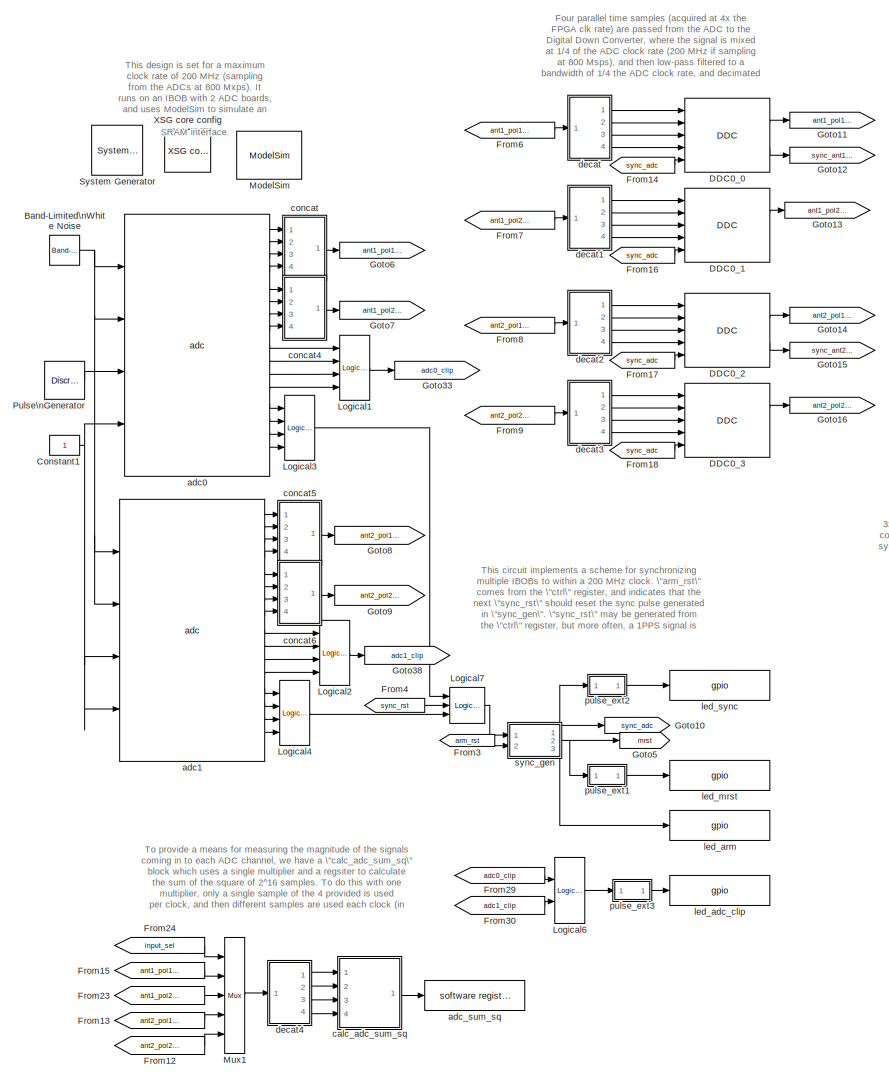
[diagram: root canvas - part 1/3, left side, full height]
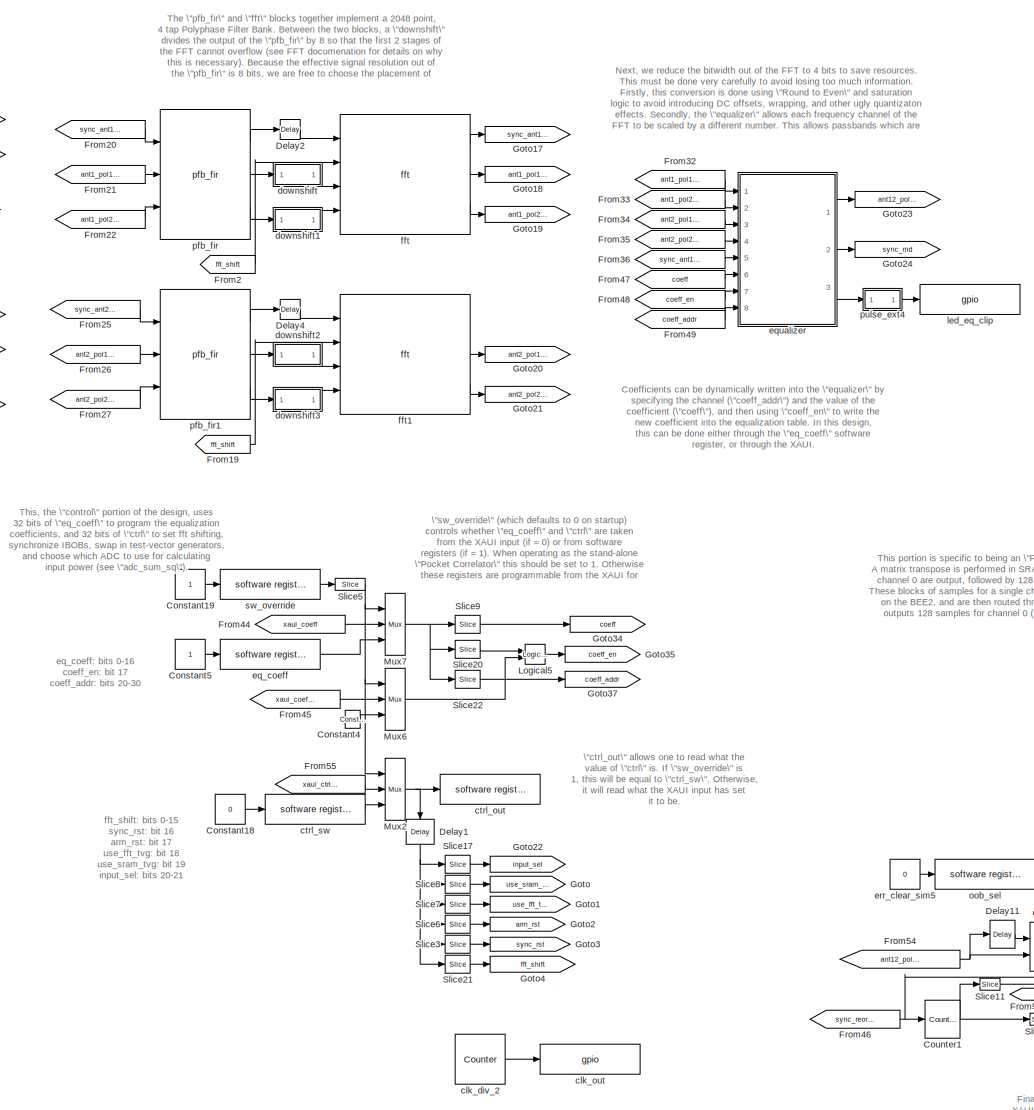
[diagram: root canvas - part 2/3, center side, full height]
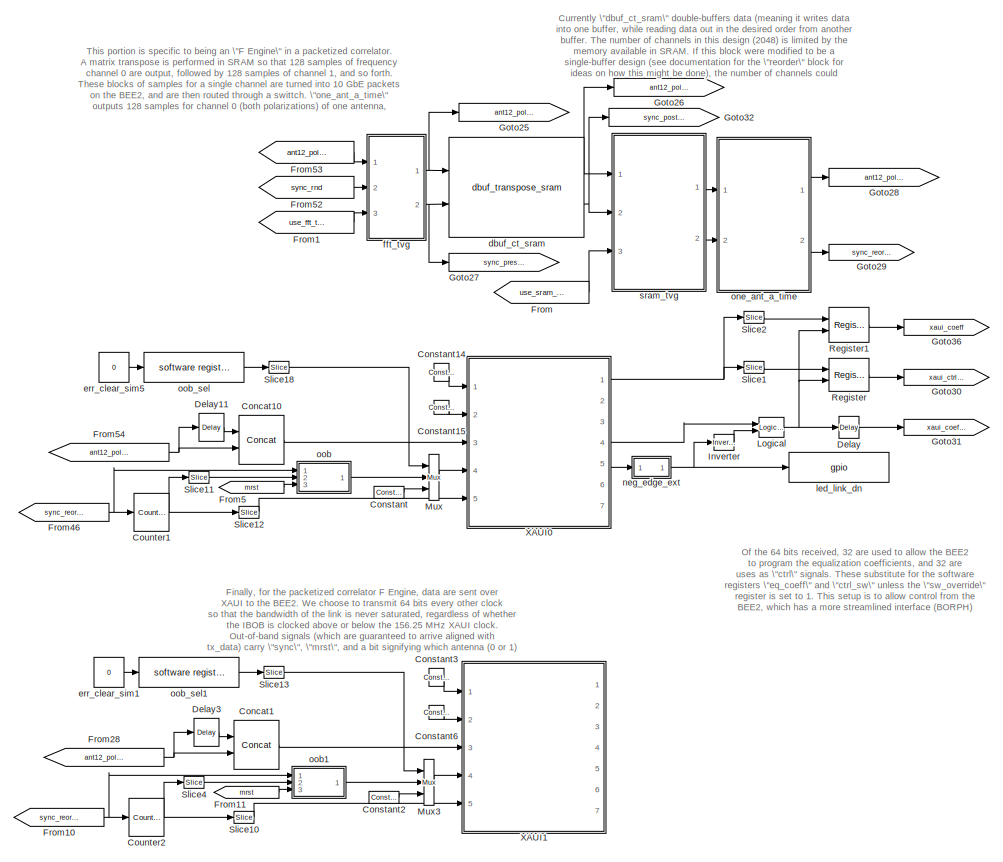
[diagram: root canvas - part 3/3, bottom right region]
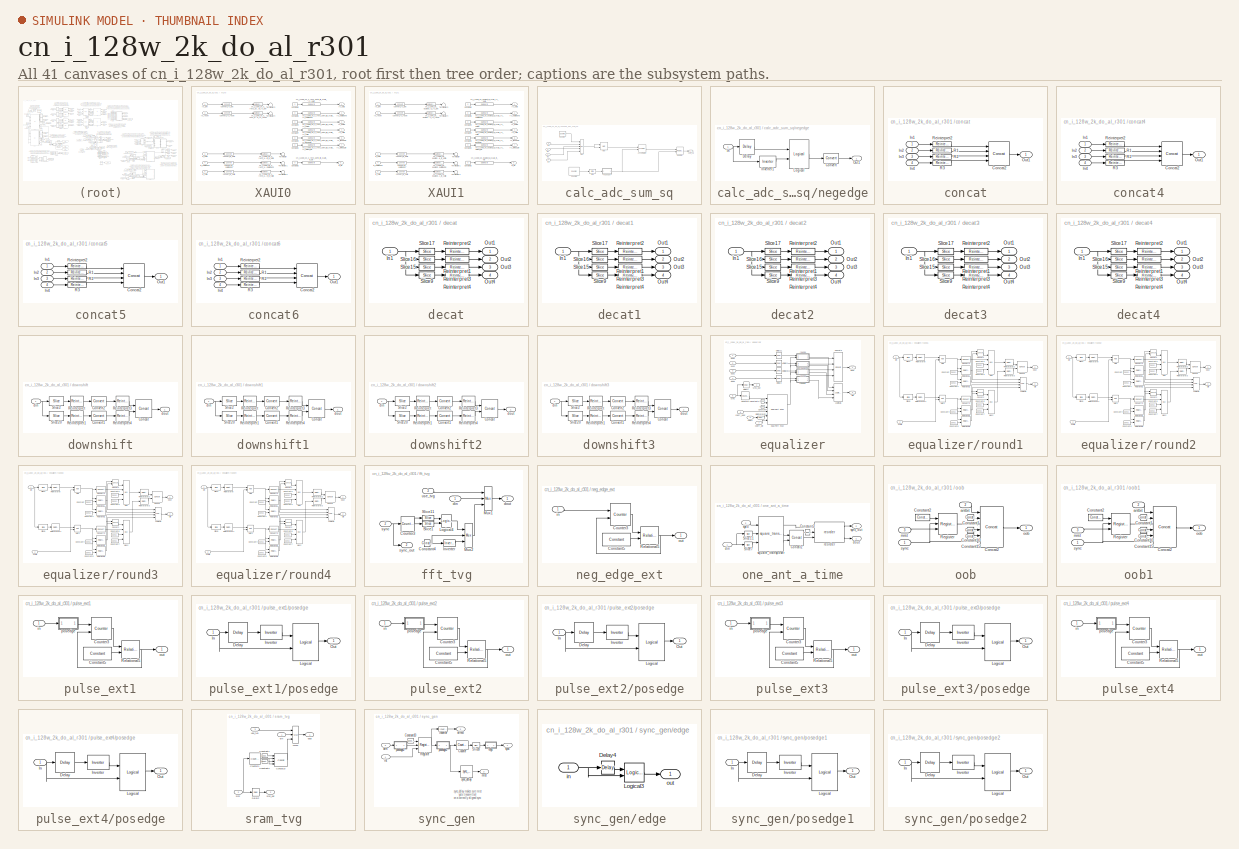
[diagram: thumbnail index - all 41 canvases of the model, root first then tree order]
MODEL cn_i_128w_2k_do_al_r301
KIND model
BLOCK [Reference]  System Generator  REF=xbsIndex_r3/ System Generator
  AttributesFormatString = System\\nGenerator
  Ports = []
  ShowPortLabels = on
  SourceBlock = xbsIndex_r3/ System Generator
  SourceType = Xilinx System Generator
  Tag = genX
  UserData = DataTag0
  UserDataPersistent = on
  core_generation = According to Block Masks
  dbl_ovrd = According to Block Masks
  deprecated_control = off
  directory = ./cn_i_128w_2k_x_rev3_astro_lib/sysgen
  eval_field = 0
  incr_netlist = off
  package = ff1152
  part = xc2vp50
  run_coregen = off
  simulink_period = 1
  speed = -7
  synthesis_tool = XST
  sysclk_period = 5
  testbench = off
  trim_vbits = Everywhere in SubSystem
  xilinxfamily = Virtex2P
BLOCK [Reference] Band-Limited\nWhite Noise  REF=simulink/Sources/Band-Limited\nWhite Noise
  Cov = [0.1]
  Ports = [0, 1]
  ShowPortLabels = on
  SourceBlock = simulink/Sources/Band-Limited\nWhite Noise
  SourceType = Band-Limited White Noise.
  Ts = 0.1
  VectorParams1D = on
  seed = [23341]
BLOCK [Reference] Concat1  REF=xbsIndex_r3/Concat
  Ports = [2, 1]
  SourceBlock = xbsIndex_r3/Concat
  SourceType = Xilinx Bus Concatenator
  dbl_ovrd = off
  explicit_period = off
  num_inputs = 2
  period = 1
BLOCK [Reference] Concat10  REF=xbsIndex_r3/Concat
  Ports = [2, 1]
  SourceBlock = xbsIndex_r3/Concat
  SourceType = Xilinx Bus Concatenator
  dbl_ovrd = off
  explicit_period = off
  num_inputs = 2
  period = 1
BLOCK [Reference] Constant  REF=xbsIndex_r3/Constant
  Ports = [0, 1]
  SourceBlock = xbsIndex_r3/Constant
  SourceType = Xilinx Constant Block
  arith_type = Unsigned
  bin_pt = 0
  carry = CIN
  const = 0
  dbl_ovrd = off
  equ = P=C
  explicit_period = off
  inp1 = P
  inp2 = PCIN>>17
  iostate = 0
  n_bits = 8
  opr = +
  opselect = C
  period = 1
BLOCK [Constant] Constant1
BLOCK [Reference] Constant14  REF=xbsIndex_r3/Constant
  Ports = [0, 1]
  SourceBlock = xbsIndex_r3/Constant
  SourceType = Xilinx Constant Block
  arith_type = Unsigned
  bin_pt = 0
  carry = CIN
  const = 1
  dbl_ovrd = off
  equ = P=C
  explicit_period = on
  inp1 = P
  inp2 = PCIN>>17
  iostate = 0
  n_bits = 1
  opr = +
  opselect = C
  period = 1
BLOCK [Reference] Constant15  REF=xbsIndex_r3/Constant
  Ports = [0, 1]
  SourceBlock = xbsIndex_r3/Constant
  SourceType = Xilinx Constant Block
  arith_type = Unsigned
  bin_pt = 0
  carry = CIN
  const = 0
  dbl_ovrd = off
  equ = P=C
  explicit_period = on
  inp1 = P
  inp2 = PCIN>>17
  iostate = 0
  n_bits = 1
  opr = +
  opselect = C
  period = 1
BLOCK [Constant] Constant18
  Value = 0
BLOCK [Constant] Constant19
BLOCK [Reference] Constant2  REF=xbsIndex_r3/Constant
  Ports = [0, 1]
  SourceBlock = xbsIndex_r3/Constant
  SourceType = Xilinx Constant Block
  arith_type = Unsigned
  bin_pt = 0
  carry = CIN
  const = 0
  dbl_ovrd = off
  equ = P=C
  explicit_period = off
  inp1 = P
  inp2 = PCIN>>17
  iostate = 0
  n_bits = 8
  opr = +
  opselect = C
  period = 1
BLOCK [Reference] Constant3  REF=xbsIndex_r3/Constant
  Ports = [0, 1]
  SourceBlock = xbsIndex_r3/Constant
  SourceType = Xilinx Constant Block
  arith_type = Unsigned
  bin_pt = 0
  carry = CIN
  const = 1
  dbl_ovrd = off
  equ = P=C
  explicit_period = on
  inp1 = P
  inp2 = PCIN>>17
  iostate = 0
  n_bits = 1
  opr = +
  opselect = C
  period = 1
BLOCK [Reference] Constant4  REF=xbsIndex_r3/Constant
  Ports = [0, 1]
  SourceBlock = xbsIndex_r3/Constant
  SourceType = Xilinx Constant Block
  arith_type = Boolean
  bin_pt = 0
  carry = CIN
  const = 1
  dbl_ovrd = off
  equ = P=C
  explicit_period = on
  inp1 = P
  inp2 = PCIN>>17
  iostate = 0
  n_bits = 1
  opr = +
  opselect = C
  period = 1
BLOCK [Constant] Constant5
BLOCK [Reference] Constant6  REF=xbsIndex_r3/Constant
  Ports = [0, 1]
  SourceBlock = xbsIndex_r3/Constant
  SourceType = Xilinx Constant Block
  arith_type = Unsigned
  bin_pt = 0
  carry = CIN
  const = 0
  dbl_ovrd = off
  equ = P=C
  explicit_period = on
  inp1 = P
  inp2 = PCIN>>17
  iostate = 0
  n_bits = 1
  opr = +
  opselect = C
  period = 1
BLOCK [Reference] Counter1  REF=xbsIndex_r3/Counter
  Ports = [1, 1]
  SourceBlock = xbsIndex_r3/Counter
  SourceType = Xilinx Counter Block
  arith_type = Unsigned
  bin_pt = 0
  cnt_by_val = 1
  cnt_to = Inf
  cnt_type = Free Running
  dbl_ovrd = off
  en = off
  explicit_period = off
  gen_core = off
  load_pin = off
  n_bits = 7
  operation = Up
  period = 1
  rst = on
  show_param = off
  start_count = 0
  use_rpm = on
  xl_area = [0, 0, 0, 0, 0, 0, 0]
  xl_use_area = off
BLOCK [Reference] Counter2  REF=xbsIndex_r3/Counter
  Ports = [1, 1]
  SourceBlock = xbsIndex_r3/Counter
  SourceType = Xilinx Counter Block
  arith_type = Unsigned
  bin_pt = 0
  cnt_by_val = 1
  cnt_to = Inf
  cnt_type = Free Running
  dbl_ovrd = off
  en = off
  explicit_period = off
  gen_core = off
  load_pin = off
  n_bits = 7
  operation = Up
  period = 1
  rst = on
  show_param = off
  start_count = 0
  use_rpm = on
  xl_area = [0, 0, 0, 0, 0, 0, 0]
  xl_use_area = off
BLOCK [Reference] DDC0_0  REF=ddc_library/DDC  (lib defined in mdl_423f3fd48bb0)
  BitWidthOut = 8
  Ports = [5, 2]
  ShowPortLabels = on
  SourceBlock = ddc_library/DDC
  SourceType = DDC
  UserData = DataTag1
  UserDataPersistent = on
  add_latency = 1
  freq_div = 4
  lo_bitwidth = 8
  lo_freq = 1
  lpfir_coeff = .9 * [-0.0161   -0.0428   -0.0504   -0.0249    0.0354    0.1170    0.1948    0.2422    0.2422    0.1948    0.1170  0.0354   -0.0249   -0.0504   -0.0428   -0.0161]
  mult_latency = 2
  num_inputs = 4
  quantization = Round  (unbiased: Even Values)
BLOCK [Reference] DDC0_1  REF=ddc_library/DDC  (lib defined in mdl_423f3fd48bb0)
  BitWidthOut = 8
  Ports = [5, 2]
  ShowPortLabels = on
  SourceBlock = ddc_library/DDC
  SourceType = DDC
  UserData = DataTag2
  UserDataPersistent = on
  add_latency = 1
  freq_div = 4
  lo_bitwidth = 8
  lo_freq = 1
  lpfir_coeff = .9 * [-0.0161   -0.0428   -0.0504   -0.0249    0.0354    0.1170    0.1948    0.2422    0.2422    0.1948    0.1170  0.0354   -0.0249   -0.0504   -0.0428   -0.0161]
  mult_latency = 2
  num_inputs = 4
  quantization = Round  (unbiased: Even Values)
BLOCK [Reference] DDC0_2  REF=ddc_library/DDC  (lib defined in mdl_423f3fd48bb0)
  BitWidthOut = 8
  Ports = [5, 2]
  ShowPortLabels = on
  SourceBlock = ddc_library/DDC
  SourceType = DDC
  UserData = DataTag3
  UserDataPersistent = on
  add_latency = 1
  freq_div = 4
  lo_bitwidth = 8
  lo_freq = 1
  lpfir_coeff = .9 * [-0.0161   -0.0428   -0.0504   -0.0249    0.0354    0.1170    0.1948    0.2422    0.2422    0.1948    0.1170  0.0354   -0.0249   -0.0504   -0.0428   -0.0161]
  mult_latency = 2
  num_inputs = 4
  quantization = Round  (unbiased: Even Values)
BLOCK [Reference] DDC0_3  REF=ddc_library/DDC  (lib defined in mdl_423f3fd48bb0)
  BitWidthOut = 8
  Ports = [5, 2]
  ShowPortLabels = on
  SourceBlock = ddc_library/DDC
  SourceType = DDC
  UserData = DataTag4
  UserDataPersistent = on
  add_latency = 1
  freq_div = 4
  lo_bitwidth = 8
  lo_freq = 1
  lpfir_coeff = .9 * [-0.0161   -0.0428   -0.0504   -0.0249    0.0354    0.1170    0.1948    0.2422    0.2422    0.1948    0.1170  0.0354   -0.0249   -0.0504   -0.0428   -0.0161]
  mult_latency = 2
  num_inputs = 4
  quantization = Round  (unbiased: Even Values)
BLOCK [Reference] Delay  REF=xbsIndex_r3/Delay
  Ports = [1, 1]
  SourceBlock = xbsIndex_r3/Delay
  SourceType = Xilinx Delay Block
  accept_only_valid = off
  dbl_ovrd = off
  en = off
  explicit_period = off
  init_zero = on
  latency = 1
  period = 1
  reg_retiming = off
  show_param = off
  xl_area = [0, 0, 0, 0, 0, 0, 0]
  xl_use_area = off
BLOCK [Reference] Delay1  REF=xbsIndex_r3/Delay
  Ports = [1, 1]
  SourceBlock = xbsIndex_r3/Delay
  SourceType = Xilinx Delay Block
  accept_only_valid = off
  dbl_ovrd = off
  en = off
  explicit_period = off
  init_zero = on
  latency = 1
  period = 1
  reg_retiming = off
  show_param = off
  xl_area = [0, 0, 0, 0, 0, 0, 0]
  xl_use_area = off
BLOCK [Reference] Delay11  REF=xbsIndex_r3/Delay
  Ports = [1, 1]
  SourceBlock = xbsIndex_r3/Delay
  SourceType = Xilinx Delay Block
  accept_only_valid = off
  dbl_ovrd = off
  en = off
  explicit_period = off
  init_zero = on
  latency = 1
  period = 1
  reg_retiming = off
  show_param = off
  xl_area = [0, 0, 0, 0, 0, 0, 0]
  xl_use_area = off
BLOCK [Reference] Delay2  REF=xbsIndex_r3/Delay
  Ports = [1, 1]
  SourceBlock = xbsIndex_r3/Delay
  SourceType = Xilinx Delay Block
  accept_only_valid = off
  dbl_ovrd = off
  en = off
  explicit_period = off
  init_zero = on
  latency = 2
  period = 1
  reg_retiming = off
  show_param = off
  xl_area = [0, 0, 0, 0, 0, 0, 0]
  xl_use_area = off
BLOCK [Reference] Delay3  REF=xbsIndex_r3/Delay
  Ports = [1, 1]
  SourceBlock = xbsIndex_r3/Delay
  SourceType = Xilinx Delay Block
  accept_only_valid = off
  dbl_ovrd = off
  en = off
  explicit_period = off
  init_zero = on
  latency = 1
  period = 1
  reg_retiming = off
  show_param = off
  xl_area = [0, 0, 0, 0, 0, 0, 0]
  xl_use_area = off
BLOCK [Reference] Delay4  REF=xbsIndex_r3/Delay
  Ports = [1, 1]
  SourceBlock = xbsIndex_r3/Delay
  SourceType = Xilinx Delay Block
  accept_only_valid = off
  dbl_ovrd = off
  en = off
  explicit_period = off
  init_zero = on
  latency = 2
  period = 1
  reg_retiming = off
  show_param = off
  xl_area = [0, 0, 0, 0, 0, 0, 0]
  xl_use_area = off
BLOCK [From] From
  CloseFcn = tagdialog Close
  GotoTag = use_sram_tvg
BLOCK [From] From1
  CloseFcn = tagdialog Close
  GotoTag = use_fft_tvg
BLOCK [From] From10
  CloseFcn = tagdialog Close
  GotoTag = sync_reorder
BLOCK [From] From11
  CloseFcn = tagdialog Close
  GotoTag = mrst
BLOCK [From] From12
  CloseFcn = tagdialog Close
  GotoTag = ant2_pol2_adc
BLOCK [From] From13
  CloseFcn = tagdialog Close
  GotoTag = ant2_pol1_adc
BLOCK [From] From14
  CloseFcn = tagdialog Close
  GotoTag = sync_adc
BLOCK [From] From15
  CloseFcn = tagdialog Close
  GotoTag = ant1_pol1_adc
BLOCK [From] From16
  CloseFcn = tagdialog Close
  GotoTag = sync_adc
BLOCK [From] From17
  CloseFcn = tagdialog Close
  GotoTag = sync_adc
BLOCK [From] From18
  CloseFcn = tagdialog Close
  GotoTag = sync_adc
BLOCK [From] From19
  CloseFcn = tagdialog Close
  GotoTag = fft_shift
BLOCK [From] From2
  CloseFcn = tagdialog Close
  GotoTag = fft_shift
BLOCK [From] From20
  CloseFcn = tagdialog Close
  GotoTag = sync_ant1_ddc
BLOCK [From] From21
  CloseFcn = tagdialog Close
  GotoTag = ant1_pol1_ddc
BLOCK [From] From22
  CloseFcn = tagdialog Close
  GotoTag = ant1_pol2_ddc
BLOCK [From] From23
  CloseFcn = tagdialog Close
  GotoTag = ant1_pol2_adc
BLOCK [From] From24
  CloseFcn = tagdialog Close
  GotoTag = input_sel
BLOCK [From] From25
  CloseFcn = tagdialog Close
  GotoTag = sync_ant2_ddc
BLOCK [From] From26
  CloseFcn = tagdialog Close
  GotoTag = ant2_pol1_ddc
BLOCK [From] From27
  CloseFcn = tagdialog Close
  GotoTag = ant2_pol2_ddc
BLOCK [From] From28
  CloseFcn = tagdialog Close
  GotoTag = ant12_pol12_reorder
BLOCK [From] From29
  CloseFcn = tagdialog Close
  GotoTag = adc0_clip
BLOCK [From] From3
  CloseFcn = tagdialog Close
  GotoTag = arm_rst
BLOCK [From] From30
  CloseFcn = tagdialog Close
  GotoTag = adc1_clip
BLOCK [From] From32
  CloseFcn = tagdialog Close
  GotoTag = ant1_pol1_fft
BLOCK [From] From33
  CloseFcn = tagdialog Close
  GotoTag = ant1_pol2_fft
BLOCK [From] From34
  CloseFcn = tagdialog Close
  GotoTag = ant2_pol1_fft
BLOCK [From] From35
  CloseFcn = tagdialog Close
  GotoTag = ant2_pol2_fft
BLOCK [From] From36
  CloseFcn = tagdialog Close
  GotoTag = sync_ant1_fft
BLOCK [From] From4
  CloseFcn = tagdialog Close
  GotoTag = sync_rst
BLOCK [From] From44
  CloseFcn = tagdialog Close
  GotoTag = xaui_coeff
BLOCK [From] From45
  CloseFcn = tagdialog Close
  GotoTag = xaui_coeff_en
BLOCK [From] From46
  CloseFcn = tagdialog Close
  GotoTag = sync_reorder
BLOCK [From] From47
  CloseFcn = tagdialog Close
  GotoTag = coeff
BLOCK [From] From48
  CloseFcn = tagdialog Close
  GotoTag = coeff_en
BLOCK [From] From49
  CloseFcn = tagdialog Close
  GotoTag = coeff_addr
BLOCK [From] From5
  CloseFcn = tagdialog Close
  GotoTag = mrst
BLOCK [From] From52
  CloseFcn = tagdialog Close
  GotoTag = sync_rnd
BLOCK [From] From53
  CloseFcn = tagdialog Close
  GotoTag = ant12_pol12_rnd
BLOCK [From] From54
  CloseFcn = tagdialog Close
  GotoTag = ant12_pol12_reorder
BLOCK [From] From55
  CloseFcn = tagdialog Close
  GotoTag = xaui_ctrl_data
BLOCK [From] From6
  CloseFcn = tagdialog Close
  GotoTag = ant1_pol1_adc
BLOCK [From] From7
  CloseFcn = tagdialog Close
  GotoTag = ant1_pol2_adc
BLOCK [From] From8
  CloseFcn = tagdialog Close
  GotoTag = ant2_pol1_adc
BLOCK [From] From9
  CloseFcn = tagdialog Close
  GotoTag = ant2_pol2_adc
BLOCK [Goto] Goto
  GotoTag = use_sram_tvg
  TagVisibility = local
BLOCK [Goto] Goto1
  GotoTag = use_fft_tvg
  TagVisibility = local
BLOCK [Goto] Goto10
  GotoTag = sync_adc
  TagVisibility = local
BLOCK [Goto] Goto11
  GotoTag = ant1_pol1_ddc
  TagVisibility = local
BLOCK [Goto] Goto12
  GotoTag = sync_ant1_ddc
  TagVisibility = local
BLOCK [Goto] Goto13
  GotoTag = ant1_pol2_ddc
  TagVisibility = local
BLOCK [Goto] Goto14
  GotoTag = ant2_pol1_ddc
  TagVisibility = local
BLOCK [Goto] Goto15
  GotoTag = sync_ant2_ddc
  TagVisibility = local
BLOCK [Goto] Goto16
  GotoTag = ant2_pol2_ddc
  TagVisibility = local
BLOCK [Goto] Goto17
  GotoTag = sync_ant1_fft
  TagVisibility = local
BLOCK [Goto] Goto18
  GotoTag = ant1_pol1_fft
  TagVisibility = local
BLOCK [Goto] Goto19
  GotoTag = ant1_pol2_fft
  TagVisibility = local
BLOCK [Goto] Goto2
  GotoTag = arm_rst
  TagVisibility = local
BLOCK [Goto] Goto20
  GotoTag = ant2_pol1_fft
  TagVisibility = local
BLOCK [Goto] Goto21
  GotoTag = ant2_pol2_fft
  TagVisibility = local
BLOCK [Goto] Goto22
  GotoTag = input_sel
  TagVisibility = local
BLOCK [Goto] Goto23
  GotoTag = ant12_pol12_rnd
  TagVisibility = local
BLOCK [Goto] Goto24
  GotoTag = sync_rnd
  TagVisibility = local
BLOCK [Goto] Goto25
  GotoTag = ant12_pol12_presram
  TagVisibility = local
BLOCK [Goto] Goto26
  GotoTag = ant12_pol12_postsram
  TagVisibility = local
BLOCK [Goto] Goto27
  GotoTag = sync_presram
  TagVisibility = local
BLOCK [Goto] Goto28
  GotoTag = ant12_pol12_reorder
  TagVisibility = local
BLOCK [Goto] Goto29
  GotoTag = sync_reorder
  TagVisibility = local
BLOCK [Goto] Goto3
  GotoTag = sync_rst
  TagVisibility = local
BLOCK [Goto] Goto30
  GotoTag = xaui_ctrl_data
  TagVisibility = local
BLOCK [Goto] Goto31
  GotoTag = xaui_coeff_en
  TagVisibility = local
BLOCK [Goto] Goto32
  GotoTag = sync_postsram
  TagVisibility = local
BLOCK [Goto] Goto33
  GotoTag = adc0_clip
  TagVisibility = local
BLOCK [Goto] Goto34
  GotoTag = coeff
  TagVisibility = local
BLOCK [Goto] Goto35
  GotoTag = coeff_en
  TagVisibility = local
BLOCK [Goto] Goto36
  GotoTag = xaui_coeff
  TagVisibility = local
BLOCK [Goto] Goto37
  GotoTag = coeff_addr
  TagVisibility = local
BLOCK [Goto] Goto38
  GotoTag = adc1_clip
  TagVisibility = local
BLOCK [Goto] Goto4
  GotoTag = fft_shift
  TagVisibility = local
BLOCK [Goto] Goto5
  GotoTag = mrst
  TagVisibility = local
BLOCK [Goto] Goto6
  GotoTag = ant1_pol1_adc
  TagVisibility = local
BLOCK [Goto] Goto7
  GotoTag = ant1_pol2_adc
  TagVisibility = local
BLOCK [Goto] Goto8
  GotoTag = ant2_pol1_adc
  TagVisibility = local
BLOCK [Goto] Goto9
  GotoTag = ant2_pol2_adc
  TagVisibility = local
BLOCK [Reference] Inverter  REF=xbsIndex_r3/Inverter
  Ports = [1, 1]
  SourceBlock = xbsIndex_r3/Inverter
  SourceType = Xilinx Inverter
  dbl_ovrd = off
  en = off
  explicit_period = off
  latency = 0
  period = 1
  show_param = off
  xl_area = [0, 0, 0, 0, 0, 0, 0]
  xl_use_area = off
BLOCK [Reference] Logical  REF=xbsIndex_r3/Logical
  Ports = [2, 1]
  SourceBlock = xbsIndex_r3/Logical
  SourceType = Xilinx Logical Block
  align_bp = on
  arith_type = Unsigned
  bin_pt = 2
  dbl_ovrd = off
  en = off
  explicit_period = off
  inputs = 2
  latency = 0
  logical_function = AND
  n_bits = 8
  period = 1
  precision = Full
  show_param = off
  xl_area = [0, 0, 0, 0, 0, 0, 0]
  xl_use_area = off
BLOCK [Reference] Logical1  REF=xbsIndex_r3/Logical
  Ports = [4, 1]
  SourceBlock = xbsIndex_r3/Logical
  SourceType = Xilinx Logical Block
  align_bp = on
  arith_type = Unsigned
  bin_pt = 2
  dbl_ovrd = off
  en = off
  explicit_period = off
  inputs = 4
  latency = 1
  logical_function = OR
  n_bits = 8
  period = 1
  precision = Full
  show_param = off
  xl_area = [0, 0, 0, 0, 0, 0, 0]
  xl_use_area = off
BLOCK [Reference] Logical2  REF=xbsIndex_r3/Logical
  Ports = [4, 1]
  SourceBlock = xbsIndex_r3/Logical
  SourceType = Xilinx Logical Block
  align_bp = on
  arith_type = Unsigned
  bin_pt = 2
  dbl_ovrd = off
  en = off
  explicit_period = off
  inputs = 4
  latency = 1
  logical_function = OR
  n_bits = 8
  period = 1
  precision = Full
  show_param = off
  xl_area = [0, 0, 0, 0, 0, 0, 0]
  xl_use_area = off
BLOCK [Reference] Logical3  REF=xbsIndex_r3/Logical
  Ports = [4, 1]
  SourceBlock = xbsIndex_r3/Logical
  SourceType = Xilinx Logical Block
  align_bp = on
  arith_type = Unsigned
  bin_pt = 2
  dbl_ovrd = off
  en = off
  explicit_period = off
  inputs = 4
  latency = 1
  logical_function = OR
  n_bits = 8
  period = 1
  precision = Full
  show_param = off
  xl_area = [0, 0, 0, 0, 0, 0, 0]
  xl_use_area = off
BLOCK [Reference] Logical4  REF=xbsIndex_r3/Logical
  Ports = [4, 1]
  SourceBlock = xbsIndex_r3/Logical
  SourceType = Xilinx Logical Block
  align_bp = on
  arith_type = Unsigned
  bin_pt = 2
  dbl_ovrd = off
  en = off
  explicit_period = off
  inputs = 4
  latency = 1
  logical_function = OR
  n_bits = 8
  period = 1
  precision = Full
  show_param = off
  xl_area = [0, 0, 0, 0, 0, 0, 0]
  xl_use_area = off
BLOCK [Reference] Logical5  REF=xbsIndex_r3/Logical
  Ports = [2, 1]
  SourceBlock = xbsIndex_r3/Logical
  SourceType = Xilinx Logical Block
  align_bp = on
  arith_type = Unsigned
  bin_pt = 2
  dbl_ovrd = off
  en = off
  explicit_period = off
  inputs = 2
  latency = 0
  logical_function = AND
  n_bits = 8
  period = 1
  precision = Full
  show_param = off
  xl_area = [0, 0, 0, 0, 0, 0, 0]
  xl_use_area = off
BLOCK [Reference] Logical6  REF=xbsIndex_r3/Logical
  Ports = [2, 1]
  SourceBlock = xbsIndex_r3/Logical
  SourceType = Xilinx Logical Block
  align_bp = on
  arith_type = Unsigned
  bin_pt = 2
  dbl_ovrd = off
  en = off
  explicit_period = off
  inputs = 2
  latency = 1
  logical_function = OR
  n_bits = 8
  period = 1
  precision = Full
  show_param = off
  xl_area = [0, 0, 0, 0, 0, 0, 0]
  xl_use_area = off
BLOCK [Reference] Logical7  REF=xbsIndex_r3/Logical
  Ports = [3, 1]
  SourceBlock = xbsIndex_r3/Logical
  SourceType = Xilinx Logical Block
  align_bp = on
  arith_type = Unsigned
  bin_pt = 2
  dbl_ovrd = off
  en = off
  explicit_period = off
  inputs = 3
  latency = 1
  logical_function = OR
  n_bits = 8
  period = 1
  precision = Full
  show_param = off
  xl_area = [0, 0, 0, 0, 0, 0, 0]
  xl_use_area = off
BLOCK [Reference] ModelSim  REF=xbsIndex_r3/ModelSim
  Ports = []
  SourceBlock = xbsIndex_r3/ModelSim
  SourceType = ModelSim HDL Co-Simulation Interface
  custom_scripts = off
  dir = ./modelsim
  leave_open = on
  skip_compile = off
  startup_timeout = 40
  waveform = on
BLOCK [Reference] Mux  REF=xbsIndex_r3/Mux
  Ports = [3, 1]
  SourceBlock = xbsIndex_r3/Mux
  SourceType = Xilinx Multiplexer Block
  arith_type = Signed  (2's comp)
  bin_pt = 2
  dbl_ovrd = off
  en = off
  explicit_period = off
  gen_core = off
  inputs = 2
  latency = 0
  mux_type = off
  n_bits = 8
  overflow = Wrap
  period = 1
  precision = Full
  quantization = Truncate
  show_param = off
  use_rpm = off
  xl_area = [0, 0, 0, 0, 0, 0, 0]
  xl_use_area = off
BLOCK [Reference] Mux1  REF=xbsIndex_r3/Mux
  Ports = [5, 1]
  SourceBlock = xbsIndex_r3/Mux
  SourceType = Xilinx Multiplexer Block
  arith_type = Signed  (2's comp)
  bin_pt = 2
  dbl_ovrd = off
  en = off
  explicit_period = on
  gen_core = off
  inputs = 4
  latency = 2
  mux_type = off
  n_bits = 8
  overflow = Wrap
  period = 1
  precision = Full
  quantization = Truncate
  show_param = off
  use_rpm = off
  xl_area = [0, 0, 0, 0, 0, 0, 0]
  xl_use_area = off
BLOCK [Reference] Mux2  REF=xbsIndex_r3/Mux
  Ports = [3, 1]
  SourceBlock = xbsIndex_r3/Mux
  SourceType = Xilinx Multiplexer Block
  arith_type = Signed  (2's comp)
  bin_pt = 2
  dbl_ovrd = off
  en = off
  explicit_period = on
  gen_core = off
  inputs = 2
  latency = 1
  mux_type = off
  n_bits = 8
  overflow = Wrap
  period = 1
  precision = Full
  quantization = Truncate
  show_param = off
  use_rpm = off
  xl_area = [0, 0, 0, 0, 0, 0, 0]
  xl_use_area = off
BLOCK [Reference] Mux3  REF=xbsIndex_r3/Mux
  Ports = [3, 1]
  SourceBlock = xbsIndex_r3/Mux
  SourceType = Xilinx Multiplexer Block
  arith_type = Signed  (2's comp)
  bin_pt = 2
  dbl_ovrd = off
  en = off
  explicit_period = off
  gen_core = off
  inputs = 2
  latency = 0
  mux_type = off
  n_bits = 8
  overflow = Wrap
  period = 1
  precision = Full
  quantization = Truncate
  show_param = off
  use_rpm = off
  xl_area = [0, 0, 0, 0, 0, 0, 0]
  xl_use_area = off
BLOCK [Reference] Mux6  REF=xbsIndex_r3/Mux
  Ports = [3, 1]
  SourceBlock = xbsIndex_r3/Mux
  SourceType = Xilinx Multiplexer Block
  arith_type = Signed  (2's comp)
  bin_pt = 2
  dbl_ovrd = off
  en = off
  explicit_period = on
  gen_core = off
  inputs = 2
  latency = 1
  mux_type = off
  n_bits = 8
  overflow = Wrap
  period = 1
  precision = Full
  quantization = Truncate
  show_param = off
  use_rpm = off
  xl_area = [0, 0, 0, 0, 0, 0, 0]
  xl_use_area = off
BLOCK [Reference] Mux7  REF=xbsIndex_r3/Mux
  Ports = [3, 1]
  SourceBlock = xbsIndex_r3/Mux
  SourceType = Xilinx Multiplexer Block
  arith_type = Signed  (2's comp)
  bin_pt = 2
  dbl_ovrd = off
  en = off
  explicit_period = on
  gen_core = off
  inputs = 2
  latency = 1
  mux_type = off
  n_bits = 8
  overflow = Wrap
  period = 1
  precision = Full
  quantization = Truncate
  show_param = off
  use_rpm = off
  xl_area = [0, 0, 0, 0, 0, 0, 0]
  xl_use_area = off
BLOCK [DiscretePulseGenerator] Pulse\nGenerator
  Period = 2^27
  Ports = [0, 1]
BLOCK [Reference] Register  REF=xbsIndex_r3/Register
  Ports = [2, 1]
  SourceBlock = xbsIndex_r3/Register
  SourceType = Xilinx Register Block
  dbl_ovrd = off
  en = on
  explicit_period = off
  init = 0
  out_en = off
  period = 1
  reg_only_valid = off
  rst = off
  show_param = off
  xl_area = [0, 0, 0, 0, 0, 0, 0]
  xl_use_area = off
BLOCK [Reference] Register1  REF=xbsIndex_r3/Register
  Ports = [2, 1]
  SourceBlock = xbsIndex_r3/Register
  SourceType = Xilinx Register Block
  dbl_ovrd = off
  en = on
  explicit_period = off
  init = 0
  out_en = off
  period = 1
  reg_only_valid = off
  rst = off
  show_param = off
  xl_area = [0, 0, 0, 0, 0, 0, 0]
  xl_use_area = off
BLOCK [Reference] Slice1  REF=xbsIndex_r3/Slice
  Ports = [1, 1]
  SourceBlock = xbsIndex_r3/Slice
  SourceType = Xilinx Slice Block
  base0 = LSB of Input
  base1 = MSB of Input
  bit0 = 0
  bit1 = 0
  boolean_output = on
  dbl_ovrd = off
  explicit_period = off
  mode = Lower Bit Location + Width
  nbits = 32
  period = 1
BLOCK [Reference] Slice10  REF=xbsIndex_r3/Slice
  Ports = [1, 1]
  SourceBlock = xbsIndex_r3/Slice
  SourceType = Xilinx Slice Block
  base0 = LSB of Input
  base1 = MSB of Input
  bit0 = 0
  bit1 = 0
  boolean_output = on
  dbl_ovrd = off
  explicit_period = off
  mode = Lower Bit Location + Width
  nbits = 1
  period = 1
BLOCK [Reference] Slice11  REF=xbsIndex_r3/Slice
  Ports = [1, 1]
  SourceBlock = xbsIndex_r3/Slice
  SourceType = Xilinx Slice Block
  base0 = LSB of Input
  base1 = MSB of Input
  bit0 = 0
  bit1 = 0
  boolean_output = on
  dbl_ovrd = off
  explicit_period = off
  mode = Upper Bit Location + Width
  nbits = 1
  period = 1
BLOCK [Reference] Slice12  REF=xbsIndex_r3/Slice
  Ports = [1, 1]
  SourceBlock = xbsIndex_r3/Slice
  SourceType = Xilinx Slice Block
  base0 = LSB of Input
  base1 = MSB of Input
  bit0 = 0
  bit1 = 0
  boolean_output = on
  dbl_ovrd = off
  explicit_period = off
  mode = Lower Bit Location + Width
  nbits = 1
  period = 1
BLOCK [Reference] Slice13  REF=xbsIndex_r3/Slice
  Ports = [1, 1]
  SourceBlock = xbsIndex_r3/Slice
  SourceType = Xilinx Slice Block
  base0 = LSB of Input
  base1 = MSB of Input
  bit0 = 0
  bit1 = 0
  boolean_output = off
  dbl_ovrd = off
  explicit_period = off
  mode = Lower Bit Location + Width
  nbits = 1
  period = 1
BLOCK [Reference] Slice17  REF=xbsIndex_r3/Slice
  Ports = [1, 1]
  SourceBlock = xbsIndex_r3/Slice
  SourceType = Xilinx Slice Block
  base0 = LSB of Input
  base1 = MSB of Input
  bit0 = 20
  bit1 = 0
  boolean_output = off
  dbl_ovrd = off
  explicit_period = off
  mode = Lower Bit Location + Width
  nbits = 2
  period = 1
BLOCK [Reference] Slice18  REF=xbsIndex_r3/Slice
  Ports = [1, 1]
  SourceBlock = xbsIndex_r3/Slice
  SourceType = Xilinx Slice Block
  base0 = LSB of Input
  base1 = MSB of Input
  bit0 = 0
  bit1 = 0
  boolean_output = off
  dbl_ovrd = off
  explicit_period = off
  mode = Lower Bit Location + Width
  nbits = 1
  period = 1
BLOCK [Reference] Slice2  REF=xbsIndex_r3/Slice
  Ports = [1, 1]
  SourceBlock = xbsIndex_r3/Slice
  SourceType = Xilinx Slice Block
  base0 = LSB of Input
  base1 = MSB of Input
  bit0 = 32
  bit1 = 0
  boolean_output = off
  dbl_ovrd = off
  explicit_period = off
  mode = Lower Bit Location + Width
  nbits = 32
  period = 1
BLOCK [Reference] Slice20  REF=xbsIndex_r3/Slice
  Ports = [1, 1]
  SourceBlock = xbsIndex_r3/Slice
  SourceType = Xilinx Slice Block
  base0 = LSB of Input
  base1 = MSB of Input
  bit0 = 17
  bit1 = 0
  boolean_output = on
  dbl_ovrd = off
  explicit_period = off
  mode = Lower Bit Location + Width
  nbits = 1
  period = 1
BLOCK [Reference] Slice21  REF=xbsIndex_r3/Slice
  Ports = [1, 1]
  SourceBlock = xbsIndex_r3/Slice
  SourceType = Xilinx Slice Block
  base0 = LSB of Input
  base1 = MSB of Input
  bit0 = 0
  bit1 = 0
  boolean_output = off
  dbl_ovrd = off
  explicit_period = off
  mode = Lower Bit Location + Width
  nbits = 16
  period = 1
BLOCK [Reference] Slice22  REF=xbsIndex_r3/Slice
  Ports = [1, 1]
  SourceBlock = xbsIndex_r3/Slice
  SourceType = Xilinx Slice Block
  base0 = LSB of Input
  base1 = MSB of Input
  bit0 = 20
  bit1 = 0
  boolean_output = off
  dbl_ovrd = off
  explicit_period = off
  mode = Lower Bit Location + Width
  nbits = 11
  period = 1
BLOCK [Reference] Slice3  REF=xbsIndex_r3/Slice
  Ports = [1, 1]
  SourceBlock = xbsIndex_r3/Slice
  SourceType = Xilinx Slice Block
  base0 = LSB of Input
  base1 = MSB of Input
  bit0 = 16
  bit1 = 0
  boolean_output = on
  dbl_ovrd = off
  explicit_period = off
  mode = Lower Bit Location + Width
  nbits = 1
  period = 1
BLOCK [Reference] Slice4  REF=xbsIndex_r3/Slice
  Ports = [1, 1]
  SourceBlock = xbsIndex_r3/Slice
  SourceType = Xilinx Slice Block
  base0 = LSB of Input
  base1 = MSB of Input
  bit0 = 0
  bit1 = 0
  boolean_output = on
  dbl_ovrd = off
  explicit_period = off
  mode = Upper Bit Location + Width
  nbits = 1
  period = 1
BLOCK [Reference] Slice5  REF=xbsIndex_r3/Slice
  Ports = [1, 1]
  SourceBlock = xbsIndex_r3/Slice
  SourceType = Xilinx Slice Block
  base0 = LSB of Input
  base1 = MSB of Input
  bit0 = 0
  bit1 = 0
  boolean_output = off
  dbl_ovrd = off
  explicit_period = off
  mode = Lower Bit Location + Width
  nbits = 1
  period = 1
BLOCK [Reference] Slice6  REF=xbsIndex_r3/Slice
  Ports = [1, 1]
  SourceBlock = xbsIndex_r3/Slice
  SourceType = Xilinx Slice Block
  base0 = LSB of Input
  base1 = MSB of Input
  bit0 = 17
  bit1 = 0
  boolean_output = on
  dbl_ovrd = off
  explicit_period = off
  mode = Lower Bit Location + Width
  nbits = 1
  period = 1
BLOCK [Reference] Slice7  REF=xbsIndex_r3/Slice
  Ports = [1, 1]
  SourceBlock = xbsIndex_r3/Slice
  SourceType = Xilinx Slice Block
  base0 = LSB of Input
  base1 = MSB of Input
  bit0 = 18
  bit1 = 0
  boolean_output = off
  dbl_ovrd = off
  explicit_period = off
  mode = Lower Bit Location + Width
  nbits = 1
  period = 1
BLOCK [Reference] Slice8  REF=xbsIndex_r3/Slice
  Ports = [1, 1]
  SourceBlock = xbsIndex_r3/Slice
  SourceType = Xilinx Slice Block
  base0 = LSB of Input
  base1 = MSB of Input
  bit0 = 19
  bit1 = 0
  boolean_output = off
  dbl_ovrd = off
  explicit_period = off
  mode = Lower Bit Location + Width
  nbits = 1
  period = 1
BLOCK [Reference] Slice9  REF=xbsIndex_r3/Slice
  Ports = [1, 1]
  SourceBlock = xbsIndex_r3/Slice
  SourceType = Xilinx Slice Block
  base0 = LSB of Input
  base1 = MSB of Input
  bit0 = 0
  bit1 = 0
  boolean_output = off
  dbl_ovrd = off
  explicit_period = off
  mode = Lower Bit Location + Width
  nbits = 17
  period = 1
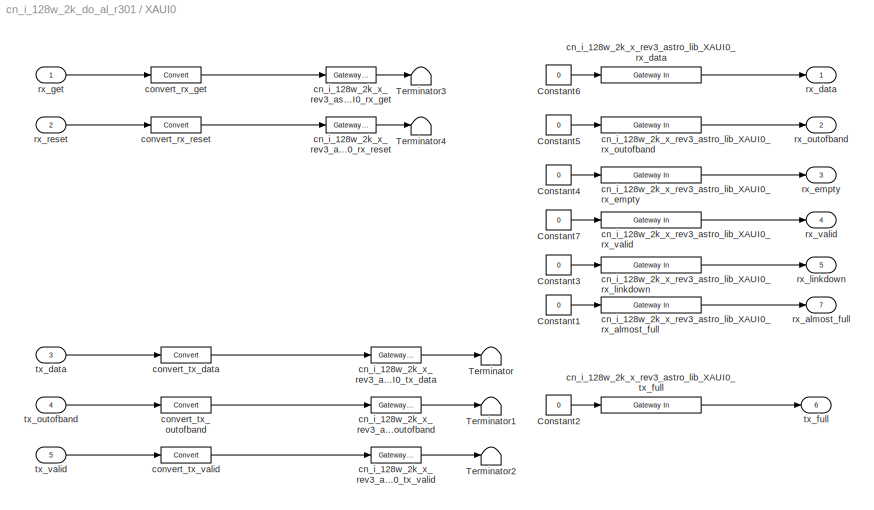
BLOCK [SubSystem] XAUI0
  AncestorBlock = xps_library/XAUI
  MaskCallbackString = ||myname=gcb;\nif strcmp(get_param(myname, 'show_param'), 'on')\n    set_param(myname, 'MaskVisibilities', {'on','on','on','on','on'});\nelse\n    set_param(myname, 'MaskVisibilities', {'on','on','on','off','off'});\nend||
  MaskEnableString = on,on,on,on,on
  MaskIconFrame = on
  MaskIconOpaque = on
  MaskIconRotate = none
  MaskIconUnits = autoscale
  MaskInitialization = xaui_mask;
  MaskPromptString = Demux|Port|---------------------- Show Implementation Parameters -----------------------------------------------------------------------------------|Pre-emphasis|Differential swing
  MaskSelfModifiable = on
  MaskStyleString = popup(1|2),popup(iBOB:0|iBOB:1|BEE2_ctrl:0|BEE2_ctrl:1|BEE2_usr:0|BEE2_usr:1|BEE2_usr:2|BEE2_usr:3|CORR:0),checkbox,popup(0|1|2|3),popup(400|500|600|700|800)
  MaskTabNameString = ,,,,
  MaskToolTipString = on,on,on,on,on
  MaskTunableValueString = off,off,off,off,off
  MaskValueString = 1|iBOB:0|off|3|800
  MaskVarAliasString = ,,,,
  MaskVariables = demux=@1;port=@2;show_param=&3;pre_emph=@4;swing=@5;
  MaskVisibilityString = on,on,on,off,off
  MinAlgLoopOccurrences = off
  Ports = [5, 7]
  RTWSystemCode = Auto
  Tag = xps:xaui
  TreatAsAtomicUnit = off
BLOCK [Constant] XAUI0/Constant1
  Value = 0
BLOCK [Constant] XAUI0/Constant2
  Value = 0
BLOCK [Constant] XAUI0/Constant3
  Value = 0
BLOCK [Constant] XAUI0/Constant4
  Value = 0
BLOCK [Constant] XAUI0/Constant5
  Value = 0
BLOCK [Constant] XAUI0/Constant6
  Value = 0
BLOCK [Constant] XAUI0/Constant7
  Value = 0
BLOCK [Terminator] XAUI0/Terminator
BLOCK [Terminator] XAUI0/Terminator1
BLOCK [Terminator] XAUI0/Terminator2
BLOCK [Terminator] XAUI0/Terminator3
BLOCK [Terminator] XAUI0/Terminator4
BLOCK [Reference] XAUI0/cn_i_128w_2k_x_rev3_astro_lib_XAUI0_rx_almost_full  REF=xbsIndex_r3/Gateway In
  LOCs = {}
  Ports = [1, 1]
  SourceBlock = xbsIndex_r3/Gateway In
  SourceType = Xilinx Gateway In
  arith_type = Boolean
  bin_pt = 0
  dbl_ovrd = off
  locs_specified = off
  n_bits = 1
  needs_fixed_name = off
  overflow = Wrap
  period = 1
  quantization = Truncate
  show_param = off
  timing_constraint = None
  xl_area = [0, 0, 0, 0, 0, 0, 0]
  xl_use_area = off
BLOCK [Reference] XAUI0/cn_i_128w_2k_x_rev3_astro_lib_XAUI0_rx_data  REF=xbsIndex_r3/Gateway In
  LOCs = {}
  Ports = [1, 1]
  SourceBlock = xbsIndex_r3/Gateway In
  SourceType = Xilinx Gateway In
  arith_type = Unsigned
  bin_pt = 0
  dbl_ovrd = off
  locs_specified = off
  n_bits = 64
  needs_fixed_name = off
  overflow = Wrap
  period = 1
  quantization = Truncate
  show_param = off
  timing_constraint = None
  xl_area = [0, 0, 0, 0, 0, 0, 0]
  xl_use_area = off
BLOCK [Reference] XAUI0/cn_i_128w_2k_x_rev3_astro_lib_XAUI0_rx_empty  REF=xbsIndex_r3/Gateway In
  LOCs = {}
  Ports = [1, 1]
  SourceBlock = xbsIndex_r3/Gateway In
  SourceType = Xilinx Gateway In
  arith_type = Boolean
  bin_pt = 0
  dbl_ovrd = off
  locs_specified = off
  n_bits = 1
  needs_fixed_name = off
  overflow = Wrap
  period = 1
  quantization = Truncate
  show_param = off
  timing_constraint = None
  xl_area = [0, 0, 0, 0, 0, 0, 0]
  xl_use_area = off
BLOCK [Reference] XAUI0/cn_i_128w_2k_x_rev3_astro_lib_XAUI0_rx_get  REF=xbsIndex_r3/Gateway Out
  LOCs = {}
  Ports = [1, 1]
  SourceBlock = xbsIndex_r3/Gateway Out
  SourceType = Xilinx Gateway Out
  arith_type = Boolean
  bin_pt = 6
  hdl_port = on
  locs_specified = off
  nbits = 8
  needs_fixed_name = off
  output_type = Double
  overflow = Wrap
  quantization = Truncate
  show_param = off
  timing_constraint = None
  xl_area = [0, 0, 0, 0, 0, 0, 0]
  xl_use_area = off
BLOCK [Reference] XAUI0/cn_i_128w_2k_x_rev3_astro_lib_XAUI0_rx_linkdown  REF=xbsIndex_r3/Gateway In
  LOCs = {}
  Ports = [1, 1]
  SourceBlock = xbsIndex_r3/Gateway In
  SourceType = Xilinx Gateway In
  arith_type = Boolean
  bin_pt = 0
  dbl_ovrd = off
  locs_specified = off
  n_bits = 1
  needs_fixed_name = off
  overflow = Wrap
  period = 1
  quantization = Truncate
  show_param = off
  timing_constraint = None
  xl_area = [0, 0, 0, 0, 0, 0, 0]
  xl_use_area = off
BLOCK [Reference] XAUI0/cn_i_128w_2k_x_rev3_astro_lib_XAUI0_rx_outofband  REF=xbsIndex_r3/Gateway In
  LOCs = {}
  Ports = [1, 1]
  SourceBlock = xbsIndex_r3/Gateway In
  SourceType = Xilinx Gateway In
  arith_type = Unsigned
  bin_pt = 0
  dbl_ovrd = off
  locs_specified = off
  n_bits = 8
  needs_fixed_name = off
  overflow = Wrap
  period = 1
  quantization = Truncate
  show_param = off
  timing_constraint = None
  xl_area = [0, 0, 0, 0, 0, 0, 0]
  xl_use_area = off
BLOCK [Reference] XAUI0/cn_i_128w_2k_x_rev3_astro_lib_XAUI0_rx_reset  REF=xbsIndex_r3/Gateway Out
  LOCs = {}
  Ports = [1, 1]
  SourceBlock = xbsIndex_r3/Gateway Out
  SourceType = Xilinx Gateway Out
  arith_type = Boolean
  bin_pt = 6
  hdl_port = on
  locs_specified = off
  nbits = 8
  needs_fixed_name = off
  output_type = Double
  overflow = Wrap
  quantization = Truncate
  show_param = off
  timing_constraint = None
  xl_area = [0, 0, 0, 0, 0, 0, 0]
  xl_use_area = off
BLOCK [Reference] XAUI0/cn_i_128w_2k_x_rev3_astro_lib_XAUI0_rx_valid  REF=xbsIndex_r3/Gateway In
  LOCs = {}
  Ports = [1, 1]
  SourceBlock = xbsIndex_r3/Gateway In
  SourceType = Xilinx Gateway In
  arith_type = Boolean
  bin_pt = 0
  dbl_ovrd = off
  locs_specified = off
  n_bits = 1
  needs_fixed_name = off
  overflow = Wrap
  period = 1
  quantization = Truncate
  show_param = off
  timing_constraint = None
  xl_area = [0, 0, 0, 0, 0, 0, 0]
  xl_use_area = off
BLOCK [Reference] XAUI0/cn_i_128w_2k_x_rev3_astro_lib_XAUI0_tx_data  REF=xbsIndex_r3/Gateway Out
  LOCs = {}
  Ports = [1, 1]
  SourceBlock = xbsIndex_r3/Gateway Out
  SourceType = Xilinx Gateway Out
  arith_type = Boolean
  bin_pt = 6
  hdl_port = on
  locs_specified = off
  nbits = 8
  needs_fixed_name = off
  output_type = Double
  overflow = Wrap
  quantization = Truncate
  show_param = off
  timing_constraint = None
  xl_area = [0, 0, 0, 0, 0, 0, 0]
  xl_use_area = off
BLOCK [Reference] XAUI0/cn_i_128w_2k_x_rev3_astro_lib_XAUI0_tx_full  REF=xbsIndex_r3/Gateway In
  LOCs = {}
  Ports = [1, 1]
  SourceBlock = xbsIndex_r3/Gateway In
  SourceType = Xilinx Gateway In
  arith_type = Boolean
  bin_pt = 0
  dbl_ovrd = off
  locs_specified = off
  n_bits = 1
  needs_fixed_name = off
  overflow = Wrap
  period = 1
  quantization = Truncate
  show_param = off
  timing_constraint = None
  xl_area = [0, 0, 0, 0, 0, 0, 0]
  xl_use_area = off
BLOCK [Reference] XAUI0/cn_i_128w_2k_x_rev3_astro_lib_XAUI0_tx_outofband  REF=xbsIndex_r3/Gateway Out
  LOCs = {}
  Ports = [1, 1]
  SourceBlock = xbsIndex_r3/Gateway Out
  SourceType = Xilinx Gateway Out
  arith_type = Boolean
  bin_pt = 6
  hdl_port = on
  locs_specified = off
  nbits = 8
  needs_fixed_name = off
  output_type = Double
  overflow = Wrap
  quantization = Truncate
  show_param = off
  timing_constraint = None
  xl_area = [0, 0, 0, 0, 0, 0, 0]
  xl_use_area = off
BLOCK [Reference] XAUI0/cn_i_128w_2k_x_rev3_astro_lib_XAUI0_tx_valid  REF=xbsIndex_r3/Gateway Out
  LOCs = {}
  Ports = [1, 1]
  SourceBlock = xbsIndex_r3/Gateway Out
  SourceType = Xilinx Gateway Out
  arith_type = Boolean
  bin_pt = 6
  hdl_port = on
  locs_specified = off
  nbits = 8
  needs_fixed_name = off
  output_type = Double
  overflow = Wrap
  quantization = Truncate
  show_param = off
  timing_constraint = None
  xl_area = [0, 0, 0, 0, 0, 0, 0]
  xl_use_area = off
BLOCK [Reference] XAUI0/convert_rx_get  REF=xbsIndex_r3/Convert
  Ports = [1, 1]
  SourceBlock = xbsIndex_r3/Convert
  SourceType = Xilinx Converter Block
  arith_type = Boolean
  bin_pt = 0
  dbl_ovrd = off
  explicit_period = off
  inserted_by_tool = off
  latency = 0
  n_bits = 64
  overflow = Wrap
  period = 1
  pipeline = off
  quantization = Truncate
  show_param = off
  xl_area = [0, 0, 0, 0, 0, 0, 0]
  xl_use_area = off
BLOCK [Reference] XAUI0/convert_rx_reset  REF=xbsIndex_r3/Convert
  Ports = [1, 1]
  SourceBlock = xbsIndex_r3/Convert
  SourceType = Xilinx Converter Block
  arith_type = Boolean
  bin_pt = 0
  dbl_ovrd = off
  explicit_period = off
  inserted_by_tool = off
  latency = 0
  n_bits = 1
  overflow = Wrap
  period = 1
  pipeline = off
  quantization = Truncate
  show_param = off
  xl_area = [0, 0, 0, 0, 0, 0, 0]
  xl_use_area = off
BLOCK [Reference] XAUI0/convert_tx_data  REF=xbsIndex_r3/Convert
  Ports = [1, 1]
  SourceBlock = xbsIndex_r3/Convert
  SourceType = Xilinx Converter Block
  arith_type = Unsigned
  bin_pt = 0
  dbl_ovrd = off
  explicit_period = off
  inserted_by_tool = off
  latency = 0
  n_bits = 64
  overflow = Wrap
  period = 1
  pipeline = off
  quantization = Truncate
  show_param = off
  xl_area = [0, 0, 0, 0, 0, 0, 0]
  xl_use_area = off
BLOCK [Reference] XAUI0/convert_tx_outofband  REF=xbsIndex_r3/Convert
  Ports = [1, 1]
  SourceBlock = xbsIndex_r3/Convert
  SourceType = Xilinx Converter Block
  arith_type = Unsigned
  bin_pt = 0
  dbl_ovrd = off
  explicit_period = off
  inserted_by_tool = off
  latency = 0
  n_bits = 8
  overflow = Wrap
  period = 1
  pipeline = off
  quantization = Truncate
  show_param = off
  xl_area = [0, 0, 0, 0, 0, 0, 0]
  xl_use_area = off
BLOCK [Reference] XAUI0/convert_tx_valid  REF=xbsIndex_r3/Convert
  Ports = [1, 1]
  SourceBlock = xbsIndex_r3/Convert
  SourceType = Xilinx Converter Block
  arith_type = Boolean
  bin_pt = 0
  dbl_ovrd = off
  explicit_period = off
  inserted_by_tool = off
  latency = 0
  n_bits = 1
  overflow = Wrap
  period = 1
  pipeline = off
  quantization = Truncate
  show_param = off
  xl_area = [0, 0, 0, 0, 0, 0, 0]
  xl_use_area = off
BLOCK [Outport] XAUI0/rx_almost_full
  BusOutputAsStruct = off
  IconDisplay = Port number
  Port = 7
BLOCK [Outport] XAUI0/rx_data
  BusOutputAsStruct = off
  IconDisplay = Port number
BLOCK [Outport] XAUI0/rx_empty
  BusOutputAsStruct = off
  IconDisplay = Port number
  Port = 3
BLOCK [Inport] XAUI0/rx_get
  IconDisplay = Port number
  LatchInput = off
  Port = 1
BLOCK [Outport] XAUI0/rx_linkdown
  BusOutputAsStruct = off
  IconDisplay = Port number
  Port = 5
BLOCK [Outport] XAUI0/rx_outofband
  BusOutputAsStruct = off
  IconDisplay = Port number
  Port = 2
BLOCK [Inport] XAUI0/rx_reset
  IconDisplay = Port number
  LatchInput = off
  Port = 2
BLOCK [Outport] XAUI0/rx_valid
  BusOutputAsStruct = off
  IconDisplay = Port number
  Port = 4
BLOCK [Inport] XAUI0/tx_data
  IconDisplay = Port number
  LatchInput = off
  Port = 3
BLOCK [Outport] XAUI0/tx_full
  BusOutputAsStruct = off
  IconDisplay = Port number
  Port = 6
BLOCK [Inport] XAUI0/tx_outofband
  IconDisplay = Port number
  LatchInput = off
  Port = 4
BLOCK [Inport] XAUI0/tx_valid
  IconDisplay = Port number
  LatchInput = off
  Port = 5
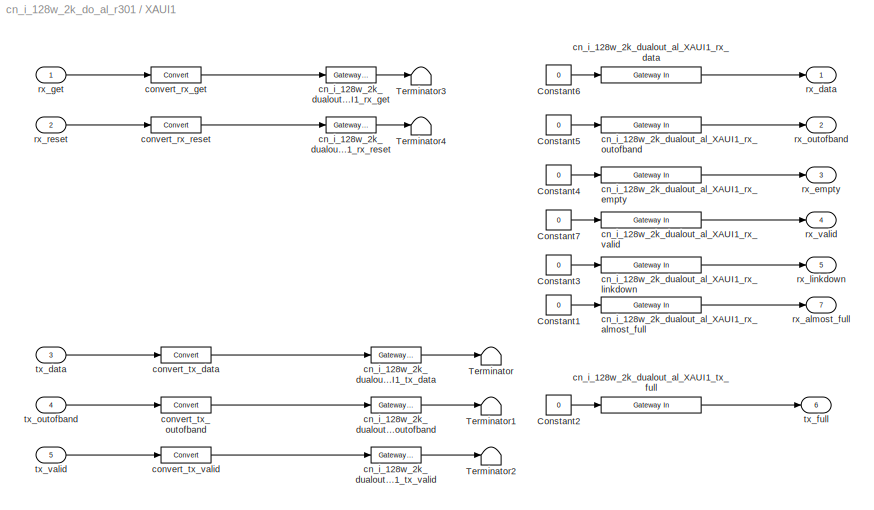
BLOCK [SubSystem] XAUI1
  AncestorBlock = xps_library/XAUI
  MaskCallbackString = ||myname=gcb;\nif strcmp(get_param(myname, 'show_param'), 'on')\n    set_param(myname, 'MaskVisibilities', {'on','on','on','on','on'});\nelse\n    set_param(myname, 'MaskVisibilities', {'on','on','on','off','off'});\nend||
  MaskEnableString = on,on,on,on,on
  MaskIconFrame = on
  MaskIconOpaque = on
  MaskIconRotate = none
  MaskIconUnits = autoscale
  MaskInitialization = xaui_mask;
  MaskPromptString = Demux|Port|---------------------- Show Implementation Parameters -----------------------------------------------------------------------------------|Pre-emphasis|Differential swing
  MaskSelfModifiable = on
  MaskStyleString = popup(1|2),popup(iBOB:0|iBOB:1|BEE2_ctrl:0|BEE2_ctrl:1|BEE2_usr:0|BEE2_usr:1|BEE2_usr:2|BEE2_usr:3|CORR:0),checkbox,popup(0|1|2|3),popup(400|500|600|700|800)
  MaskTabNameString = ,,,,
  MaskToolTipString = on,on,on,on,on
  MaskTunableValueString = off,off,off,off,off
  MaskValueString = 1|iBOB:1|off|3|800
  MaskVarAliasString = ,,,,
  MaskVariables = demux=@1;port=@2;show_param=&3;pre_emph=@4;swing=@5;
  MaskVisibilityString = on,on,on,off,off
  MinAlgLoopOccurrences = off
  Ports = [5, 7]
  RTWSystemCode = Auto
  Tag = xps:xaui
  TreatAsAtomicUnit = off
BLOCK [Constant] XAUI1/Constant1
  Value = 0
BLOCK [Constant] XAUI1/Constant2
  Value = 0
BLOCK [Constant] XAUI1/Constant3
  Value = 0
BLOCK [Constant] XAUI1/Constant4
  Value = 0
BLOCK [Constant] XAUI1/Constant5
  Value = 0
BLOCK [Constant] XAUI1/Constant6
  Value = 0
BLOCK [Constant] XAUI1/Constant7
  Value = 0
BLOCK [Terminator] XAUI1/Terminator
BLOCK [Terminator] XAUI1/Terminator1
BLOCK [Terminator] XAUI1/Terminator2
BLOCK [Terminator] XAUI1/Terminator3
BLOCK [Terminator] XAUI1/Terminator4
BLOCK [Reference] XAUI1/cn_i_128w_2k_dualout_al_XAUI1_rx_almost_full  REF=xbsIndex_r3/Gateway In
  LOCs = {}
  Ports = [1, 1]
  SourceBlock = xbsIndex_r3/Gateway In
  SourceType = Xilinx Gateway In
  arith_type = Boolean
  bin_pt = 0
  dbl_ovrd = off
  locs_specified = off
  n_bits = 1
  needs_fixed_name = off
  overflow = Wrap
  period = 1
  quantization = Truncate
  show_param = off
  timing_constraint = None
  xl_area = [0, 0, 0, 0, 0, 0, 0]
  xl_use_area = off
BLOCK [Reference] XAUI1/cn_i_128w_2k_dualout_al_XAUI1_rx_data  REF=xbsIndex_r3/Gateway In
  LOCs = {}
  Ports = [1, 1]
  SourceBlock = xbsIndex_r3/Gateway In
  SourceType = Xilinx Gateway In
  arith_type = Unsigned
  bin_pt = 0
  dbl_ovrd = off
  locs_specified = off
  n_bits = 64
  needs_fixed_name = off
  overflow = Wrap
  period = 1
  quantization = Truncate
  show_param = off
  timing_constraint = None
  xl_area = [0, 0, 0, 0, 0, 0, 0]
  xl_use_area = off
BLOCK [Reference] XAUI1/cn_i_128w_2k_dualout_al_XAUI1_rx_empty  REF=xbsIndex_r3/Gateway In
  LOCs = {}
  Ports = [1, 1]
  SourceBlock = xbsIndex_r3/Gateway In
  SourceType = Xilinx Gateway In
  arith_type = Boolean
  bin_pt = 0
  dbl_ovrd = off
  locs_specified = off
  n_bits = 1
  needs_fixed_name = off
  overflow = Wrap
  period = 1
  quantization = Truncate
  show_param = off
  timing_constraint = None
  xl_area = [0, 0, 0, 0, 0, 0, 0]
  xl_use_area = off
BLOCK [Reference] XAUI1/cn_i_128w_2k_dualout_al_XAUI1_rx_get  REF=xbsIndex_r3/Gateway Out
  LOCs = {}
  Ports = [1, 1]
  SourceBlock = xbsIndex_r3/Gateway Out
  SourceType = Xilinx Gateway Out
  arith_type = Boolean
  bin_pt = 6
  hdl_port = on
  locs_specified = off
  nbits = 8
  needs_fixed_name = off
  output_type = Double
  overflow = Wrap
  quantization = Truncate
  show_param = off
  timing_constraint = None
  xl_area = [0, 0, 0, 0, 0, 0, 0]
  xl_use_area = off
BLOCK [Reference] XAUI1/cn_i_128w_2k_dualout_al_XAUI1_rx_linkdown  REF=xbsIndex_r3/Gateway In
  LOCs = {}
  Ports = [1, 1]
  SourceBlock = xbsIndex_r3/Gateway In
  SourceType = Xilinx Gateway In
  arith_type = Boolean
  bin_pt = 0
  dbl_ovrd = off
  locs_specified = off
  n_bits = 1
  needs_fixed_name = off
  overflow = Wrap
  period = 1
  quantization = Truncate
  show_param = off
  timing_constraint = None
  xl_area = [0, 0, 0, 0, 0, 0, 0]
  xl_use_area = off
BLOCK [Reference] XAUI1/cn_i_128w_2k_dualout_al_XAUI1_rx_outofband  REF=xbsIndex_r3/Gateway In
  LOCs = {}
  Ports = [1, 1]
  SourceBlock = xbsIndex_r3/Gateway In
  SourceType = Xilinx Gateway In
  arith_type = Unsigned
  bin_pt = 0
  dbl_ovrd = off
  locs_specified = off
  n_bits = 8
  needs_fixed_name = off
  overflow = Wrap
  period = 1
  quantization = Truncate
  show_param = off
  timing_constraint = None
  xl_area = [0, 0, 0, 0, 0, 0, 0]
  xl_use_area = off
BLOCK [Reference] XAUI1/cn_i_128w_2k_dualout_al_XAUI1_rx_reset  REF=xbsIndex_r3/Gateway Out
  LOCs = {}
  Ports = [1, 1]
  SourceBlock = xbsIndex_r3/Gateway Out
  SourceType = Xilinx Gateway Out
  arith_type = Boolean
  bin_pt = 6
  hdl_port = on
  locs_specified = off
  nbits = 8
  needs_fixed_name = off
  output_type = Double
  overflow = Wrap
  quantization = Truncate
  show_param = off
  timing_constraint = None
  xl_area = [0, 0, 0, 0, 0, 0, 0]
  xl_use_area = off
BLOCK [Reference] XAUI1/cn_i_128w_2k_dualout_al_XAUI1_rx_valid  REF=xbsIndex_r3/Gateway In
  LOCs = {}
  Ports = [1, 1]
  SourceBlock = xbsIndex_r3/Gateway In
  SourceType = Xilinx Gateway In
  arith_type = Boolean
  bin_pt = 0
  dbl_ovrd = off
  locs_specified = off
  n_bits = 1
  needs_fixed_name = off
  overflow = Wrap
  period = 1
  quantization = Truncate
  show_param = off
  timing_constraint = None
  xl_area = [0, 0, 0, 0, 0, 0, 0]
  xl_use_area = off
BLOCK [Reference] XAUI1/cn_i_128w_2k_dualout_al_XAUI1_tx_data  REF=xbsIndex_r3/Gateway Out
  LOCs = {}
  Ports = [1, 1]
  SourceBlock = xbsIndex_r3/Gateway Out
  SourceType = Xilinx Gateway Out
  arith_type = Boolean
  bin_pt = 6
  hdl_port = on
  locs_specified = off
  nbits = 8
  needs_fixed_name = off
  output_type = Double
  overflow = Wrap
  quantization = Truncate
  show_param = off
  timing_constraint = None
  xl_area = [0, 0, 0, 0, 0, 0, 0]
  xl_use_area = off
BLOCK [Reference] XAUI1/cn_i_128w_2k_dualout_al_XAUI1_tx_full  REF=xbsIndex_r3/Gateway In
  LOCs = {}
  Ports = [1, 1]
  SourceBlock = xbsIndex_r3/Gateway In
  SourceType = Xilinx Gateway In
  arith_type = Boolean
  bin_pt = 0
  dbl_ovrd = off
  locs_specified = off
  n_bits = 1
  needs_fixed_name = off
  overflow = Wrap
  period = 1
  quantization = Truncate
  show_param = off
  timing_constraint = None
  xl_area = [0, 0, 0, 0, 0, 0, 0]
  xl_use_area = off
BLOCK [Reference] XAUI1/cn_i_128w_2k_dualout_al_XAUI1_tx_outofband  REF=xbsIndex_r3/Gateway Out
  LOCs = {}
  Ports = [1, 1]
  SourceBlock = xbsIndex_r3/Gateway Out
  SourceType = Xilinx Gateway Out
  arith_type = Boolean
  bin_pt = 6
  hdl_port = on
  locs_specified = off
  nbits = 8
  needs_fixed_name = off
  output_type = Double
  overflow = Wrap
  quantization = Truncate
  show_param = off
  timing_constraint = None
  xl_area = [0, 0, 0, 0, 0, 0, 0]
  xl_use_area = off
BLOCK [Reference] XAUI1/cn_i_128w_2k_dualout_al_XAUI1_tx_valid  REF=xbsIndex_r3/Gateway Out
  LOCs = {}
  Ports = [1, 1]
  SourceBlock = xbsIndex_r3/Gateway Out
  SourceType = Xilinx Gateway Out
  arith_type = Boolean
  bin_pt = 6
  hdl_port = on
  locs_specified = off
  nbits = 8
  needs_fixed_name = off
  output_type = Double
  overflow = Wrap
  quantization = Truncate
  show_param = off
  timing_constraint = None
  xl_area = [0, 0, 0, 0, 0, 0, 0]
  xl_use_area = off
BLOCK [Reference] XAUI1/convert_rx_get  REF=xbsIndex_r3/Convert
  Ports = [1, 1]
  SourceBlock = xbsIndex_r3/Convert
  SourceType = Xilinx Converter Block
  arith_type = Boolean
  bin_pt = 0
  dbl_ovrd = off
  explicit_period = off
  inserted_by_tool = off
  latency = 0
  n_bits = 64
  overflow = Wrap
  period = 1
  pipeline = off
  quantization = Truncate
  show_param = off
  xl_area = [0, 0, 0, 0, 0, 0, 0]
  xl_use_area = off
BLOCK [Reference] XAUI1/convert_rx_reset  REF=xbsIndex_r3/Convert
  Ports = [1, 1]
  SourceBlock = xbsIndex_r3/Convert
  SourceType = Xilinx Converter Block
  arith_type = Boolean
  bin_pt = 0
  dbl_ovrd = off
  explicit_period = off
  inserted_by_tool = off
  latency = 0
  n_bits = 1
  overflow = Wrap
  period = 1
  pipeline = off
  quantization = Truncate
  show_param = off
  xl_area = [0, 0, 0, 0, 0, 0, 0]
  xl_use_area = off
BLOCK [Reference] XAUI1/convert_tx_data  REF=xbsIndex_r3/Convert
  Ports = [1, 1]
  SourceBlock = xbsIndex_r3/Convert
  SourceType = Xilinx Converter Block
  arith_type = Unsigned
  bin_pt = 0
  dbl_ovrd = off
  explicit_period = off
  inserted_by_tool = off
  latency = 0
  n_bits = 64
  overflow = Wrap
  period = 1
  pipeline = off
  quantization = Truncate
  show_param = off
  xl_area = [0, 0, 0, 0, 0, 0, 0]
  xl_use_area = off
BLOCK [Reference] XAUI1/convert_tx_outofband  REF=xbsIndex_r3/Convert
  Ports = [1, 1]
  SourceBlock = xbsIndex_r3/Convert
  SourceType = Xilinx Converter Block
  arith_type = Unsigned
  bin_pt = 0
  dbl_ovrd = off
  explicit_period = off
  inserted_by_tool = off
  latency = 0
  n_bits = 8
  overflow = Wrap
  period = 1
  pipeline = off
  quantization = Truncate
  show_param = off
  xl_area = [0, 0, 0, 0, 0, 0, 0]
  xl_use_area = off
BLOCK [Reference] XAUI1/convert_tx_valid  REF=xbsIndex_r3/Convert
  Ports = [1, 1]
  SourceBlock = xbsIndex_r3/Convert
  SourceType = Xilinx Converter Block
  arith_type = Boolean
  bin_pt = 0
  dbl_ovrd = off
  explicit_period = off
  inserted_by_tool = off
  latency = 0
  n_bits = 1
  overflow = Wrap
  period = 1
  pipeline = off
  quantization = Truncate
  show_param = off
  xl_area = [0, 0, 0, 0, 0, 0, 0]
  xl_use_area = off
BLOCK [Outport] XAUI1/rx_almost_full
  BusOutputAsStruct = off
  IconDisplay = Port number
  Port = 7
BLOCK [Outport] XAUI1/rx_data
  BusOutputAsStruct = off
  IconDisplay = Port number
BLOCK [Outport] XAUI1/rx_empty
  BusOutputAsStruct = off
  IconDisplay = Port number
  Port = 3
BLOCK [Inport] XAUI1/rx_get
  IconDisplay = Port number
  LatchInput = off
  Port = 1
BLOCK [Outport] XAUI1/rx_linkdown
  BusOutputAsStruct = off
  IconDisplay = Port number
  Port = 5
BLOCK [Outport] XAUI1/rx_outofband
  BusOutputAsStruct = off
  IconDisplay = Port number
  Port = 2
BLOCK [Inport] XAUI1/rx_reset
  IconDisplay = Port number
  LatchInput = off
  Port = 2
BLOCK [Outport] XAUI1/rx_valid
  BusOutputAsStruct = off
  IconDisplay = Port number
  Port = 4
BLOCK [Inport] XAUI1/tx_data
  IconDisplay = Port number
  LatchInput = off
  Port = 3
BLOCK [Outport] XAUI1/tx_full
  BusOutputAsStruct = off
  IconDisplay = Port number
  Port = 6
BLOCK [Inport] XAUI1/tx_outofband
  IconDisplay = Port number
  LatchInput = off
  Port = 4
BLOCK [Inport] XAUI1/tx_valid
  IconDisplay = Port number
  LatchInput = off
  Port = 5
BLOCK [Reference] XSG core config  REF=xps_library/XSG core config  (lib defined in mdl_00b5cec29cd0, mdl_02ab6ecaa3d1, +5 more)
  Ports = []
  ShowPortLabels = on
  SourceBlock = xps_library/XSG core config
  Tag = xps:xsg
  clk_rate = 200
  clk_src = adc0_clk
  gpio_clk_bit_index = 0
  gpio_clk_io_group = iBOB:sma
  hw_sys = iBOB
  ibob_linux = off
  mpc_type = powerpc405
  sample_period = 1
  synthesis_tool = XST
BLOCK [Reference] adc0  REF=xps_library/adc  (lib defined in mdl_00b5cec29cd0, mdl_02ab6ecaa3d1, +5 more)
  Ports = [4, 17]
  ShowPortLabels = on
  SourceBlock = xps_library/adc
  Tag = xps:adc
  adc_brd = iBOB:adc0
  adc_clk_rate = 600
  adc_interleave = off
  sample_period = 1
BLOCK [Reference] adc1  REF=xps_library/adc  (lib defined in mdl_00b5cec29cd0, mdl_02ab6ecaa3d1, +5 more)
  Ports = [4, 17]
  ShowPortLabels = on
  SourceBlock = xps_library/adc
  Tag = xps:adc
  adc_brd = iBOB:adc1
  adc_clk_rate = 600
  adc_interleave = off
  sample_period = 1
BLOCK [Reference] adc_sum_sq  REF=xps_library/software register  (lib defined in mdl_00b5cec29cd0, mdl_02ab6ecaa3d1, +5 more)
  Ports = [1, 1]
  ShowPortLabels = on
  SourceBlock = xps_library/software register
  Tag = xps:sw_reg
  arith_type = Unsigned
  bin_pt = 14
  bitwidth = 32
  gw_name = cn_i_128w_2k_dualout_al_adc_sum_sq_user_data_in
  io_dir = To Processor
  sample_period = 1
BLOCK [SubSystem] calc_adc_sum_sq
  MaskIconFrame = on
  MaskIconOpaque = on
  MaskIconRotate = none
  MaskIconUnits = autoscale
  MaskValueString = 3|2
  MinAlgLoopOccurrences = off
  Ports = [4, 1]
  RTWSystemCode = Auto
  TreatAsAtomicUnit = off
BLOCK [Reference] calc_adc_sum_sq/Accumulator  REF=xbsIndex_r3/Accumulator
  Ports = [2, 1]
  SourceBlock = xbsIndex_r3/Accumulator
  SourceType = Xilinx Accumulator
  dbl_ovrd = off
  en = off
  explicit_period = off
  gen_core = off
  hasbypass = off
  n_bits = 32
  operation = Add
  overflow = Wrap
  period = 1
  rst = on
  scale = 1
  show_param = off
  use_rpm = on
  xl_area = [0, 0, 0, 0, 0, 0, 0]
  xl_use_area = off
BLOCK [Reference] calc_adc_sum_sq/Counter  REF=xbsIndex_r3/Counter
  Ports = [0, 1]
  SourceBlock = xbsIndex_r3/Counter
  SourceType = Xilinx Counter Block
  arith_type = Unsigned
  bin_pt = 0
  cnt_by_val = 1
  cnt_to = Inf
  cnt_type = Free Running
  dbl_ovrd = off
  en = off
  explicit_period = off
  gen_core = off
  load_pin = off
  n_bits = 2
  operation = Up
  period = 1
  rst = off
  show_param = off
  start_count = 0
  use_rpm = on
  xl_area = [0, 0, 0, 0, 0, 0, 0]
  xl_use_area = off
BLOCK [Reference] calc_adc_sum_sq/Counter1  REF=xbsIndex_r3/Counter
  Ports = [0, 1]
  SourceBlock = xbsIndex_r3/Counter
  SourceType = Xilinx Counter Block
  arith_type = Unsigned
  bin_pt = 0
  cnt_by_val = 1
  cnt_to = Inf
  cnt_type = Free Running
  dbl_ovrd = off
  en = off
  explicit_period = off
  gen_core = off
  load_pin = off
  n_bits = 16
  operation = Up
  period = 1
  rst = off
  show_param = off
  start_count = 0
  use_rpm = on
  xl_area = [0, 0, 0, 0, 0, 0, 0]
  xl_use_area = off
BLOCK [Inport] calc_adc_sum_sq/In1
  IconDisplay = Port number
  LatchInput = off
  Port = 1
BLOCK [Inport] calc_adc_sum_sq/In2
  IconDisplay = Port number
  LatchInput = off
  Port = 2
BLOCK [Inport] calc_adc_sum_sq/In3
  IconDisplay = Port number
  LatchInput = off
  Port = 3
BLOCK [Inport] calc_adc_sum_sq/In4
  IconDisplay = Port number
  LatchInput = off
  Port = 4
BLOCK [Reference] calc_adc_sum_sq/Mult  REF=xbsIndex_r3/Mult
  Ports = [2, 1]
  SourceBlock = xbsIndex_r3/Mult
  SourceType = Xilinx Multiplier
  arith_type = Signed  (2's comp)
  bin_pt = 2
  dbl_ovrd = off
  en = off
  explicit_period = on
  gen_core = off
  latency = 2
  mult_type = Parallel
  n_bits = 8
  overflow = Wrap
  oversample = 2
  period = 1
  pipeline = on
  placement_style = Rectangular Shape
  precision = Full
  quantization = Truncate
  show_param = off
  use_embedded = off
  use_rpm = on
  xl_area = [0, 0, 0, 0, 0, 0, 0]
  xl_use_area = off
BLOCK [Reference] calc_adc_sum_sq/Mux  REF=xbsIndex_r3/Mux
  Ports = [5, 1]
  SourceBlock = xbsIndex_r3/Mux
  SourceType = Xilinx Multiplexer Block
  arith_type = Signed  (2's comp)
  bin_pt = 2
  dbl_ovrd = off
  en = off
  explicit_period = off
  gen_core = off
  inputs = 4
  latency = 1
  mux_type = off
  n_bits = 8
  overflow = Wrap
  period = 1
  precision = Full
  quantization = Truncate
  show_param = off
  use_rpm = off
  xl_area = [0, 0, 0, 0, 0, 0, 0]
  xl_use_area = off
BLOCK [Reference] calc_adc_sum_sq/Register  REF=xbsIndex_r3/Register
  Ports = [2, 1]
  SourceBlock = xbsIndex_r3/Register
  SourceType = Xilinx Register Block
  dbl_ovrd = off
  en = on
  explicit_period = off
  init = 0
  out_en = off
  period = 1
  reg_only_valid = off
  rst = off
  show_param = off
  xl_area = [0, 0, 0, 0, 0, 0, 0]
  xl_use_area = off
BLOCK [Reference] calc_adc_sum_sq/Slice  REF=xbsIndex_r3/Slice
  Ports = [1, 1]
  SourceBlock = xbsIndex_r3/Slice
  SourceType = Xilinx Slice Block
  base0 = LSB of Input
  base1 = MSB of Input
  bit0 = 0
  bit1 = 0
  boolean_output = off
  dbl_ovrd = off
  explicit_period = off
  mode = Upper Bit Location + Width
  nbits = 1
  period = 1
BLOCK [SubSystem] calc_adc_sum_sq/negedge
  MinAlgLoopOccurrences = off
  Ports = [1, 1]
  RTWSystemCode = Auto
  TreatAsAtomicUnit = off
BLOCK [Reference] calc_adc_sum_sq/negedge/Convert  REF=xbsIndex_r3/Convert
  Ports = [1, 1]
  SourceBlock = xbsIndex_r3/Convert
  SourceType = Xilinx Converter Block
  arith_type = Boolean
  bin_pt = 6
  dbl_ovrd = off
  explicit_period = off
  inserted_by_tool = off
  latency = 0
  n_bits = 8
  overflow = Wrap
  period = 1
  pipeline = off
  quantization = Truncate
  show_param = off
  xl_area = [0, 0, 0, 0, 0, 0, 0]
  xl_use_area = off
BLOCK [Reference] calc_adc_sum_sq/negedge/Delay  REF=xbsIndex_r3/Delay
  Ports = [1, 1]
  SourceBlock = xbsIndex_r3/Delay
  SourceType = Xilinx Delay Block
  accept_only_valid = off
  dbl_ovrd = off
  en = off
  explicit_period = off
  init_zero = on
  latency = 1
  period = 1
  reg_retiming = off
  show_param = off
  xl_area = [0, 0, 0, 0, 0, 0, 0]
  xl_use_area = off
BLOCK [Inport] calc_adc_sum_sq/negedge/In
  IconDisplay = Port number
  LatchInput = off
  Port = 1
BLOCK [Reference] calc_adc_sum_sq/negedge/Inverter1  REF=xbsIndex_r3/Inverter
  Ports = [1, 1]
  SourceBlock = xbsIndex_r3/Inverter
  SourceType = Xilinx Inverter
  dbl_ovrd = off
  en = off
  explicit_period = off
  latency = 0
  period = 1
  show_param = off
  xl_area = [0, 0, 0, 0, 0, 0, 0]
  xl_use_area = off
BLOCK [Reference] calc_adc_sum_sq/negedge/Logical  REF=xbsIndex_r3/Logical
  Ports = [2, 1]
  SourceBlock = xbsIndex_r3/Logical
  SourceType = Xilinx Logical Block
  align_bp = on
  arith_type = Unsigned
  bin_pt = 2
  dbl_ovrd = off
  en = off
  explicit_period = off
  inputs = 2
  latency = 0
  logical_function = AND
  n_bits = 8
  period = 1
  precision = Full
  show_param = off
  xl_area = [0, 0, 0, 0, 0, 0, 0]
  xl_use_area = off
BLOCK [Outport] calc_adc_sum_sq/negedge/Out1
  BusOutputAsStruct = off
  IconDisplay = Port number
BLOCK [Outport] calc_adc_sum_sq/sum_sq
  BusOutputAsStruct = off
  IconDisplay = Port number
BLOCK [Reference] clk_div_2  REF=xbsIndex_r3/Counter
  Ports = [0, 1]
  SourceBlock = xbsIndex_r3/Counter
  SourceType = Xilinx Counter Block
  arith_type = Unsigned
  bin_pt = 0
  cnt_by_val = 1
  cnt_to = Inf
  cnt_type = Free Running
  dbl_ovrd = off
  en = off
  explicit_period = off
  gen_core = off
  load_pin = off
  n_bits = 1
  operation = Up
  period = 1
  rst = off
  show_param = off
  start_count = 0
  use_rpm = on
  xl_area = [0, 0, 0, 0, 0, 0, 0]
  xl_use_area = off
BLOCK [Reference] clk_out  REF=xps_library/gpio  (lib defined in mdl_00b5cec29cd0, mdl_02ab6ecaa3d1, +5 more)
  Ports = [1, 1]
  ShowPortLabels = on
  SourceBlock = xps_library/gpio
  SourceType = gpio
  Tag = xps:gpio
  arith_type = Unsigned
  bin_pt = 0
  bit_index = 0
  bitwidth = 1
  io_dir = out
  io_group = iBOB:sma
  reg_clk_phase = 0
  reg_iob = on
  sample_period = 1
  termination = None
  use_ddr = off
BLOCK [SubSystem] concat
  MinAlgLoopOccurrences = off
  Ports = [4, 1]
  RTWSystemCode = Auto
  TreatAsAtomicUnit = off
BLOCK [Reference] concat/Concat2  REF=xbsIndex_r3/Concat
  Ports = [4, 1]
  SourceBlock = xbsIndex_r3/Concat
  SourceType = Xilinx Bus Concatenator
  dbl_ovrd = off
  explicit_period = off
  num_inputs = 4
  period = 1
BLOCK [Inport] concat/In1
  IconDisplay = Port number
  LatchInput = off
  Port = 1
BLOCK [Inport] concat/In2
  IconDisplay = Port number
  LatchInput = off
  Port = 2
BLOCK [Inport] concat/In3
  IconDisplay = Port number
  LatchInput = off
  Port = 3
BLOCK [Inport] concat/In4
  IconDisplay = Port number
  LatchInput = off
  Port = 4
BLOCK [Outport] concat/Out1
  BusOutputAsStruct = off
  IconDisplay = Port number
BLOCK [Reference] concat/R1  REF=xbsIndex_r3/Reinterpret
  Ports = [1, 1]
  SourceBlock = xbsIndex_r3/Reinterpret
  SourceType = Xilinx Type Reinterpreting Block
  arith_type = Unsigned
  bin_pt = 0
  force_arith_type = on
  force_bin_pt = on
  force_valid = on
BLOCK [Reference] concat/R2  REF=xbsIndex_r3/Reinterpret
  Ports = [1, 1]
  SourceBlock = xbsIndex_r3/Reinterpret
  SourceType = Xilinx Type Reinterpreting Block
  arith_type = Unsigned
  bin_pt = 0
  force_arith_type = on
  force_bin_pt = on
  force_valid = on
BLOCK [Reference] concat/R3  REF=xbsIndex_r3/Reinterpret
  Ports = [1, 1]
  SourceBlock = xbsIndex_r3/Reinterpret
  SourceType = Xilinx Type Reinterpreting Block
  arith_type = Unsigned
  bin_pt = 0
  force_arith_type = on
  force_bin_pt = on
  force_valid = on
BLOCK [Reference] concat/Reinterpret2  REF=xbsIndex_r3/Reinterpret
  Ports = [1, 1]
  SourceBlock = xbsIndex_r3/Reinterpret
  SourceType = Xilinx Type Reinterpreting Block
  arith_type = Unsigned
  bin_pt = 0
  force_arith_type = on
  force_bin_pt = on
  force_valid = on
BLOCK [SubSystem] concat4
  MinAlgLoopOccurrences = off
  Ports = [4, 1]
  RTWSystemCode = Auto
  TreatAsAtomicUnit = off
BLOCK [Reference] concat4/Concat2  REF=xbsIndex_r3/Concat
  Ports = [4, 1]
  SourceBlock = xbsIndex_r3/Concat
  SourceType = Xilinx Bus Concatenator
  dbl_ovrd = off
  explicit_period = off
  num_inputs = 4
  period = 1
BLOCK [Inport] concat4/In1
  IconDisplay = Port number
  LatchInput = off
  Port = 1
BLOCK [Inport] concat4/In2
  IconDisplay = Port number
  LatchInput = off
  Port = 2
BLOCK [Inport] concat4/In3
  IconDisplay = Port number
  LatchInput = off
  Port = 3
BLOCK [Inport] concat4/In4
  IconDisplay = Port number
  LatchInput = off
  Port = 4
BLOCK [Outport] concat4/Out1
  BusOutputAsStruct = off
  IconDisplay = Port number
BLOCK [Reference] concat4/R1  REF=xbsIndex_r3/Reinterpret
  Ports = [1, 1]
  SourceBlock = xbsIndex_r3/Reinterpret
  SourceType = Xilinx Type Reinterpreting Block
  arith_type = Unsigned
  bin_pt = 0
  force_arith_type = on
  force_bin_pt = on
  force_valid = on
BLOCK [Reference] concat4/R2  REF=xbsIndex_r3/Reinterpret
  Ports = [1, 1]
  SourceBlock = xbsIndex_r3/Reinterpret
  SourceType = Xilinx Type Reinterpreting Block
  arith_type = Unsigned
  bin_pt = 0
  force_arith_type = on
  force_bin_pt = on
  force_valid = on
BLOCK [Reference] concat4/R3  REF=xbsIndex_r3/Reinterpret
  Ports = [1, 1]
  SourceBlock = xbsIndex_r3/Reinterpret
  SourceType = Xilinx Type Reinterpreting Block
  arith_type = Unsigned
  bin_pt = 0
  force_arith_type = on
  force_bin_pt = on
  force_valid = on
BLOCK [Reference] concat4/Reinterpret2  REF=xbsIndex_r3/Reinterpret
  Ports = [1, 1]
  SourceBlock = xbsIndex_r3/Reinterpret
  SourceType = Xilinx Type Reinterpreting Block
  arith_type = Unsigned
  bin_pt = 0
  force_arith_type = on
  force_bin_pt = on
  force_valid = on
BLOCK [SubSystem] concat5
  MinAlgLoopOccurrences = off
  Ports = [4, 1]
  RTWSystemCode = Auto
  TreatAsAtomicUnit = off
BLOCK [Reference] concat5/Concat2  REF=xbsIndex_r3/Concat
  Ports = [4, 1]
  SourceBlock = xbsIndex_r3/Concat
  SourceType = Xilinx Bus Concatenator
  dbl_ovrd = off
  explicit_period = off
  num_inputs = 4
  period = 1
BLOCK [Inport] concat5/In1
  IconDisplay = Port number
  LatchInput = off
  Port = 1
BLOCK [Inport] concat5/In2
  IconDisplay = Port number
  LatchInput = off
  Port = 2
BLOCK [Inport] concat5/In3
  IconDisplay = Port number
  LatchInput = off
  Port = 3
BLOCK [Inport] concat5/In4
  IconDisplay = Port number
  LatchInput = off
  Port = 4
BLOCK [Outport] concat5/Out1
  BusOutputAsStruct = off
  IconDisplay = Port number
BLOCK [Reference] concat5/R1  REF=xbsIndex_r3/Reinterpret
  Ports = [1, 1]
  SourceBlock = xbsIndex_r3/Reinterpret
  SourceType = Xilinx Type Reinterpreting Block
  arith_type = Unsigned
  bin_pt = 0
  force_arith_type = on
  force_bin_pt = on
  force_valid = on
BLOCK [Reference] concat5/R2  REF=xbsIndex_r3/Reinterpret
  Ports = [1, 1]
  SourceBlock = xbsIndex_r3/Reinterpret
  SourceType = Xilinx Type Reinterpreting Block
  arith_type = Unsigned
  bin_pt = 0
  force_arith_type = on
  force_bin_pt = on
  force_valid = on
BLOCK [Reference] concat5/R3  REF=xbsIndex_r3/Reinterpret
  Ports = [1, 1]
  SourceBlock = xbsIndex_r3/Reinterpret
  SourceType = Xilinx Type Reinterpreting Block
  arith_type = Unsigned
  bin_pt = 0
  force_arith_type = on
  force_bin_pt = on
  force_valid = on
BLOCK [Reference] concat5/Reinterpret2  REF=xbsIndex_r3/Reinterpret
  Ports = [1, 1]
  SourceBlock = xbsIndex_r3/Reinterpret
  SourceType = Xilinx Type Reinterpreting Block
  arith_type = Unsigned
  bin_pt = 0
  force_arith_type = on
  force_bin_pt = on
  force_valid = on
BLOCK [SubSystem] concat6
  MinAlgLoopOccurrences = off
  Ports = [4, 1]
  RTWSystemCode = Auto
  TreatAsAtomicUnit = off
BLOCK [Reference] concat6/Concat2  REF=xbsIndex_r3/Concat
  Ports = [4, 1]
  SourceBlock = xbsIndex_r3/Concat
  SourceType = Xilinx Bus Concatenator
  dbl_ovrd = off
  explicit_period = off
  num_inputs = 4
  period = 1
BLOCK [Inport] concat6/In1
  IconDisplay = Port number
  LatchInput = off
  Port = 1
BLOCK [Inport] concat6/In2
  IconDisplay = Port number
  LatchInput = off
  Port = 2
BLOCK [Inport] concat6/In3
  IconDisplay = Port number
  LatchInput = off
  Port = 3
BLOCK [Inport] concat6/In4
  IconDisplay = Port number
  LatchInput = off
  Port = 4
BLOCK [Outport] concat6/Out1
  BusOutputAsStruct = off
  IconDisplay = Port number
BLOCK [Reference] concat6/R1  REF=xbsIndex_r3/Reinterpret
  Ports = [1, 1]
  SourceBlock = xbsIndex_r3/Reinterpret
  SourceType = Xilinx Type Reinterpreting Block
  arith_type = Unsigned
  bin_pt = 0
  force_arith_type = on
  force_bin_pt = on
  force_valid = on
BLOCK [Reference] concat6/R2  REF=xbsIndex_r3/Reinterpret
  Ports = [1, 1]
  SourceBlock = xbsIndex_r3/Reinterpret
  SourceType = Xilinx Type Reinterpreting Block
  arith_type = Unsigned
  bin_pt = 0
  force_arith_type = on
  force_bin_pt = on
  force_valid = on
BLOCK [Reference] concat6/R3  REF=xbsIndex_r3/Reinterpret
  Ports = [1, 1]
  SourceBlock = xbsIndex_r3/Reinterpret
  SourceType = Xilinx Type Reinterpreting Block
  arith_type = Unsigned
  bin_pt = 0
  force_arith_type = on
  force_bin_pt = on
  force_valid = on
BLOCK [Reference] concat6/Reinterpret2  REF=xbsIndex_r3/Reinterpret
  Ports = [1, 1]
  SourceBlock = xbsIndex_r3/Reinterpret
  SourceType = Xilinx Type Reinterpreting Block
  arith_type = Unsigned
  bin_pt = 0
  force_arith_type = on
  force_bin_pt = on
  force_valid = on
BLOCK [Reference] ctrl_out  REF=xps_library/software register  (lib defined in mdl_00b5cec29cd0, mdl_02ab6ecaa3d1, +5 more)
  Ports = [1, 1]
  ShowPortLabels = on
  SourceBlock = xps_library/software register
  Tag = xps:sw_reg
  arith_type = Unsigned
  bin_pt = 0
  bitwidth = 32
  gw_name = cn_i_128w_2k_dualout_al_ctrl_out_user_data_in
  io_dir = To Processor
  sample_period = 1
BLOCK [Reference] ctrl_sw  REF=xps_library/software register  (lib defined in mdl_00b5cec29cd0, mdl_02ab6ecaa3d1, +5 more)
  Ports = [1, 1]
  ShowPortLabels = on
  SourceBlock = xps_library/software register
  Tag = xps:sw_reg
  arith_type = Unsigned
  bin_pt = 0
  bitwidth = 32
  gw_name = cn_i_128w_2k_dualout_al_ctrl_sw_user_data_out
  io_dir = From Processor
  sample_period = 1
BLOCK [Reference] dbuf_ct_sram  REF=reorder_library/dbuf_transpose_sram  (lib defined in mdl_1ba9cc465ea9, mdl_9ed4950f2b10)
  Ports = [2, 2]
  ShowPortLabels = on
  SourceBlock = reorder_library/dbuf_transpose_sram
  length = 2^11
  numSpecs = 128
BLOCK [SubSystem] decat
  MinAlgLoopOccurrences = off
  Ports = [1, 4]
  RTWSystemCode = Auto
  TreatAsAtomicUnit = off
BLOCK [Inport] decat/In1
  IconDisplay = Port number
  LatchInput = off
  Port = 1
BLOCK [Outport] decat/Out1
  BusOutputAsStruct = off
  IconDisplay = Port number
BLOCK [Outport] decat/Out2
  BusOutputAsStruct = off
  IconDisplay = Port number
  Port = 2
BLOCK [Outport] decat/Out3
  BusOutputAsStruct = off
  IconDisplay = Port number
  Port = 3
BLOCK [Outport] decat/Out4
  BusOutputAsStruct = off
  IconDisplay = Port number
  Port = 4
BLOCK [Reference] decat/Reinterpret1  REF=xbsIndex_r3/Reinterpret
  Ports = [1, 1]
  SourceBlock = xbsIndex_r3/Reinterpret
  SourceType = Xilinx Type Reinterpreting Block
  arith_type = Signed  (2's comp)
  bin_pt = 7
  force_arith_type = on
  force_bin_pt = on
  force_valid = on
BLOCK [Reference] decat/Reinterpret2  REF=xbsIndex_r3/Reinterpret
  Ports = [1, 1]
  SourceBlock = xbsIndex_r3/Reinterpret
  SourceType = Xilinx Type Reinterpreting Block
  arith_type = Signed  (2's comp)
  bin_pt = 7
  force_arith_type = on
  force_bin_pt = on
  force_valid = on
BLOCK [Reference] decat/Reinterpret3  REF=xbsIndex_r3/Reinterpret
  Ports = [1, 1]
  SourceBlock = xbsIndex_r3/Reinterpret
  SourceType = Xilinx Type Reinterpreting Block
  arith_type = Signed  (2's comp)
  bin_pt = 7
  force_arith_type = on
  force_bin_pt = on
  force_valid = on
BLOCK [Reference] decat/Reinterpret4  REF=xbsIndex_r3/Reinterpret
  Ports = [1, 1]
  SourceBlock = xbsIndex_r3/Reinterpret
  SourceType = Xilinx Type Reinterpreting Block
  arith_type = Signed  (2's comp)
  bin_pt = 7
  force_arith_type = on
  force_bin_pt = on
  force_valid = on
BLOCK [Reference] decat/Slice15  REF=xbsIndex_r3/Slice
  Ports = [1, 1]
  SourceBlock = xbsIndex_r3/Slice
  SourceType = Xilinx Slice Block
  base0 = LSB of Input
  base1 = MSB of Input
  bit0 = 8
  bit1 = 0
  boolean_output = off
  dbl_ovrd = off
  explicit_period = off
  mode = Lower Bit Location + Width
  nbits = 8
  period = 1
BLOCK [Reference] decat/Slice16  REF=xbsIndex_r3/Slice
  Ports = [1, 1]
  SourceBlock = xbsIndex_r3/Slice
  SourceType = Xilinx Slice Block
  base0 = LSB of Input
  base1 = MSB of Input
  bit0 = 16
  bit1 = 0
  boolean_output = off
  dbl_ovrd = off
  explicit_period = off
  mode = Lower Bit Location + Width
  nbits = 8
  period = 1
BLOCK [Reference] decat/Slice17  REF=xbsIndex_r3/Slice
  Ports = [1, 1]
  SourceBlock = xbsIndex_r3/Slice
  SourceType = Xilinx Slice Block
  base0 = LSB of Input
  base1 = MSB of Input
  bit0 = 24
  bit1 = 0
  boolean_output = off
  dbl_ovrd = off
  explicit_period = off
  mode = Lower Bit Location + Width
  nbits = 8
  period = 1
BLOCK [Reference] decat/Slice9  REF=xbsIndex_r3/Slice
  Ports = [1, 1]
  SourceBlock = xbsIndex_r3/Slice
  SourceType = Xilinx Slice Block
  base0 = LSB of Input
  base1 = MSB of Input
  bit0 = 0
  bit1 = 0
  boolean_output = off
  dbl_ovrd = off
  explicit_period = off
  mode = Lower Bit Location + Width
  nbits = 8
  period = 1
BLOCK [SubSystem] decat1
  MinAlgLoopOccurrences = off
  Ports = [1, 4]
  RTWSystemCode = Auto
  TreatAsAtomicUnit = off
BLOCK [Inport] decat1/In1
  IconDisplay = Port number
  LatchInput = off
  Port = 1
BLOCK [Outport] decat1/Out1
  BusOutputAsStruct = off
  IconDisplay = Port number
BLOCK [Outport] decat1/Out2
  BusOutputAsStruct = off
  IconDisplay = Port number
  Port = 2
BLOCK [Outport] decat1/Out3
  BusOutputAsStruct = off
  IconDisplay = Port number
  Port = 3
BLOCK [Outport] decat1/Out4
  BusOutputAsStruct = off
  IconDisplay = Port number
  Port = 4
BLOCK [Reference] decat1/Reinterpret1  REF=xbsIndex_r3/Reinterpret
  Ports = [1, 1]
  SourceBlock = xbsIndex_r3/Reinterpret
  SourceType = Xilinx Type Reinterpreting Block
  arith_type = Signed  (2's comp)
  bin_pt = 7
  force_arith_type = on
  force_bin_pt = on
  force_valid = on
BLOCK [Reference] decat1/Reinterpret2  REF=xbsIndex_r3/Reinterpret
  Ports = [1, 1]
  SourceBlock = xbsIndex_r3/Reinterpret
  SourceType = Xilinx Type Reinterpreting Block
  arith_type = Signed  (2's comp)
  bin_pt = 7
  force_arith_type = on
  force_bin_pt = on
  force_valid = on
BLOCK [Reference] decat1/Reinterpret3  REF=xbsIndex_r3/Reinterpret
  Ports = [1, 1]
  SourceBlock = xbsIndex_r3/Reinterpret
  SourceType = Xilinx Type Reinterpreting Block
  arith_type = Signed  (2's comp)
  bin_pt = 7
  force_arith_type = on
  force_bin_pt = on
  force_valid = on
BLOCK [Reference] decat1/Reinterpret4  REF=xbsIndex_r3/Reinterpret
  Ports = [1, 1]
  SourceBlock = xbsIndex_r3/Reinterpret
  SourceType = Xilinx Type Reinterpreting Block
  arith_type = Signed  (2's comp)
  bin_pt = 7
  force_arith_type = on
  force_bin_pt = on
  force_valid = on
BLOCK [Reference] decat1/Slice15  REF=xbsIndex_r3/Slice
  Ports = [1, 1]
  SourceBlock = xbsIndex_r3/Slice
  SourceType = Xilinx Slice Block
  base0 = LSB of Input
  base1 = MSB of Input
  bit0 = 8
  bit1 = 0
  boolean_output = off
  dbl_ovrd = off
  explicit_period = off
  mode = Lower Bit Location + Width
  nbits = 8
  period = 1
BLOCK [Reference] decat1/Slice16  REF=xbsIndex_r3/Slice
  Ports = [1, 1]
  SourceBlock = xbsIndex_r3/Slice
  SourceType = Xilinx Slice Block
  base0 = LSB of Input
  base1 = MSB of Input
  bit0 = 16
  bit1 = 0
  boolean_output = off
  dbl_ovrd = off
  explicit_period = off
  mode = Lower Bit Location + Width
  nbits = 8
  period = 1
BLOCK [Reference] decat1/Slice17  REF=xbsIndex_r3/Slice
  Ports = [1, 1]
  SourceBlock = xbsIndex_r3/Slice
  SourceType = Xilinx Slice Block
  base0 = LSB of Input
  base1 = MSB of Input
  bit0 = 24
  bit1 = 0
  boolean_output = off
  dbl_ovrd = off
  explicit_period = off
  mode = Lower Bit Location + Width
  nbits = 8
  period = 1
BLOCK [Reference] decat1/Slice9  REF=xbsIndex_r3/Slice
  Ports = [1, 1]
  SourceBlock = xbsIndex_r3/Slice
  SourceType = Xilinx Slice Block
  base0 = LSB of Input
  base1 = MSB of Input
  bit0 = 0
  bit1 = 0
  boolean_output = off
  dbl_ovrd = off
  explicit_period = off
  mode = Lower Bit Location + Width
  nbits = 8
  period = 1
BLOCK [SubSystem] decat2
  MinAlgLoopOccurrences = off
  Ports = [1, 4]
  RTWSystemCode = Auto
  TreatAsAtomicUnit = off
BLOCK [Inport] decat2/In1
  IconDisplay = Port number
  LatchInput = off
  Port = 1
BLOCK [Outport] decat2/Out1
  BusOutputAsStruct = off
  IconDisplay = Port number
BLOCK [Outport] decat2/Out2
  BusOutputAsStruct = off
  IconDisplay = Port number
  Port = 2
BLOCK [Outport] decat2/Out3
  BusOutputAsStruct = off
  IconDisplay = Port number
  Port = 3
BLOCK [Outport] decat2/Out4
  BusOutputAsStruct = off
  IconDisplay = Port number
  Port = 4
BLOCK [Reference] decat2/Reinterpret1  REF=xbsIndex_r3/Reinterpret
  Ports = [1, 1]
  SourceBlock = xbsIndex_r3/Reinterpret
  SourceType = Xilinx Type Reinterpreting Block
  arith_type = Signed  (2's comp)
  bin_pt = 7
  force_arith_type = on
  force_bin_pt = on
  force_valid = on
BLOCK [Reference] decat2/Reinterpret2  REF=xbsIndex_r3/Reinterpret
  Ports = [1, 1]
  SourceBlock = xbsIndex_r3/Reinterpret
  SourceType = Xilinx Type Reinterpreting Block
  arith_type = Signed  (2's comp)
  bin_pt = 7
  force_arith_type = on
  force_bin_pt = on
  force_valid = on
BLOCK [Reference] decat2/Reinterpret3  REF=xbsIndex_r3/Reinterpret
  Ports = [1, 1]
  SourceBlock = xbsIndex_r3/Reinterpret
  SourceType = Xilinx Type Reinterpreting Block
  arith_type = Signed  (2's comp)
  bin_pt = 7
  force_arith_type = on
  force_bin_pt = on
  force_valid = on
BLOCK [Reference] decat2/Reinterpret4  REF=xbsIndex_r3/Reinterpret
  Ports = [1, 1]
  SourceBlock = xbsIndex_r3/Reinterpret
  SourceType = Xilinx Type Reinterpreting Block
  arith_type = Signed  (2's comp)
  bin_pt = 7
  force_arith_type = on
  force_bin_pt = on
  force_valid = on
BLOCK [Reference] decat2/Slice15  REF=xbsIndex_r3/Slice
  Ports = [1, 1]
  SourceBlock = xbsIndex_r3/Slice
  SourceType = Xilinx Slice Block
  base0 = LSB of Input
  base1 = MSB of Input
  bit0 = 8
  bit1 = 0
  boolean_output = off
  dbl_ovrd = off
  explicit_period = off
  mode = Lower Bit Location + Width
  nbits = 8
  period = 1
BLOCK [Reference] decat2/Slice16  REF=xbsIndex_r3/Slice
  Ports = [1, 1]
  SourceBlock = xbsIndex_r3/Slice
  SourceType = Xilinx Slice Block
  base0 = LSB of Input
  base1 = MSB of Input
  bit0 = 16
  bit1 = 0
  boolean_output = off
  dbl_ovrd = off
  explicit_period = off
  mode = Lower Bit Location + Width
  nbits = 8
  period = 1
BLOCK [Reference] decat2/Slice17  REF=xbsIndex_r3/Slice
  Ports = [1, 1]
  SourceBlock = xbsIndex_r3/Slice
  SourceType = Xilinx Slice Block
  base0 = LSB of Input
  base1 = MSB of Input
  bit0 = 24
  bit1 = 0
  boolean_output = off
  dbl_ovrd = off
  explicit_period = off
  mode = Lower Bit Location + Width
  nbits = 8
  period = 1
BLOCK [Reference] decat2/Slice9  REF=xbsIndex_r3/Slice
  Ports = [1, 1]
  SourceBlock = xbsIndex_r3/Slice
  SourceType = Xilinx Slice Block
  base0 = LSB of Input
  base1 = MSB of Input
  bit0 = 0
  bit1 = 0
  boolean_output = off
  dbl_ovrd = off
  explicit_period = off
  mode = Lower Bit Location + Width
  nbits = 8
  period = 1
BLOCK [SubSystem] decat3
  MinAlgLoopOccurrences = off
  Ports = [1, 4]
  RTWSystemCode = Auto
  TreatAsAtomicUnit = off
BLOCK [Inport] decat3/In1
  IconDisplay = Port number
  LatchInput = off
  Port = 1
BLOCK [Outport] decat3/Out1
  BusOutputAsStruct = off
  IconDisplay = Port number
BLOCK [Outport] decat3/Out2
  BusOutputAsStruct = off
  IconDisplay = Port number
  Port = 2
BLOCK [Outport] decat3/Out3
  BusOutputAsStruct = off
  IconDisplay = Port number
  Port = 3
BLOCK [Outport] decat3/Out4
  BusOutputAsStruct = off
  IconDisplay = Port number
  Port = 4
BLOCK [Reference] decat3/Reinterpret1  REF=xbsIndex_r3/Reinterpret
  Ports = [1, 1]
  SourceBlock = xbsIndex_r3/Reinterpret
  SourceType = Xilinx Type Reinterpreting Block
  arith_type = Signed  (2's comp)
  bin_pt = 7
  force_arith_type = on
  force_bin_pt = on
  force_valid = on
BLOCK [Reference] decat3/Reinterpret2  REF=xbsIndex_r3/Reinterpret
  Ports = [1, 1]
  SourceBlock = xbsIndex_r3/Reinterpret
  SourceType = Xilinx Type Reinterpreting Block
  arith_type = Signed  (2's comp)
  bin_pt = 7
  force_arith_type = on
  force_bin_pt = on
  force_valid = on
BLOCK [Reference] decat3/Reinterpret3  REF=xbsIndex_r3/Reinterpret
  Ports = [1, 1]
  SourceBlock = xbsIndex_r3/Reinterpret
  SourceType = Xilinx Type Reinterpreting Block
  arith_type = Signed  (2's comp)
  bin_pt = 7
  force_arith_type = on
  force_bin_pt = on
  force_valid = on
BLOCK [Reference] decat3/Reinterpret4  REF=xbsIndex_r3/Reinterpret
  Ports = [1, 1]
  SourceBlock = xbsIndex_r3/Reinterpret
  SourceType = Xilinx Type Reinterpreting Block
  arith_type = Signed  (2's comp)
  bin_pt = 7
  force_arith_type = on
  force_bin_pt = on
  force_valid = on
BLOCK [Reference] decat3/Slice15  REF=xbsIndex_r3/Slice
  Ports = [1, 1]
  SourceBlock = xbsIndex_r3/Slice
  SourceType = Xilinx Slice Block
  base0 = LSB of Input
  base1 = MSB of Input
  bit0 = 8
  bit1 = 0
  boolean_output = off
  dbl_ovrd = off
  explicit_period = off
  mode = Lower Bit Location + Width
  nbits = 8
  period = 1
BLOCK [Reference] decat3/Slice16  REF=xbsIndex_r3/Slice
  Ports = [1, 1]
  SourceBlock = xbsIndex_r3/Slice
  SourceType = Xilinx Slice Block
  base0 = LSB of Input
  base1 = MSB of Input
  bit0 = 16
  bit1 = 0
  boolean_output = off
  dbl_ovrd = off
  explicit_period = off
  mode = Lower Bit Location + Width
  nbits = 8
  period = 1
BLOCK [Reference] decat3/Slice17  REF=xbsIndex_r3/Slice
  Ports = [1, 1]
  SourceBlock = xbsIndex_r3/Slice
  SourceType = Xilinx Slice Block
  base0 = LSB of Input
  base1 = MSB of Input
  bit0 = 24
  bit1 = 0
  boolean_output = off
  dbl_ovrd = off
  explicit_period = off
  mode = Lower Bit Location + Width
  nbits = 8
  period = 1
BLOCK [Reference] decat3/Slice9  REF=xbsIndex_r3/Slice
  Ports = [1, 1]
  SourceBlock = xbsIndex_r3/Slice
  SourceType = Xilinx Slice Block
  base0 = LSB of Input
  base1 = MSB of Input
  bit0 = 0
  bit1 = 0
  boolean_output = off
  dbl_ovrd = off
  explicit_period = off
  mode = Lower Bit Location + Width
  nbits = 8
  period = 1
BLOCK [SubSystem] decat4
  MinAlgLoopOccurrences = off
  Ports = [1, 4]
  RTWSystemCode = Auto
  TreatAsAtomicUnit = off
BLOCK [Inport] decat4/In1
  IconDisplay = Port number
  LatchInput = off
  Port = 1
BLOCK [Outport] decat4/Out1
  BusOutputAsStruct = off
  IconDisplay = Port number
BLOCK [Outport] decat4/Out2
  BusOutputAsStruct = off
  IconDisplay = Port number
  Port = 2
BLOCK [Outport] decat4/Out3
  BusOutputAsStruct = off
  IconDisplay = Port number
  Port = 3
BLOCK [Outport] decat4/Out4
  BusOutputAsStruct = off
  IconDisplay = Port number
  Port = 4
BLOCK [Reference] decat4/Reinterpret1  REF=xbsIndex_r3/Reinterpret
  Ports = [1, 1]
  SourceBlock = xbsIndex_r3/Reinterpret
  SourceType = Xilinx Type Reinterpreting Block
  arith_type = Signed  (2's comp)
  bin_pt = 7
  force_arith_type = on
  force_bin_pt = on
  force_valid = on
BLOCK [Reference] decat4/Reinterpret2  REF=xbsIndex_r3/Reinterpret
  Ports = [1, 1]
  SourceBlock = xbsIndex_r3/Reinterpret
  SourceType = Xilinx Type Reinterpreting Block
  arith_type = Signed  (2's comp)
  bin_pt = 7
  force_arith_type = on
  force_bin_pt = on
  force_valid = on
BLOCK [Reference] decat4/Reinterpret3  REF=xbsIndex_r3/Reinterpret
  Ports = [1, 1]
  SourceBlock = xbsIndex_r3/Reinterpret
  SourceType = Xilinx Type Reinterpreting Block
  arith_type = Signed  (2's comp)
  bin_pt = 7
  force_arith_type = on
  force_bin_pt = on
  force_valid = on
BLOCK [Reference] decat4/Reinterpret4  REF=xbsIndex_r3/Reinterpret
  Ports = [1, 1]
  SourceBlock = xbsIndex_r3/Reinterpret
  SourceType = Xilinx Type Reinterpreting Block
  arith_type = Signed  (2's comp)
  bin_pt = 7
  force_arith_type = on
  force_bin_pt = on
  force_valid = on
BLOCK [Reference] decat4/Slice15  REF=xbsIndex_r3/Slice
  Ports = [1, 1]
  SourceBlock = xbsIndex_r3/Slice
  SourceType = Xilinx Slice Block
  base0 = LSB of Input
  base1 = MSB of Input
  bit0 = 8
  bit1 = 0
  boolean_output = off
  dbl_ovrd = off
  explicit_period = off
  mode = Lower Bit Location + Width
  nbits = 8
  period = 1
BLOCK [Reference] decat4/Slice16  REF=xbsIndex_r3/Slice
  Ports = [1, 1]
  SourceBlock = xbsIndex_r3/Slice
  SourceType = Xilinx Slice Block
  base0 = LSB of Input
  base1 = MSB of Input
  bit0 = 16
  bit1 = 0
  boolean_output = off
  dbl_ovrd = off
  explicit_period = off
  mode = Lower Bit Location + Width
  nbits = 8
  period = 1
BLOCK [Reference] decat4/Slice17  REF=xbsIndex_r3/Slice
  Ports = [1, 1]
  SourceBlock = xbsIndex_r3/Slice
  SourceType = Xilinx Slice Block
  base0 = LSB of Input
  base1 = MSB of Input
  bit0 = 24
  bit1 = 0
  boolean_output = off
  dbl_ovrd = off
  explicit_period = off
  mode = Lower Bit Location + Width
  nbits = 8
  period = 1
BLOCK [Reference] decat4/Slice9  REF=xbsIndex_r3/Slice
  Ports = [1, 1]
  SourceBlock = xbsIndex_r3/Slice
  SourceType = Xilinx Slice Block
  base0 = LSB of Input
  base1 = MSB of Input
  bit0 = 0
  bit1 = 0
  boolean_output = off
  dbl_ovrd = off
  explicit_period = off
  mode = Lower Bit Location + Width
  nbits = 8
  period = 1
BLOCK [SubSystem] downshift
  MinAlgLoopOccurrences = off
  Ports = [1, 1]
  RTWSystemCode = Auto
  TreatAsAtomicUnit = off
BLOCK [Reference] downshift/Concat  REF=xbsIndex_r3/Concat
  Ports = [2, 1]
  SourceBlock = xbsIndex_r3/Concat
  SourceType = Xilinx Bus Concatenator
  dbl_ovrd = off
  explicit_period = off
  num_inputs = 2
  period = 1
BLOCK [Reference] downshift/Convert1  REF=xbsIndex_r3/Convert
  Ports = [1, 1]
  SourceBlock = xbsIndex_r3/Convert
  SourceType = Xilinx Converter Block
  arith_type = Signed  (2's comp)
  bin_pt = 15
  dbl_ovrd = off
  explicit_period = off
  inserted_by_tool = off
  latency = 2
  n_bits = 18
  overflow = Wrap
  period = 1
  pipeline = off
  quantization = Round  (unbiased: Even Values)
  show_param = off
  xl_area = [0, 0, 0, 0, 0, 0, 0]
  xl_use_area = off
BLOCK [Reference] downshift/Convert2  REF=xbsIndex_r3/Convert
  Ports = [1, 1]
  SourceBlock = xbsIndex_r3/Convert
  SourceType = Xilinx Converter Block
  arith_type = Signed  (2's comp)
  bin_pt = 15
  dbl_ovrd = off
  explicit_period = off
  inserted_by_tool = off
  latency = 2
  n_bits = 18
  overflow = Wrap
  period = 1
  pipeline = off
  quantization = Round  (unbiased: Even Values)
  show_param = off
  xl_area = [0, 0, 0, 0, 0, 0, 0]
  xl_use_area = off
BLOCK [Reference] downshift/Reinterpret  REF=xbsIndex_r3/Reinterpret
  Ports = [1, 1]
  SourceBlock = xbsIndex_r3/Reinterpret
  SourceType = Xilinx Type Reinterpreting Block
  arith_type = Signed  (2's comp)
  bin_pt = 17
  force_arith_type = on
  force_bin_pt = on
  force_valid = on
BLOCK [Reference] downshift/Reinterpret1  REF=xbsIndex_r3/Reinterpret
  Ports = [1, 1]
  SourceBlock = xbsIndex_r3/Reinterpret
  SourceType = Xilinx Type Reinterpreting Block
  arith_type = Signed  (2's comp)
  bin_pt = 17
  force_arith_type = on
  force_bin_pt = on
  force_valid = on
BLOCK [Reference] downshift/Reinterpret3  REF=xbsIndex_r3/Reinterpret
  Ports = [1, 1]
  SourceBlock = xbsIndex_r3/Reinterpret
  SourceType = Xilinx Type Reinterpreting Block
  arith_type = Unsigned
  bin_pt = 0
  force_arith_type = on
  force_bin_pt = on
  force_valid = on
BLOCK [Reference] downshift/Reinterpret4  REF=xbsIndex_r3/Reinterpret
  Ports = [1, 1]
  SourceBlock = xbsIndex_r3/Reinterpret
  SourceType = Xilinx Type Reinterpreting Block
  arith_type = Unsigned
  bin_pt = 0
  force_arith_type = on
  force_bin_pt = on
  force_valid = on
BLOCK [Reference] downshift/Slice2  REF=xbsIndex_r3/Slice
  Ports = [1, 1]
  SourceBlock = xbsIndex_r3/Slice
  SourceType = Xilinx Slice Block
  base0 = LSB of Input
  base1 = MSB of Input
  bit0 = 0
  bit1 = 0
  boolean_output = off
  dbl_ovrd = off
  explicit_period = off
  mode = Upper Bit Location + Width
  nbits = 18
  period = 1
BLOCK [Reference] downshift/Slice20  REF=xbsIndex_r3/Slice
  Ports = [1, 1]
  SourceBlock = xbsIndex_r3/Slice
  SourceType = Xilinx Slice Block
  base0 = LSB of Input
  base1 = MSB of Input
  bit0 = 0
  bit1 = 0
  boolean_output = off
  dbl_ovrd = off
  explicit_period = off
  mode = Lower Bit Location + Width
  nbits = 18
  period = 1
BLOCK [Inport] downshift/din
  IconDisplay = Port number
  LatchInput = off
  Port = 1
BLOCK [Outport] downshift/dout
  BusOutputAsStruct = off
  IconDisplay = Port number
BLOCK [SubSystem] downshift1
  MinAlgLoopOccurrences = off
  Ports = [1, 1]
  RTWSystemCode = Auto
  TreatAsAtomicUnit = off
BLOCK [Reference] downshift1/Concat  REF=xbsIndex_r3/Concat
  Ports = [2, 1]
  SourceBlock = xbsIndex_r3/Concat
  SourceType = Xilinx Bus Concatenator
  dbl_ovrd = off
  explicit_period = off
  num_inputs = 2
  period = 1
BLOCK [Reference] downshift1/Convert1  REF=xbsIndex_r3/Convert
  Ports = [1, 1]
  SourceBlock = xbsIndex_r3/Convert
  SourceType = Xilinx Converter Block
  arith_type = Signed  (2's comp)
  bin_pt = 15
  dbl_ovrd = off
  explicit_period = off
  inserted_by_tool = off
  latency = 2
  n_bits = 18
  overflow = Wrap
  period = 1
  pipeline = off
  quantization = Round  (unbiased: Even Values)
  show_param = off
  xl_area = [0, 0, 0, 0, 0, 0, 0]
  xl_use_area = off
BLOCK [Reference] downshift1/Convert2  REF=xbsIndex_r3/Convert
  Ports = [1, 1]
  SourceBlock = xbsIndex_r3/Convert
  SourceType = Xilinx Converter Block
  arith_type = Signed  (2's comp)
  bin_pt = 15
  dbl_ovrd = off
  explicit_period = off
  inserted_by_tool = off
  latency = 2
  n_bits = 18
  overflow = Wrap
  period = 1
  pipeline = off
  quantization = Round  (unbiased: Even Values)
  show_param = off
  xl_area = [0, 0, 0, 0, 0, 0, 0]
  xl_use_area = off
BLOCK [Reference] downshift1/Reinterpret  REF=xbsIndex_r3/Reinterpret
  Ports = [1, 1]
  SourceBlock = xbsIndex_r3/Reinterpret
  SourceType = Xilinx Type Reinterpreting Block
  arith_type = Signed  (2's comp)
  bin_pt = 17
  force_arith_type = on
  force_bin_pt = on
  force_valid = on
BLOCK [Reference] downshift1/Reinterpret1  REF=xbsIndex_r3/Reinterpret
  Ports = [1, 1]
  SourceBlock = xbsIndex_r3/Reinterpret
  SourceType = Xilinx Type Reinterpreting Block
  arith_type = Signed  (2's comp)
  bin_pt = 17
  force_arith_type = on
  force_bin_pt = on
  force_valid = on
BLOCK [Reference] downshift1/Reinterpret3  REF=xbsIndex_r3/Reinterpret
  Ports = [1, 1]
  SourceBlock = xbsIndex_r3/Reinterpret
  SourceType = Xilinx Type Reinterpreting Block
  arith_type = Unsigned
  bin_pt = 0
  force_arith_type = on
  force_bin_pt = on
  force_valid = on
BLOCK [Reference] downshift1/Reinterpret4  REF=xbsIndex_r3/Reinterpret
  Ports = [1, 1]
  SourceBlock = xbsIndex_r3/Reinterpret
  SourceType = Xilinx Type Reinterpreting Block
  arith_type = Unsigned
  bin_pt = 0
  force_arith_type = on
  force_bin_pt = on
  force_valid = on
BLOCK [Reference] downshift1/Slice2  REF=xbsIndex_r3/Slice
  Ports = [1, 1]
  SourceBlock = xbsIndex_r3/Slice
  SourceType = Xilinx Slice Block
  base0 = LSB of Input
  base1 = MSB of Input
  bit0 = 0
  bit1 = 0
  boolean_output = off
  dbl_ovrd = off
  explicit_period = off
  mode = Upper Bit Location + Width
  nbits = 18
  period = 1
BLOCK [Reference] downshift1/Slice20  REF=xbsIndex_r3/Slice
  Ports = [1, 1]
  SourceBlock = xbsIndex_r3/Slice
  SourceType = Xilinx Slice Block
  base0 = LSB of Input
  base1 = MSB of Input
  bit0 = 0
  bit1 = 0
  boolean_output = off
  dbl_ovrd = off
  explicit_period = off
  mode = Lower Bit Location + Width
  nbits = 18
  period = 1
BLOCK [Inport] downshift1/din
  IconDisplay = Port number
  LatchInput = off
  Port = 1
BLOCK [Outport] downshift1/dout
  BusOutputAsStruct = off
  IconDisplay = Port number
BLOCK [SubSystem] downshift2
  MinAlgLoopOccurrences = off
  Ports = [1, 1]
  RTWSystemCode = Auto
  TreatAsAtomicUnit = off
BLOCK [Reference] downshift2/Concat  REF=xbsIndex_r3/Concat
  Ports = [2, 1]
  SourceBlock = xbsIndex_r3/Concat
  SourceType = Xilinx Bus Concatenator
  dbl_ovrd = off
  explicit_period = off
  num_inputs = 2
  period = 1
BLOCK [Reference] downshift2/Convert1  REF=xbsIndex_r3/Convert
  Ports = [1, 1]
  SourceBlock = xbsIndex_r3/Convert
  SourceType = Xilinx Converter Block
  arith_type = Signed  (2's comp)
  bin_pt = 15
  dbl_ovrd = off
  explicit_period = off
  inserted_by_tool = off
  latency = 2
  n_bits = 18
  overflow = Wrap
  period = 1
  pipeline = off
  quantization = Round  (unbiased: Even Values)
  show_param = off
  xl_area = [0, 0, 0, 0, 0, 0, 0]
  xl_use_area = off
BLOCK [Reference] downshift2/Convert2  REF=xbsIndex_r3/Convert
  Ports = [1, 1]
  SourceBlock = xbsIndex_r3/Convert
  SourceType = Xilinx Converter Block
  arith_type = Signed  (2's comp)
  bin_pt = 15
  dbl_ovrd = off
  explicit_period = off
  inserted_by_tool = off
  latency = 2
  n_bits = 18
  overflow = Wrap
  period = 1
  pipeline = off
  quantization = Round  (unbiased: Even Values)
  show_param = off
  xl_area = [0, 0, 0, 0, 0, 0, 0]
  xl_use_area = off
BLOCK [Reference] downshift2/Reinterpret  REF=xbsIndex_r3/Reinterpret
  Ports = [1, 1]
  SourceBlock = xbsIndex_r3/Reinterpret
  SourceType = Xilinx Type Reinterpreting Block
  arith_type = Signed  (2's comp)
  bin_pt = 17
  force_arith_type = on
  force_bin_pt = on
  force_valid = on
BLOCK [Reference] downshift2/Reinterpret1  REF=xbsIndex_r3/Reinterpret
  Ports = [1, 1]
  SourceBlock = xbsIndex_r3/Reinterpret
  SourceType = Xilinx Type Reinterpreting Block
  arith_type = Signed  (2's comp)
  bin_pt = 17
  force_arith_type = on
  force_bin_pt = on
  force_valid = on
BLOCK [Reference] downshift2/Reinterpret3  REF=xbsIndex_r3/Reinterpret
  Ports = [1, 1]
  SourceBlock = xbsIndex_r3/Reinterpret
  SourceType = Xilinx Type Reinterpreting Block
  arith_type = Unsigned
  bin_pt = 0
  force_arith_type = on
  force_bin_pt = on
  force_valid = on
BLOCK [Reference] downshift2/Reinterpret4  REF=xbsIndex_r3/Reinterpret
  Ports = [1, 1]
  SourceBlock = xbsIndex_r3/Reinterpret
  SourceType = Xilinx Type Reinterpreting Block
  arith_type = Unsigned
  bin_pt = 0
  force_arith_type = on
  force_bin_pt = on
  force_valid = on
BLOCK [Reference] downshift2/Slice2  REF=xbsIndex_r3/Slice
  Ports = [1, 1]
  SourceBlock = xbsIndex_r3/Slice
  SourceType = Xilinx Slice Block
  base0 = LSB of Input
  base1 = MSB of Input
  bit0 = 0
  bit1 = 0
  boolean_output = off
  dbl_ovrd = off
  explicit_period = off
  mode = Upper Bit Location + Width
  nbits = 18
  period = 1
BLOCK [Reference] downshift2/Slice20  REF=xbsIndex_r3/Slice
  Ports = [1, 1]
  SourceBlock = xbsIndex_r3/Slice
  SourceType = Xilinx Slice Block
  base0 = LSB of Input
  base1 = MSB of Input
  bit0 = 0
  bit1 = 0
  boolean_output = off
  dbl_ovrd = off
  explicit_period = off
  mode = Lower Bit Location + Width
  nbits = 18
  period = 1
BLOCK [Inport] downshift2/din
  IconDisplay = Port number
  LatchInput = off
  Port = 1
BLOCK [Outport] downshift2/dout
  BusOutputAsStruct = off
  IconDisplay = Port number
BLOCK [SubSystem] downshift3
  MinAlgLoopOccurrences = off
  Ports = [1, 1]
  RTWSystemCode = Auto
  TreatAsAtomicUnit = off
BLOCK [Reference] downshift3/Concat  REF=xbsIndex_r3/Concat
  Ports = [2, 1]
  SourceBlock = xbsIndex_r3/Concat
  SourceType = Xilinx Bus Concatenator
  dbl_ovrd = off
  explicit_period = off
  num_inputs = 2
  period = 1
BLOCK [Reference] downshift3/Convert1  REF=xbsIndex_r3/Convert
  Ports = [1, 1]
  SourceBlock = xbsIndex_r3/Convert
  SourceType = Xilinx Converter Block
  arith_type = Signed  (2's comp)
  bin_pt = 15
  dbl_ovrd = off
  explicit_period = off
  inserted_by_tool = off
  latency = 2
  n_bits = 18
  overflow = Wrap
  period = 1
  pipeline = off
  quantization = Round  (unbiased: Even Values)
  show_param = off
  xl_area = [0, 0, 0, 0, 0, 0, 0]
  xl_use_area = off
BLOCK [Reference] downshift3/Convert2  REF=xbsIndex_r3/Convert
  Ports = [1, 1]
  SourceBlock = xbsIndex_r3/Convert
  SourceType = Xilinx Converter Block
  arith_type = Signed  (2's comp)
  bin_pt = 15
  dbl_ovrd = off
  explicit_period = off
  inserted_by_tool = off
  latency = 2
  n_bits = 18
  overflow = Wrap
  period = 1
  pipeline = off
  quantization = Round  (unbiased: Even Values)
  show_param = off
  xl_area = [0, 0, 0, 0, 0, 0, 0]
  xl_use_area = off
BLOCK [Reference] downshift3/Reinterpret  REF=xbsIndex_r3/Reinterpret
  Ports = [1, 1]
  SourceBlock = xbsIndex_r3/Reinterpret
  SourceType = Xilinx Type Reinterpreting Block
  arith_type = Signed  (2's comp)
  bin_pt = 17
  force_arith_type = on
  force_bin_pt = on
  force_valid = on
BLOCK [Reference] downshift3/Reinterpret1  REF=xbsIndex_r3/Reinterpret
  Ports = [1, 1]
  SourceBlock = xbsIndex_r3/Reinterpret
  SourceType = Xilinx Type Reinterpreting Block
  arith_type = Signed  (2's comp)
  bin_pt = 17
  force_arith_type = on
  force_bin_pt = on
  force_valid = on
BLOCK [Reference] downshift3/Reinterpret3  REF=xbsIndex_r3/Reinterpret
  Ports = [1, 1]
  SourceBlock = xbsIndex_r3/Reinterpret
  SourceType = Xilinx Type Reinterpreting Block
  arith_type = Unsigned
  bin_pt = 0
  force_arith_type = on
  force_bin_pt = on
  force_valid = on
BLOCK [Reference] downshift3/Reinterpret4  REF=xbsIndex_r3/Reinterpret
  Ports = [1, 1]
  SourceBlock = xbsIndex_r3/Reinterpret
  SourceType = Xilinx Type Reinterpreting Block
  arith_type = Unsigned
  bin_pt = 0
  force_arith_type = on
  force_bin_pt = on
  force_valid = on
BLOCK [Reference] downshift3/Slice2  REF=xbsIndex_r3/Slice
  Ports = [1, 1]
  SourceBlock = xbsIndex_r3/Slice
  SourceType = Xilinx Slice Block
  base0 = LSB of Input
  base1 = MSB of Input
  bit0 = 0
  bit1 = 0
  boolean_output = off
  dbl_ovrd = off
  explicit_period = off
  mode = Upper Bit Location + Width
  nbits = 18
  period = 1
BLOCK [Reference] downshift3/Slice20  REF=xbsIndex_r3/Slice
  Ports = [1, 1]
  SourceBlock = xbsIndex_r3/Slice
  SourceType = Xilinx Slice Block
  base0 = LSB of Input
  base1 = MSB of Input
  bit0 = 0
  bit1 = 0
  boolean_output = off
  dbl_ovrd = off
  explicit_period = off
  mode = Lower Bit Location + Width
  nbits = 18
  period = 1
BLOCK [Inport] downshift3/din
  IconDisplay = Port number
  LatchInput = off
  Port = 1
BLOCK [Outport] downshift3/dout
  BusOutputAsStruct = off
  IconDisplay = Port number
BLOCK [Reference] eq_coeff  REF=xps_library/software register  (lib defined in mdl_00b5cec29cd0, mdl_02ab6ecaa3d1, +5 more)
  Ports = [1, 1]
  ShowPortLabels = on
  SourceBlock = xps_library/software register
  Tag = xps:sw_reg
  arith_type = Unsigned
  bin_pt = 0
  bitwidth = 32
  gw_name = cn_i_128w_2k_dualout_al_eq_coeff_user_data_out
  io_dir = From Processor
  sample_period = 1
BLOCK [SubSystem] equalizer
  MinAlgLoopOccurrences = off
  Ports = [8, 3]
  RTWSystemCode = Auto
  TreatAsAtomicUnit = off
BLOCK [Reference] equalizer/Concat3  REF=xbsIndex_r3/Concat
  Ports = [4, 1]
  SourceBlock = xbsIndex_r3/Concat
  SourceType = Xilinx Bus Concatenator
  dbl_ovrd = off
  explicit_period = off
  num_inputs = 4
  period = 1
BLOCK [Reference] equalizer/Constant4  REF=xbsIndex_r3/Constant
  Ports = [0, 1]
  SourceBlock = xbsIndex_r3/Constant
  SourceType = Xilinx Constant Block
  arith_type = Unsigned
  bin_pt = 3
  carry = CIN
  const = 0
  dbl_ovrd = off
  equ = P=C
  explicit_period = on
  inp1 = P
  inp2 = PCIN>>17
  iostate = 0
  n_bits = 17
  opr = +
  opselect = C
  period = 1
BLOCK [Reference] equalizer/Constant5  REF=xbsIndex_r3/Constant
  Ports = [0, 1]
  SourceBlock = xbsIndex_r3/Constant
  SourceType = Xilinx Constant Block
  arith_type = Boolean
  bin_pt = 0
  carry = CIN
  const = 0
  dbl_ovrd = off
  equ = P=C
  explicit_period = on
  inp1 = P
  inp2 = PCIN>>17
  iostate = 0
  n_bits = 1
  opr = +
  opselect = C
  period = 1
BLOCK [Reference] equalizer/Counter2  REF=xbsIndex_r3/Counter
  Ports = [1, 1]
  SourceBlock = xbsIndex_r3/Counter
  SourceType = Xilinx Counter Block
  arith_type = Unsigned
  bin_pt = 0
  cnt_by_val = 1
  cnt_to = Inf
  cnt_type = Free Running
  dbl_ovrd = off
  en = off
  explicit_period = off
  gen_core = off
  load_pin = off
  n_bits = 11
  operation = Up
  period = 1
  rst = on
  show_param = off
  start_count = 0
  use_rpm = on
  xl_area = [0, 0, 0, 0, 0, 0, 0]
  xl_use_area = off
BLOCK [Reference] equalizer/Delay1  REF=xbsIndex_r3/Delay
  Ports = [1, 1]
  SourceBlock = xbsIndex_r3/Delay
  SourceType = Xilinx Delay Block
  accept_only_valid = off
  dbl_ovrd = off
  en = off
  explicit_period = off
  init_zero = on
  latency = 1
  period = 1
  reg_retiming = off
  show_param = off
  xl_area = [0, 0, 0, 0, 0, 0, 0]
  xl_use_area = off
BLOCK [Reference] equalizer/Delay11  REF=xbsIndex_r3/Delay
  Ports = [1, 1]
  SourceBlock = xbsIndex_r3/Delay
  SourceType = Xilinx Delay Block
  accept_only_valid = off
  dbl_ovrd = off
  en = off
  explicit_period = off
  init_zero = on
  latency = 1
  period = 1
  reg_retiming = off
  show_param = off
  xl_area = [0, 0, 0, 0, 0, 0, 0]
  xl_use_area = off
BLOCK [Reference] equalizer/Delay2  REF=xbsIndex_r3/Delay
  Ports = [1, 1]
  SourceBlock = xbsIndex_r3/Delay
  SourceType = Xilinx Delay Block
  accept_only_valid = off
  dbl_ovrd = off
  en = off
  explicit_period = off
  init_zero = on
  latency = 1
  period = 1
  reg_retiming = off
  show_param = off
  xl_area = [0, 0, 0, 0, 0, 0, 0]
  xl_use_area = off
BLOCK [Reference] equalizer/Delay3  REF=xbsIndex_r3/Delay
  Ports = [1, 1]
  SourceBlock = xbsIndex_r3/Delay
  SourceType = Xilinx Delay Block
  accept_only_valid = off
  dbl_ovrd = off
  en = off
  explicit_period = off
  init_zero = on
  latency = 1
  period = 1
  reg_retiming = off
  show_param = off
  xl_area = [0, 0, 0, 0, 0, 0, 0]
  xl_use_area = off
BLOCK [Reference] equalizer/Delay4  REF=xbsIndex_r3/Delay
  Ports = [1, 1]
  SourceBlock = xbsIndex_r3/Delay
  SourceType = Xilinx Delay Block
  accept_only_valid = off
  dbl_ovrd = off
  en = off
  explicit_period = off
  init_zero = on
  latency = 5
  period = 1
  reg_retiming = off
  show_param = off
  xl_area = [0, 0, 0, 0, 0, 0, 0]
  xl_use_area = off
BLOCK [Reference] equalizer/Dual Port RAM  REF=xbsIndex_r3/Dual Port RAM
  Ports = [6, 2]
  SourceBlock = xbsIndex_r3/Dual Port RAM
  SourceType = Xilinx Dual Port Random Access Memory
  dbl_ovrd = off
  depth = 2^11
  distributed_mem = off
  explicit_period = off
  gen_core = off
  initVector = 2^12
  init_a = 0
  init_b = 0
  init_zero = on
  latency = 1
  mem_collision = off
  period = 1
  rst_a = off
  rst_b = off
  show_param = off
  use_rpm = off
  write_mode_A = Read After Write
  write_mode_B = Read After Write
  xl_area = [0, 0, 0, 0, 0, 0, 0]
  xl_use_area = off
BLOCK [Reference] equalizer/Logical1  REF=xbsIndex_r3/Logical
  Ports = [4, 1]
  SourceBlock = xbsIndex_r3/Logical
  SourceType = Xilinx Logical Block
  align_bp = on
  arith_type = Unsigned
  bin_pt = 2
  dbl_ovrd = off
  en = off
  explicit_period = off
  inputs = 4
  latency = 1
  logical_function = OR
  n_bits = 8
  period = 1
  precision = Full
  show_param = off
  xl_area = [0, 0, 0, 0, 0, 0, 0]
  xl_use_area = off
BLOCK [Reference] equalizer/Reinterpret1  REF=xbsIndex_r3/Reinterpret
  Ports = [1, 1]
  SourceBlock = xbsIndex_r3/Reinterpret
  SourceType = Xilinx Type Reinterpreting Block
  arith_type = Unsigned
  bin_pt = 3
  force_arith_type = on
  force_bin_pt = on
  force_valid = on
BLOCK [Inport] equalizer/a1p1
  IconDisplay = Port number
  LatchInput = off
  Port = 1
BLOCK [Inport] equalizer/a1p2
  IconDisplay = Port number
  LatchInput = off
  Port = 2
BLOCK [Inport] equalizer/a2p1
  IconDisplay = Port number
  LatchInput = off
  Port = 3
BLOCK [Inport] equalizer/a2p2
  IconDisplay = Port number
  LatchInput = off
  Port = 4
BLOCK [Outport] equalizer/clip
  BusOutputAsStruct = off
  IconDisplay = Port number
  Port = 3
BLOCK [Inport] equalizer/coeff
  IconDisplay = Port number
  LatchInput = off
  Port = 6
BLOCK [Inport] equalizer/coeff_addr
  IconDisplay = Port number
  LatchInput = off
  Port = 8
BLOCK [Inport] equalizer/coeff_we
  IconDisplay = Port number
  LatchInput = off
  Port = 7
BLOCK [Outport] equalizer/dout
  BusOutputAsStruct = off
  IconDisplay = Port number
BLOCK [SubSystem] equalizer/round1
  MinAlgLoopOccurrences = off
  Ports = [2, 2]
  RTWSystemCode = Auto
  TreatAsAtomicUnit = off
BLOCK [Reference] equalizer/round1/Concat  REF=xbsIndex_r3/Concat
  Ports = [2, 1]
  SourceBlock = xbsIndex_r3/Concat
  SourceType = Xilinx Bus Concatenator
  dbl_ovrd = off
  explicit_period = off
  num_inputs = 2
  period = 1
BLOCK [Reference] equalizer/round1/Concat1  REF=xbsIndex_r3/Concat
  Ports = [2, 1]
  SourceBlock = xbsIndex_r3/Concat
  SourceType = Xilinx Bus Concatenator
  dbl_ovrd = off
  explicit_period = off
  num_inputs = 2
  period = 1
BLOCK [Reference] equalizer/round1/Concat2  REF=xbsIndex_r3/Concat
  Ports = [2, 1]
  SourceBlock = xbsIndex_r3/Concat
  SourceType = Xilinx Bus Concatenator
  dbl_ovrd = off
  explicit_period = off
  num_inputs = 2
  period = 1
BLOCK [Reference] equalizer/round1/Constant  REF=xbsIndex_r3/Constant
  Ports = [0, 1]
  SourceBlock = xbsIndex_r3/Constant
  SourceType = Xilinx Constant Block
  arith_type = Signed  (2's comp)
  bin_pt = 18
  carry = CIN
  const = 7/8
  dbl_ovrd = off
  equ = P=C
  explicit_period = on
  inp1 = P
  inp2 = PCIN>>17
  iostate = 0
  n_bits = 27
  opr = +
  opselect = C
  period = 1
BLOCK [Reference] equalizer/round1/Constant1  REF=xbsIndex_r3/Constant
  Ports = [0, 1]
  SourceBlock = xbsIndex_r3/Constant
  SourceType = Xilinx Constant Block
  arith_type = Signed  (2's comp)
  bin_pt = 18
  carry = CIN
  const = -7/8
  dbl_ovrd = off
  equ = P=C
  explicit_period = on
  inp1 = P
  inp2 = PCIN>>17
  iostate = 0
  n_bits = 27
  opr = +
  opselect = C
  period = 1
BLOCK [Reference] equalizer/round1/Constant2  REF=xbsIndex_r3/Constant
  Ports = [0, 1]
  SourceBlock = xbsIndex_r3/Constant
  SourceType = Xilinx Constant Block
  arith_type = Signed  (2's comp)
  bin_pt = 3
  carry = CIN
  const = 7/8
  dbl_ovrd = off
  equ = P=C
  explicit_period = on
  inp1 = P
  inp2 = PCIN>>17
  iostate = 0
  n_bits = 4
  opr = +
  opselect = C
  period = 1
BLOCK [Reference] equalizer/round1/Constant3  REF=xbsIndex_r3/Constant
  Ports = [0, 1]
  SourceBlock = xbsIndex_r3/Constant
  SourceType = Xilinx Constant Block
  arith_type = Signed  (2's comp)
  bin_pt = 3
  carry = CIN
  const = -7/8
  dbl_ovrd = off
  equ = P=C
  explicit_period = on
  inp1 = P
  inp2 = PCIN>>17
  iostate = 0
  n_bits = 4
  opr = +
  opselect = C
  period = 1
BLOCK [Reference] equalizer/round1/Constant4  REF=xbsIndex_r3/Constant
  Ports = [0, 1]
  SourceBlock = xbsIndex_r3/Constant
  SourceType = Xilinx Constant Block
  arith_type = Signed  (2's comp)
  bin_pt = 18
  carry = CIN
  const = 7/8
  dbl_ovrd = off
  equ = P=C
  explicit_period = on
  inp1 = P
  inp2 = PCIN>>17
  iostate = 0
  n_bits = 27
  opr = +
  opselect = C
  period = 1
BLOCK [Reference] equalizer/round1/Constant5  REF=xbsIndex_r3/Constant
  Ports = [0, 1]
  SourceBlock = xbsIndex_r3/Constant
  SourceType = Xilinx Constant Block
  arith_type = Signed  (2's comp)
  bin_pt = 18
  carry = CIN
  const = -7/8
  dbl_ovrd = off
  equ = P=C
  explicit_period = on
  inp1 = P
  inp2 = PCIN>>17
  iostate = 0
  n_bits = 27
  opr = +
  opselect = C
  period = 1
BLOCK [Reference] equalizer/round1/Constant6  REF=xbsIndex_r3/Constant
  Ports = [0, 1]
  SourceBlock = xbsIndex_r3/Constant
  SourceType = Xilinx Constant Block
  arith_type = Signed  (2's comp)
  bin_pt = 3
  carry = CIN
  const = 7/8
  dbl_ovrd = off
  equ = P=C
  explicit_period = on
  inp1 = P
  inp2 = PCIN>>17
  iostate = 0
  n_bits = 4
  opr = +
  opselect = C
  period = 1
BLOCK [Reference] equalizer/round1/Constant7  REF=xbsIndex_r3/Constant
  Ports = [0, 1]
  SourceBlock = xbsIndex_r3/Constant
  SourceType = Xilinx Constant Block
  arith_type = Signed  (2's comp)
  bin_pt = 3
  carry = CIN
  const = -7/8
  dbl_ovrd = off
  equ = P=C
  explicit_period = on
  inp1 = P
  inp2 = PCIN>>17
  iostate = 0
  n_bits = 4
  opr = +
  opselect = C
  period = 1
BLOCK [Reference] equalizer/round1/Convert2  REF=xbsIndex_r3/Convert
  Ports = [1, 1]
  SourceBlock = xbsIndex_r3/Convert
  SourceType = Xilinx Converter Block
  arith_type = Signed  (2's comp)
  bin_pt = 3
  dbl_ovrd = off
  explicit_period = off
  inserted_by_tool = off
  latency = 2
  n_bits = 4
  overflow = Wrap
  period = 1
  pipeline = off
  quantization = Round  (unbiased: Even Values)
  show_param = off
  xl_area = [0, 0, 0, 0, 0, 0, 0]
  xl_use_area = off
BLOCK [Reference] equalizer/round1/Convert3  REF=xbsIndex_r3/Convert
  Ports = [1, 1]
  SourceBlock = xbsIndex_r3/Convert
  SourceType = Xilinx Converter Block
  arith_type = Signed  (2's comp)
  bin_pt = 3
  dbl_ovrd = off
  explicit_period = off
  inserted_by_tool = off
  latency = 2
  n_bits = 4
  overflow = Wrap
  period = 1
  pipeline = off
  quantization = Round  (unbiased: Even Values)
  show_param = off
  xl_area = [0, 0, 0, 0, 0, 0, 0]
  xl_use_area = off
BLOCK [Reference] equalizer/round1/Logical1  REF=xbsIndex_r3/Logical
  Ports = [4, 1]
  SourceBlock = xbsIndex_r3/Logical
  SourceType = Xilinx Logical Block
  align_bp = on
  arith_type = Unsigned
  bin_pt = 2
  dbl_ovrd = off
  en = off
  explicit_period = off
  inputs = 4
  latency = 2
  logical_function = OR
  n_bits = 8
  period = 1
  precision = Full
  show_param = off
  xl_area = [0, 0, 0, 0, 0, 0, 0]
  xl_use_area = off
BLOCK [Reference] equalizer/round1/Mult  REF=xbsIndex_r3/Mult
  Ports = [2, 1]
  SourceBlock = xbsIndex_r3/Mult
  SourceType = Xilinx Multiplier
  arith_type = Signed  (2's comp)
  bin_pt = 2
  dbl_ovrd = off
  en = off
  explicit_period = off
  gen_core = off
  latency = 2
  mult_type = Parallel
  n_bits = 8
  overflow = Wrap
  oversample = 2
  period = 1
  pipeline = on
  placement_style = Rectangular Shape
  precision = Full
  quantization = Truncate
  show_param = on
  use_embedded = on
  use_rpm = on
  xl_area = [0, 0, 0, 0, 0, 0, 0]
  xl_use_area = off
BLOCK [Reference] equalizer/round1/Mult1  REF=xbsIndex_r3/Mult
  Ports = [2, 1]
  SourceBlock = xbsIndex_r3/Mult
  SourceType = Xilinx Multiplier
  arith_type = Signed  (2's comp)
  bin_pt = 2
  dbl_ovrd = off
  en = off
  explicit_period = off
  gen_core = off
  latency = 2
  mult_type = Parallel
  n_bits = 8
  overflow = Wrap
  oversample = 2
  period = 1
  pipeline = on
  placement_style = Rectangular Shape
  precision = Full
  quantization = Truncate
  show_param = on
  use_embedded = on
  use_rpm = on
  xl_area = [0, 0, 0, 0, 0, 0, 0]
  xl_use_area = off
BLOCK [Reference] equalizer/round1/Mux  REF=xbsIndex_r3/Mux
  Ports = [4, 1]
  SourceBlock = xbsIndex_r3/Mux
  SourceType = Xilinx Multiplexer Block
  arith_type = Signed  (2's comp)
  bin_pt = 2
  dbl_ovrd = off
  en = off
  explicit_period = off
  gen_core = off
  inputs = 3
  latency = 0
  mux_type = off
  n_bits = 8
  overflow = Wrap
  period = 1
  precision = Full
  quantization = Truncate
  show_param = off
  use_rpm = off
  xl_area = [0, 0, 0, 0, 0, 0, 0]
  xl_use_area = off
BLOCK [Reference] equalizer/round1/Mux1  REF=xbsIndex_r3/Mux
  Ports = [4, 1]
  SourceBlock = xbsIndex_r3/Mux
  SourceType = Xilinx Multiplexer Block
  arith_type = Signed  (2's comp)
  bin_pt = 2
  dbl_ovrd = off
  en = off
  explicit_period = off
  gen_core = off
  inputs = 3
  latency = 0
  mux_type = off
  n_bits = 8
  overflow = Wrap
  period = 1
  precision = Full
  quantization = Truncate
  show_param = off
  use_rpm = off
  xl_area = [0, 0, 0, 0, 0, 0, 0]
  xl_use_area = off
BLOCK [Reference] equalizer/round1/Reinterpret  REF=xbsIndex_r3/Reinterpret
  Ports = [1, 1]
  SourceBlock = xbsIndex_r3/Reinterpret
  SourceType = Xilinx Type Reinterpreting Block
  arith_type = Signed  (2's comp)
  bin_pt = 17
  force_arith_type = on
  force_bin_pt = on
  force_valid = on
BLOCK [Reference] equalizer/round1/Reinterpret1  REF=xbsIndex_r3/Reinterpret
  Ports = [1, 1]
  SourceBlock = xbsIndex_r3/Reinterpret
  SourceType = Xilinx Type Reinterpreting Block
  arith_type = Signed  (2's comp)
  bin_pt = 17
  force_arith_type = on
  force_bin_pt = on
  force_valid = on
BLOCK [Reference] equalizer/round1/Reinterpret2  REF=xbsIndex_r3/Reinterpret
  Ports = [1, 1]
  SourceBlock = xbsIndex_r3/Reinterpret
  SourceType = Xilinx Type Reinterpreting Block
  arith_type = Unsigned
  bin_pt = 0
  force_arith_type = on
  force_bin_pt = on
  force_valid = on
BLOCK [Reference] equalizer/round1/Reinterpret3  REF=xbsIndex_r3/Reinterpret
  Ports = [1, 1]
  SourceBlock = xbsIndex_r3/Reinterpret
  SourceType = Xilinx Type Reinterpreting Block
  arith_type = Unsigned
  bin_pt = 0
  force_arith_type = on
  force_bin_pt = on
  force_valid = on
BLOCK [Reference] equalizer/round1/Relational  REF=xbsIndex_r3/Relational
  Ports = [2, 1]
  SourceBlock = xbsIndex_r3/Relational
  SourceType = Xilinx Relational Block
  dbl_ovrd = off
  en = off
  explicit_period = off
  latency = 2
  mode = a>b
  period = 1
  show_param = off
  xl_area = [0, 0, 0, 0, 0, 0, 0]
  xl_use_area = off
BLOCK [Reference] equalizer/round1/Relational1  REF=xbsIndex_r3/Relational
  Ports = [2, 1]
  SourceBlock = xbsIndex_r3/Relational
  SourceType = Xilinx Relational Block
  dbl_ovrd = off
  en = off
  explicit_period = off
  latency = 2
  mode = a<b
  period = 1
  show_param = off
  xl_area = [0, 0, 0, 0, 0, 0, 0]
  xl_use_area = off
BLOCK [Reference] equalizer/round1/Relational2  REF=xbsIndex_r3/Relational
  Ports = [2, 1]
  SourceBlock = xbsIndex_r3/Relational
  SourceType = Xilinx Relational Block
  dbl_ovrd = off
  en = off
  explicit_period = off
  latency = 2
  mode = a>b
  period = 1
  show_param = off
  xl_area = [0, 0, 0, 0, 0, 0, 0]
  xl_use_area = off
BLOCK [Reference] equalizer/round1/Relational3  REF=xbsIndex_r3/Relational
  Ports = [2, 1]
  SourceBlock = xbsIndex_r3/Relational
  SourceType = Xilinx Relational Block
  dbl_ovrd = off
  en = off
  explicit_period = off
  latency = 2
  mode = a<b
  period = 1
  show_param = off
  xl_area = [0, 0, 0, 0, 0, 0, 0]
  xl_use_area = off
BLOCK [Reference] equalizer/round1/Slice4  REF=xbsIndex_r3/Slice
  Ports = [1, 1]
  SourceBlock = xbsIndex_r3/Slice
  SourceType = Xilinx Slice Block
  base0 = LSB of Input
  base1 = MSB of Input
  bit0 = 0
  bit1 = 0
  boolean_output = off
  dbl_ovrd = off
  explicit_period = off
  mode = Upper Bit Location + Width
  nbits = 18
  period = 1
BLOCK [Reference] equalizer/round1/Slice5  REF=xbsIndex_r3/Slice
  Ports = [1, 1]
  SourceBlock = xbsIndex_r3/Slice
  SourceType = Xilinx Slice Block
  base0 = LSB of Input
  base1 = MSB of Input
  bit0 = 0
  bit1 = 0
  boolean_output = off
  dbl_ovrd = off
  explicit_period = off
  mode = Lower Bit Location + Width
  nbits = 18
  period = 1
BLOCK [Outport] equalizer/round1/clip
  BusOutputAsStruct = off
  IconDisplay = Port number
  Port = 2
BLOCK [Inport] equalizer/round1/din
  IconDisplay = Port number
  LatchInput = off
  Port = 1
BLOCK [Outport] equalizer/round1/dout
  BusOutputAsStruct = off
  IconDisplay = Port number
BLOCK [Inport] equalizer/round1/scale
  IconDisplay = Port number
  LatchInput = off
  Port = 2
BLOCK [SubSystem] equalizer/round2
  MinAlgLoopOccurrences = off
  Ports = [2, 2]
  RTWSystemCode = Auto
  TreatAsAtomicUnit = off
BLOCK [Reference] equalizer/round2/Concat  REF=xbsIndex_r3/Concat
  Ports = [2, 1]
  SourceBlock = xbsIndex_r3/Concat
  SourceType = Xilinx Bus Concatenator
  dbl_ovrd = off
  explicit_period = off
  num_inputs = 2
  period = 1
BLOCK [Reference] equalizer/round2/Concat1  REF=xbsIndex_r3/Concat
  Ports = [2, 1]
  SourceBlock = xbsIndex_r3/Concat
  SourceType = Xilinx Bus Concatenator
  dbl_ovrd = off
  explicit_period = off
  num_inputs = 2
  period = 1
BLOCK [Reference] equalizer/round2/Concat2  REF=xbsIndex_r3/Concat
  Ports = [2, 1]
  SourceBlock = xbsIndex_r3/Concat
  SourceType = Xilinx Bus Concatenator
  dbl_ovrd = off
  explicit_period = off
  num_inputs = 2
  period = 1
BLOCK [Reference] equalizer/round2/Constant  REF=xbsIndex_r3/Constant
  Ports = [0, 1]
  SourceBlock = xbsIndex_r3/Constant
  SourceType = Xilinx Constant Block
  arith_type = Signed  (2's comp)
  bin_pt = 18
  carry = CIN
  const = 7/8
  dbl_ovrd = off
  equ = P=C
  explicit_period = on
  inp1 = P
  inp2 = PCIN>>17
  iostate = 0
  n_bits = 27
  opr = +
  opselect = C
  period = 1
BLOCK [Reference] equalizer/round2/Constant1  REF=xbsIndex_r3/Constant
  Ports = [0, 1]
  SourceBlock = xbsIndex_r3/Constant
  SourceType = Xilinx Constant Block
  arith_type = Signed  (2's comp)
  bin_pt = 18
  carry = CIN
  const = -7/8
  dbl_ovrd = off
  equ = P=C
  explicit_period = on
  inp1 = P
  inp2 = PCIN>>17
  iostate = 0
  n_bits = 27
  opr = +
  opselect = C
  period = 1
BLOCK [Reference] equalizer/round2/Constant2  REF=xbsIndex_r3/Constant
  Ports = [0, 1]
  SourceBlock = xbsIndex_r3/Constant
  SourceType = Xilinx Constant Block
  arith_type = Signed  (2's comp)
  bin_pt = 3
  carry = CIN
  const = 7/8
  dbl_ovrd = off
  equ = P=C
  explicit_period = on
  inp1 = P
  inp2 = PCIN>>17
  iostate = 0
  n_bits = 4
  opr = +
  opselect = C
  period = 1
BLOCK [Reference] equalizer/round2/Constant3  REF=xbsIndex_r3/Constant
  Ports = [0, 1]
  SourceBlock = xbsIndex_r3/Constant
  SourceType = Xilinx Constant Block
  arith_type = Signed  (2's comp)
  bin_pt = 3
  carry = CIN
  const = -7/8
  dbl_ovrd = off
  equ = P=C
  explicit_period = on
  inp1 = P
  inp2 = PCIN>>17
  iostate = 0
  n_bits = 4
  opr = +
  opselect = C
  period = 1
BLOCK [Reference] equalizer/round2/Constant4  REF=xbsIndex_r3/Constant
  Ports = [0, 1]
  SourceBlock = xbsIndex_r3/Constant
  SourceType = Xilinx Constant Block
  arith_type = Signed  (2's comp)
  bin_pt = 18
  carry = CIN
  const = 7/8
  dbl_ovrd = off
  equ = P=C
  explicit_period = on
  inp1 = P
  inp2 = PCIN>>17
  iostate = 0
  n_bits = 27
  opr = +
  opselect = C
  period = 1
BLOCK [Reference] equalizer/round2/Constant5  REF=xbsIndex_r3/Constant
  Ports = [0, 1]
  SourceBlock = xbsIndex_r3/Constant
  SourceType = Xilinx Constant Block
  arith_type = Signed  (2's comp)
  bin_pt = 18
  carry = CIN
  const = -7/8
  dbl_ovrd = off
  equ = P=C
  explicit_period = on
  inp1 = P
  inp2 = PCIN>>17
  iostate = 0
  n_bits = 27
  opr = +
  opselect = C
  period = 1
BLOCK [Reference] equalizer/round2/Constant6  REF=xbsIndex_r3/Constant
  Ports = [0, 1]
  SourceBlock = xbsIndex_r3/Constant
  SourceType = Xilinx Constant Block
  arith_type = Signed  (2's comp)
  bin_pt = 3
  carry = CIN
  const = 7/8
  dbl_ovrd = off
  equ = P=C
  explicit_period = on
  inp1 = P
  inp2 = PCIN>>17
  iostate = 0
  n_bits = 4
  opr = +
  opselect = C
  period = 1
BLOCK [Reference] equalizer/round2/Constant7  REF=xbsIndex_r3/Constant
  Ports = [0, 1]
  SourceBlock = xbsIndex_r3/Constant
  SourceType = Xilinx Constant Block
  arith_type = Signed  (2's comp)
  bin_pt = 3
  carry = CIN
  const = -7/8
  dbl_ovrd = off
  equ = P=C
  explicit_period = on
  inp1 = P
  inp2 = PCIN>>17
  iostate = 0
  n_bits = 4
  opr = +
  opselect = C
  period = 1
BLOCK [Reference] equalizer/round2/Convert2  REF=xbsIndex_r3/Convert
  Ports = [1, 1]
  SourceBlock = xbsIndex_r3/Convert
  SourceType = Xilinx Converter Block
  arith_type = Signed  (2's comp)
  bin_pt = 3
  dbl_ovrd = off
  explicit_period = off
  inserted_by_tool = off
  latency = 2
  n_bits = 4
  overflow = Wrap
  period = 1
  pipeline = off
  quantization = Round  (unbiased: Even Values)
  show_param = off
  xl_area = [0, 0, 0, 0, 0, 0, 0]
  xl_use_area = off
BLOCK [Reference] equalizer/round2/Convert3  REF=xbsIndex_r3/Convert
  Ports = [1, 1]
  SourceBlock = xbsIndex_r3/Convert
  SourceType = Xilinx Converter Block
  arith_type = Signed  (2's comp)
  bin_pt = 3
  dbl_ovrd = off
  explicit_period = off
  inserted_by_tool = off
  latency = 2
  n_bits = 4
  overflow = Wrap
  period = 1
  pipeline = off
  quantization = Round  (unbiased: Even Values)
  show_param = off
  xl_area = [0, 0, 0, 0, 0, 0, 0]
  xl_use_area = off
BLOCK [Reference] equalizer/round2/Logical1  REF=xbsIndex_r3/Logical
  Ports = [4, 1]
  SourceBlock = xbsIndex_r3/Logical
  SourceType = Xilinx Logical Block
  align_bp = on
  arith_type = Unsigned
  bin_pt = 2
  dbl_ovrd = off
  en = off
  explicit_period = off
  inputs = 4
  latency = 2
  logical_function = OR
  n_bits = 8
  period = 1
  precision = Full
  show_param = off
  xl_area = [0, 0, 0, 0, 0, 0, 0]
  xl_use_area = off
BLOCK [Reference] equalizer/round2/Mult  REF=xbsIndex_r3/Mult
  Ports = [2, 1]
  SourceBlock = xbsIndex_r3/Mult
  SourceType = Xilinx Multiplier
  arith_type = Signed  (2's comp)
  bin_pt = 2
  dbl_ovrd = off
  en = off
  explicit_period = off
  gen_core = off
  latency = 2
  mult_type = Parallel
  n_bits = 8
  overflow = Wrap
  oversample = 2
  period = 1
  pipeline = on
  placement_style = Rectangular Shape
  precision = Full
  quantization = Truncate
  show_param = on
  use_embedded = on
  use_rpm = on
  xl_area = [0, 0, 0, 0, 0, 0, 0]
  xl_use_area = off
BLOCK [Reference] equalizer/round2/Mult1  REF=xbsIndex_r3/Mult
  Ports = [2, 1]
  SourceBlock = xbsIndex_r3/Mult
  SourceType = Xilinx Multiplier
  arith_type = Signed  (2's comp)
  bin_pt = 2
  dbl_ovrd = off
  en = off
  explicit_period = off
  gen_core = off
  latency = 2
  mult_type = Parallel
  n_bits = 8
  overflow = Wrap
  oversample = 2
  period = 1
  pipeline = on
  placement_style = Rectangular Shape
  precision = Full
  quantization = Truncate
  show_param = on
  use_embedded = on
  use_rpm = on
  xl_area = [0, 0, 0, 0, 0, 0, 0]
  xl_use_area = off
BLOCK [Reference] equalizer/round2/Mux  REF=xbsIndex_r3/Mux
  Ports = [4, 1]
  SourceBlock = xbsIndex_r3/Mux
  SourceType = Xilinx Multiplexer Block
  arith_type = Signed  (2's comp)
  bin_pt = 2
  dbl_ovrd = off
  en = off
  explicit_period = off
  gen_core = off
  inputs = 3
  latency = 0
  mux_type = off
  n_bits = 8
  overflow = Wrap
  period = 1
  precision = Full
  quantization = Truncate
  show_param = off
  use_rpm = off
  xl_area = [0, 0, 0, 0, 0, 0, 0]
  xl_use_area = off
BLOCK [Reference] equalizer/round2/Mux1  REF=xbsIndex_r3/Mux
  Ports = [4, 1]
  SourceBlock = xbsIndex_r3/Mux
  SourceType = Xilinx Multiplexer Block
  arith_type = Signed  (2's comp)
  bin_pt = 2
  dbl_ovrd = off
  en = off
  explicit_period = off
  gen_core = off
  inputs = 3
  latency = 0
  mux_type = off
  n_bits = 8
  overflow = Wrap
  period = 1
  precision = Full
  quantization = Truncate
  show_param = off
  use_rpm = off
  xl_area = [0, 0, 0, 0, 0, 0, 0]
  xl_use_area = off
BLOCK [Reference] equalizer/round2/Reinterpret  REF=xbsIndex_r3/Reinterpret
  Ports = [1, 1]
  SourceBlock = xbsIndex_r3/Reinterpret
  SourceType = Xilinx Type Reinterpreting Block
  arith_type = Signed  (2's comp)
  bin_pt = 17
  force_arith_type = on
  force_bin_pt = on
  force_valid = on
BLOCK [Reference] equalizer/round2/Reinterpret1  REF=xbsIndex_r3/Reinterpret
  Ports = [1, 1]
  SourceBlock = xbsIndex_r3/Reinterpret
  SourceType = Xilinx Type Reinterpreting Block
  arith_type = Signed  (2's comp)
  bin_pt = 17
  force_arith_type = on
  force_bin_pt = on
  force_valid = on
BLOCK [Reference] equalizer/round2/Reinterpret2  REF=xbsIndex_r3/Reinterpret
  Ports = [1, 1]
  SourceBlock = xbsIndex_r3/Reinterpret
  SourceType = Xilinx Type Reinterpreting Block
  arith_type = Unsigned
  bin_pt = 0
  force_arith_type = on
  force_bin_pt = on
  force_valid = on
BLOCK [Reference] equalizer/round2/Reinterpret3  REF=xbsIndex_r3/Reinterpret
  Ports = [1, 1]
  SourceBlock = xbsIndex_r3/Reinterpret
  SourceType = Xilinx Type Reinterpreting Block
  arith_type = Unsigned
  bin_pt = 0
  force_arith_type = on
  force_bin_pt = on
  force_valid = on
BLOCK [Reference] equalizer/round2/Relational  REF=xbsIndex_r3/Relational
  Ports = [2, 1]
  SourceBlock = xbsIndex_r3/Relational
  SourceType = Xilinx Relational Block
  dbl_ovrd = off
  en = off
  explicit_period = off
  latency = 2
  mode = a>b
  period = 1
  show_param = off
  xl_area = [0, 0, 0, 0, 0, 0, 0]
  xl_use_area = off
BLOCK [Reference] equalizer/round2/Relational1  REF=xbsIndex_r3/Relational
  Ports = [2, 1]
  SourceBlock = xbsIndex_r3/Relational
  SourceType = Xilinx Relational Block
  dbl_ovrd = off
  en = off
  explicit_period = off
  latency = 2
  mode = a<b
  period = 1
  show_param = off
  xl_area = [0, 0, 0, 0, 0, 0, 0]
  xl_use_area = off
BLOCK [Reference] equalizer/round2/Relational2  REF=xbsIndex_r3/Relational
  Ports = [2, 1]
  SourceBlock = xbsIndex_r3/Relational
  SourceType = Xilinx Relational Block
  dbl_ovrd = off
  en = off
  explicit_period = off
  latency = 2
  mode = a>b
  period = 1
  show_param = off
  xl_area = [0, 0, 0, 0, 0, 0, 0]
  xl_use_area = off
BLOCK [Reference] equalizer/round2/Relational3  REF=xbsIndex_r3/Relational
  Ports = [2, 1]
  SourceBlock = xbsIndex_r3/Relational
  SourceType = Xilinx Relational Block
  dbl_ovrd = off
  en = off
  explicit_period = off
  latency = 2
  mode = a<b
  period = 1
  show_param = off
  xl_area = [0, 0, 0, 0, 0, 0, 0]
  xl_use_area = off
BLOCK [Reference] equalizer/round2/Slice4  REF=xbsIndex_r3/Slice
  Ports = [1, 1]
  SourceBlock = xbsIndex_r3/Slice
  SourceType = Xilinx Slice Block
  base0 = LSB of Input
  base1 = MSB of Input
  bit0 = 0
  bit1 = 0
  boolean_output = off
  dbl_ovrd = off
  explicit_period = off
  mode = Upper Bit Location + Width
  nbits = 18
  period = 1
BLOCK [Reference] equalizer/round2/Slice5  REF=xbsIndex_r3/Slice
  Ports = [1, 1]
  SourceBlock = xbsIndex_r3/Slice
  SourceType = Xilinx Slice Block
  base0 = LSB of Input
  base1 = MSB of Input
  bit0 = 0
  bit1 = 0
  boolean_output = off
  dbl_ovrd = off
  explicit_period = off
  mode = Lower Bit Location + Width
  nbits = 18
  period = 1
BLOCK [Outport] equalizer/round2/clip
  BusOutputAsStruct = off
  IconDisplay = Port number
  Port = 2
BLOCK [Inport] equalizer/round2/din
  IconDisplay = Port number
  LatchInput = off
  Port = 1
BLOCK [Outport] equalizer/round2/dout
  BusOutputAsStruct = off
  IconDisplay = Port number
BLOCK [Inport] equalizer/round2/scale
  IconDisplay = Port number
  LatchInput = off
  Port = 2
BLOCK [SubSystem] equalizer/round3
  MinAlgLoopOccurrences = off
  Ports = [2, 2]
  RTWSystemCode = Auto
  TreatAsAtomicUnit = off
BLOCK [Reference] equalizer/round3/Concat  REF=xbsIndex_r3/Concat
  Ports = [2, 1]
  SourceBlock = xbsIndex_r3/Concat
  SourceType = Xilinx Bus Concatenator
  dbl_ovrd = off
  explicit_period = off
  num_inputs = 2
  period = 1
BLOCK [Reference] equalizer/round3/Concat1  REF=xbsIndex_r3/Concat
  Ports = [2, 1]
  SourceBlock = xbsIndex_r3/Concat
  SourceType = Xilinx Bus Concatenator
  dbl_ovrd = off
  explicit_period = off
  num_inputs = 2
  period = 1
BLOCK [Reference] equalizer/round3/Concat2  REF=xbsIndex_r3/Concat
  Ports = [2, 1]
  SourceBlock = xbsIndex_r3/Concat
  SourceType = Xilinx Bus Concatenator
  dbl_ovrd = off
  explicit_period = off
  num_inputs = 2
  period = 1
BLOCK [Reference] equalizer/round3/Constant  REF=xbsIndex_r3/Constant
  Ports = [0, 1]
  SourceBlock = xbsIndex_r3/Constant
  SourceType = Xilinx Constant Block
  arith_type = Signed  (2's comp)
  bin_pt = 18
  carry = CIN
  const = 7/8
  dbl_ovrd = off
  equ = P=C
  explicit_period = on
  inp1 = P
  inp2 = PCIN>>17
  iostate = 0
  n_bits = 27
  opr = +
  opselect = C
  period = 1
BLOCK [Reference] equalizer/round3/Constant1  REF=xbsIndex_r3/Constant
  Ports = [0, 1]
  SourceBlock = xbsIndex_r3/Constant
  SourceType = Xilinx Constant Block
  arith_type = Signed  (2's comp)
  bin_pt = 18
  carry = CIN
  const = -7/8
  dbl_ovrd = off
  equ = P=C
  explicit_period = on
  inp1 = P
  inp2 = PCIN>>17
  iostate = 0
  n_bits = 27
  opr = +
  opselect = C
  period = 1
BLOCK [Reference] equalizer/round3/Constant2  REF=xbsIndex_r3/Constant
  Ports = [0, 1]
  SourceBlock = xbsIndex_r3/Constant
  SourceType = Xilinx Constant Block
  arith_type = Signed  (2's comp)
  bin_pt = 3
  carry = CIN
  const = 7/8
  dbl_ovrd = off
  equ = P=C
  explicit_period = on
  inp1 = P
  inp2 = PCIN>>17
  iostate = 0
  n_bits = 4
  opr = +
  opselect = C
  period = 1
BLOCK [Reference] equalizer/round3/Constant3  REF=xbsIndex_r3/Constant
  Ports = [0, 1]
  SourceBlock = xbsIndex_r3/Constant
  SourceType = Xilinx Constant Block
  arith_type = Signed  (2's comp)
  bin_pt = 3
  carry = CIN
  const = -7/8
  dbl_ovrd = off
  equ = P=C
  explicit_period = on
  inp1 = P
  inp2 = PCIN>>17
  iostate = 0
  n_bits = 4
  opr = +
  opselect = C
  period = 1
BLOCK [Reference] equalizer/round3/Constant4  REF=xbsIndex_r3/Constant
  Ports = [0, 1]
  SourceBlock = xbsIndex_r3/Constant
  SourceType = Xilinx Constant Block
  arith_type = Signed  (2's comp)
  bin_pt = 18
  carry = CIN
  const = 7/8
  dbl_ovrd = off
  equ = P=C
  explicit_period = on
  inp1 = P
  inp2 = PCIN>>17
  iostate = 0
  n_bits = 27
  opr = +
  opselect = C
  period = 1
BLOCK [Reference] equalizer/round3/Constant5  REF=xbsIndex_r3/Constant
  Ports = [0, 1]
  SourceBlock = xbsIndex_r3/Constant
  SourceType = Xilinx Constant Block
  arith_type = Signed  (2's comp)
  bin_pt = 18
  carry = CIN
  const = -7/8
  dbl_ovrd = off
  equ = P=C
  explicit_period = on
  inp1 = P
  inp2 = PCIN>>17
  iostate = 0
  n_bits = 27
  opr = +
  opselect = C
  period = 1
BLOCK [Reference] equalizer/round3/Constant6  REF=xbsIndex_r3/Constant
  Ports = [0, 1]
  SourceBlock = xbsIndex_r3/Constant
  SourceType = Xilinx Constant Block
  arith_type = Signed  (2's comp)
  bin_pt = 3
  carry = CIN
  const = 7/8
  dbl_ovrd = off
  equ = P=C
  explicit_period = on
  inp1 = P
  inp2 = PCIN>>17
  iostate = 0
  n_bits = 4
  opr = +
  opselect = C
  period = 1
BLOCK [Reference] equalizer/round3/Constant7  REF=xbsIndex_r3/Constant
  Ports = [0, 1]
  SourceBlock = xbsIndex_r3/Constant
  SourceType = Xilinx Constant Block
  arith_type = Signed  (2's comp)
  bin_pt = 3
  carry = CIN
  const = -7/8
  dbl_ovrd = off
  equ = P=C
  explicit_period = on
  inp1 = P
  inp2 = PCIN>>17
  iostate = 0
  n_bits = 4
  opr = +
  opselect = C
  period = 1
BLOCK [Reference] equalizer/round3/Convert2  REF=xbsIndex_r3/Convert
  Ports = [1, 1]
  SourceBlock = xbsIndex_r3/Convert
  SourceType = Xilinx Converter Block
  arith_type = Signed  (2's comp)
  bin_pt = 3
  dbl_ovrd = off
  explicit_period = off
  inserted_by_tool = off
  latency = 2
  n_bits = 4
  overflow = Wrap
  period = 1
  pipeline = off
  quantization = Round  (unbiased: Even Values)
  show_param = off
  xl_area = [0, 0, 0, 0, 0, 0, 0]
  xl_use_area = off
BLOCK [Reference] equalizer/round3/Convert3  REF=xbsIndex_r3/Convert
  Ports = [1, 1]
  SourceBlock = xbsIndex_r3/Convert
  SourceType = Xilinx Converter Block
  arith_type = Signed  (2's comp)
  bin_pt = 3
  dbl_ovrd = off
  explicit_period = off
  inserted_by_tool = off
  latency = 2
  n_bits = 4
  overflow = Wrap
  period = 1
  pipeline = off
  quantization = Round  (unbiased: Even Values)
  show_param = off
  xl_area = [0, 0, 0, 0, 0, 0, 0]
  xl_use_area = off
BLOCK [Reference] equalizer/round3/Logical1  REF=xbsIndex_r3/Logical
  Ports = [4, 1]
  SourceBlock = xbsIndex_r3/Logical
  SourceType = Xilinx Logical Block
  align_bp = on
  arith_type = Unsigned
  bin_pt = 2
  dbl_ovrd = off
  en = off
  explicit_period = off
  inputs = 4
  latency = 2
  logical_function = OR
  n_bits = 8
  period = 1
  precision = Full
  show_param = off
  xl_area = [0, 0, 0, 0, 0, 0, 0]
  xl_use_area = off
BLOCK [Reference] equalizer/round3/Mult  REF=xbsIndex_r3/Mult
  Ports = [2, 1]
  SourceBlock = xbsIndex_r3/Mult
  SourceType = Xilinx Multiplier
  arith_type = Signed  (2's comp)
  bin_pt = 2
  dbl_ovrd = off
  en = off
  explicit_period = off
  gen_core = off
  latency = 2
  mult_type = Parallel
  n_bits = 8
  overflow = Wrap
  oversample = 2
  period = 1
  pipeline = on
  placement_style = Rectangular Shape
  precision = Full
  quantization = Truncate
  show_param = on
  use_embedded = on
  use_rpm = on
  xl_area = [0, 0, 0, 0, 0, 0, 0]
  xl_use_area = off
BLOCK [Reference] equalizer/round3/Mult1  REF=xbsIndex_r3/Mult
  Ports = [2, 1]
  SourceBlock = xbsIndex_r3/Mult
  SourceType = Xilinx Multiplier
  arith_type = Signed  (2's comp)
  bin_pt = 2
  dbl_ovrd = off
  en = off
  explicit_period = off
  gen_core = off
  latency = 2
  mult_type = Parallel
  n_bits = 8
  overflow = Wrap
  oversample = 2
  period = 1
  pipeline = on
  placement_style = Rectangular Shape
  precision = Full
  quantization = Truncate
  show_param = on
  use_embedded = on
  use_rpm = on
  xl_area = [0, 0, 0, 0, 0, 0, 0]
  xl_use_area = off
BLOCK [Reference] equalizer/round3/Mux  REF=xbsIndex_r3/Mux
  Ports = [4, 1]
  SourceBlock = xbsIndex_r3/Mux
  SourceType = Xilinx Multiplexer Block
  arith_type = Signed  (2's comp)
  bin_pt = 2
  dbl_ovrd = off
  en = off
  explicit_period = off
  gen_core = off
  inputs = 3
  latency = 0
  mux_type = off
  n_bits = 8
  overflow = Wrap
  period = 1
  precision = Full
  quantization = Truncate
  show_param = off
  use_rpm = off
  xl_area = [0, 0, 0, 0, 0, 0, 0]
  xl_use_area = off
BLOCK [Reference] equalizer/round3/Mux1  REF=xbsIndex_r3/Mux
  Ports = [4, 1]
  SourceBlock = xbsIndex_r3/Mux
  SourceType = Xilinx Multiplexer Block
  arith_type = Signed  (2's comp)
  bin_pt = 2
  dbl_ovrd = off
  en = off
  explicit_period = off
  gen_core = off
  inputs = 3
  latency = 0
  mux_type = off
  n_bits = 8
  overflow = Wrap
  period = 1
  precision = Full
  quantization = Truncate
  show_param = off
  use_rpm = off
  xl_area = [0, 0, 0, 0, 0, 0, 0]
  xl_use_area = off
BLOCK [Reference] equalizer/round3/Reinterpret  REF=xbsIndex_r3/Reinterpret
  Ports = [1, 1]
  SourceBlock = xbsIndex_r3/Reinterpret
  SourceType = Xilinx Type Reinterpreting Block
  arith_type = Signed  (2's comp)
  bin_pt = 17
  force_arith_type = on
  force_bin_pt = on
  force_valid = on
BLOCK [Reference] equalizer/round3/Reinterpret1  REF=xbsIndex_r3/Reinterpret
  Ports = [1, 1]
  SourceBlock = xbsIndex_r3/Reinterpret
  SourceType = Xilinx Type Reinterpreting Block
  arith_type = Signed  (2's comp)
  bin_pt = 17
  force_arith_type = on
  force_bin_pt = on
  force_valid = on
BLOCK [Reference] equalizer/round3/Reinterpret2  REF=xbsIndex_r3/Reinterpret
  Ports = [1, 1]
  SourceBlock = xbsIndex_r3/Reinterpret
  SourceType = Xilinx Type Reinterpreting Block
  arith_type = Unsigned
  bin_pt = 0
  force_arith_type = on
  force_bin_pt = on
  force_valid = on
BLOCK [Reference] equalizer/round3/Reinterpret3  REF=xbsIndex_r3/Reinterpret
  Ports = [1, 1]
  SourceBlock = xbsIndex_r3/Reinterpret
  SourceType = Xilinx Type Reinterpreting Block
  arith_type = Unsigned
  bin_pt = 0
  force_arith_type = on
  force_bin_pt = on
  force_valid = on
BLOCK [Reference] equalizer/round3/Relational  REF=xbsIndex_r3/Relational
  Ports = [2, 1]
  SourceBlock = xbsIndex_r3/Relational
  SourceType = Xilinx Relational Block
  dbl_ovrd = off
  en = off
  explicit_period = off
  latency = 2
  mode = a>b
  period = 1
  show_param = off
  xl_area = [0, 0, 0, 0, 0, 0, 0]
  xl_use_area = off
BLOCK [Reference] equalizer/round3/Relational1  REF=xbsIndex_r3/Relational
  Ports = [2, 1]
  SourceBlock = xbsIndex_r3/Relational
  SourceType = Xilinx Relational Block
  dbl_ovrd = off
  en = off
  explicit_period = off
  latency = 2
  mode = a<b
  period = 1
  show_param = off
  xl_area = [0, 0, 0, 0, 0, 0, 0]
  xl_use_area = off
BLOCK [Reference] equalizer/round3/Relational2  REF=xbsIndex_r3/Relational
  Ports = [2, 1]
  SourceBlock = xbsIndex_r3/Relational
  SourceType = Xilinx Relational Block
  dbl_ovrd = off
  en = off
  explicit_period = off
  latency = 2
  mode = a>b
  period = 1
  show_param = off
  xl_area = [0, 0, 0, 0, 0, 0, 0]
  xl_use_area = off
BLOCK [Reference] equalizer/round3/Relational3  REF=xbsIndex_r3/Relational
  Ports = [2, 1]
  SourceBlock = xbsIndex_r3/Relational
  SourceType = Xilinx Relational Block
  dbl_ovrd = off
  en = off
  explicit_period = off
  latency = 2
  mode = a<b
  period = 1
  show_param = off
  xl_area = [0, 0, 0, 0, 0, 0, 0]
  xl_use_area = off
BLOCK [Reference] equalizer/round3/Slice4  REF=xbsIndex_r3/Slice
  Ports = [1, 1]
  SourceBlock = xbsIndex_r3/Slice
  SourceType = Xilinx Slice Block
  base0 = LSB of Input
  base1 = MSB of Input
  bit0 = 0
  bit1 = 0
  boolean_output = off
  dbl_ovrd = off
  explicit_period = off
  mode = Upper Bit Location + Width
  nbits = 18
  period = 1
BLOCK [Reference] equalizer/round3/Slice5  REF=xbsIndex_r3/Slice
  Ports = [1, 1]
  SourceBlock = xbsIndex_r3/Slice
  SourceType = Xilinx Slice Block
  base0 = LSB of Input
  base1 = MSB of Input
  bit0 = 0
  bit1 = 0
  boolean_output = off
  dbl_ovrd = off
  explicit_period = off
  mode = Lower Bit Location + Width
  nbits = 18
  period = 1
BLOCK [Outport] equalizer/round3/clip
  BusOutputAsStruct = off
  IconDisplay = Port number
  Port = 2
BLOCK [Inport] equalizer/round3/din
  IconDisplay = Port number
  LatchInput = off
  Port = 1
BLOCK [Outport] equalizer/round3/dout
  BusOutputAsStruct = off
  IconDisplay = Port number
BLOCK [Inport] equalizer/round3/scale
  IconDisplay = Port number
  LatchInput = off
  Port = 2
BLOCK [SubSystem] equalizer/round4
  MinAlgLoopOccurrences = off
  Ports = [2, 2]
  RTWSystemCode = Auto
  TreatAsAtomicUnit = off
BLOCK [Reference] equalizer/round4/Concat  REF=xbsIndex_r3/Concat
  Ports = [2, 1]
  SourceBlock = xbsIndex_r3/Concat
  SourceType = Xilinx Bus Concatenator
  dbl_ovrd = off
  explicit_period = off
  num_inputs = 2
  period = 1
BLOCK [Reference] equalizer/round4/Concat1  REF=xbsIndex_r3/Concat
  Ports = [2, 1]
  SourceBlock = xbsIndex_r3/Concat
  SourceType = Xilinx Bus Concatenator
  dbl_ovrd = off
  explicit_period = off
  num_inputs = 2
  period = 1
BLOCK [Reference] equalizer/round4/Concat2  REF=xbsIndex_r3/Concat
  Ports = [2, 1]
  SourceBlock = xbsIndex_r3/Concat
  SourceType = Xilinx Bus Concatenator
  dbl_ovrd = off
  explicit_period = off
  num_inputs = 2
  period = 1
BLOCK [Reference] equalizer/round4/Constant  REF=xbsIndex_r3/Constant
  Ports = [0, 1]
  SourceBlock = xbsIndex_r3/Constant
  SourceType = Xilinx Constant Block
  arith_type = Signed  (2's comp)
  bin_pt = 18
  carry = CIN
  const = 7/8
  dbl_ovrd = off
  equ = P=C
  explicit_period = on
  inp1 = P
  inp2 = PCIN>>17
  iostate = 0
  n_bits = 27
  opr = +
  opselect = C
  period = 1
BLOCK [Reference] equalizer/round4/Constant1  REF=xbsIndex_r3/Constant
  Ports = [0, 1]
  SourceBlock = xbsIndex_r3/Constant
  SourceType = Xilinx Constant Block
  arith_type = Signed  (2's comp)
  bin_pt = 18
  carry = CIN
  const = -7/8
  dbl_ovrd = off
  equ = P=C
  explicit_period = on
  inp1 = P
  inp2 = PCIN>>17
  iostate = 0
  n_bits = 27
  opr = +
  opselect = C
  period = 1
BLOCK [Reference] equalizer/round4/Constant2  REF=xbsIndex_r3/Constant
  Ports = [0, 1]
  SourceBlock = xbsIndex_r3/Constant
  SourceType = Xilinx Constant Block
  arith_type = Signed  (2's comp)
  bin_pt = 3
  carry = CIN
  const = 7/8
  dbl_ovrd = off
  equ = P=C
  explicit_period = on
  inp1 = P
  inp2 = PCIN>>17
  iostate = 0
  n_bits = 4
  opr = +
  opselect = C
  period = 1
BLOCK [Reference] equalizer/round4/Constant3  REF=xbsIndex_r3/Constant
  Ports = [0, 1]
  SourceBlock = xbsIndex_r3/Constant
  SourceType = Xilinx Constant Block
  arith_type = Signed  (2's comp)
  bin_pt = 3
  carry = CIN
  const = -7/8
  dbl_ovrd = off
  equ = P=C
  explicit_period = on
  inp1 = P
  inp2 = PCIN>>17
  iostate = 0
  n_bits = 4
  opr = +
  opselect = C
  period = 1
BLOCK [Reference] equalizer/round4/Constant4  REF=xbsIndex_r3/Constant
  Ports = [0, 1]
  SourceBlock = xbsIndex_r3/Constant
  SourceType = Xilinx Constant Block
  arith_type = Signed  (2's comp)
  bin_pt = 18
  carry = CIN
  const = 7/8
  dbl_ovrd = off
  equ = P=C
  explicit_period = on
  inp1 = P
  inp2 = PCIN>>17
  iostate = 0
  n_bits = 27
  opr = +
  opselect = C
  period = 1
BLOCK [Reference] equalizer/round4/Constant5  REF=xbsIndex_r3/Constant
  Ports = [0, 1]
  SourceBlock = xbsIndex_r3/Constant
  SourceType = Xilinx Constant Block
  arith_type = Signed  (2's comp)
  bin_pt = 18
  carry = CIN
  const = -7/8
  dbl_ovrd = off
  equ = P=C
  explicit_period = on
  inp1 = P
  inp2 = PCIN>>17
  iostate = 0
  n_bits = 27
  opr = +
  opselect = C
  period = 1
BLOCK [Reference] equalizer/round4/Constant6  REF=xbsIndex_r3/Constant
  Ports = [0, 1]
  SourceBlock = xbsIndex_r3/Constant
  SourceType = Xilinx Constant Block
  arith_type = Signed  (2's comp)
  bin_pt = 3
  carry = CIN
  const = 7/8
  dbl_ovrd = off
  equ = P=C
  explicit_period = on
  inp1 = P
  inp2 = PCIN>>17
  iostate = 0
  n_bits = 4
  opr = +
  opselect = C
  period = 1
BLOCK [Reference] equalizer/round4/Constant7  REF=xbsIndex_r3/Constant
  Ports = [0, 1]
  SourceBlock = xbsIndex_r3/Constant
  SourceType = Xilinx Constant Block
  arith_type = Signed  (2's comp)
  bin_pt = 3
  carry = CIN
  const = -7/8
  dbl_ovrd = off
  equ = P=C
  explicit_period = on
  inp1 = P
  inp2 = PCIN>>17
  iostate = 0
  n_bits = 4
  opr = +
  opselect = C
  period = 1
BLOCK [Reference] equalizer/round4/Convert2  REF=xbsIndex_r3/Convert
  Ports = [1, 1]
  SourceBlock = xbsIndex_r3/Convert
  SourceType = Xilinx Converter Block
  arith_type = Signed  (2's comp)
  bin_pt = 3
  dbl_ovrd = off
  explicit_period = off
  inserted_by_tool = off
  latency = 2
  n_bits = 4
  overflow = Wrap
  period = 1
  pipeline = off
  quantization = Round  (unbiased: Even Values)
  show_param = off
  xl_area = [0, 0, 0, 0, 0, 0, 0]
  xl_use_area = off
BLOCK [Reference] equalizer/round4/Convert3  REF=xbsIndex_r3/Convert
  Ports = [1, 1]
  SourceBlock = xbsIndex_r3/Convert
  SourceType = Xilinx Converter Block
  arith_type = Signed  (2's comp)
  bin_pt = 3
  dbl_ovrd = off
  explicit_period = off
  inserted_by_tool = off
  latency = 2
  n_bits = 4
  overflow = Wrap
  period = 1
  pipeline = off
  quantization = Round  (unbiased: Even Values)
  show_param = off
  xl_area = [0, 0, 0, 0, 0, 0, 0]
  xl_use_area = off
BLOCK [Reference] equalizer/round4/Logical1  REF=xbsIndex_r3/Logical
  Ports = [4, 1]
  SourceBlock = xbsIndex_r3/Logical
  SourceType = Xilinx Logical Block
  align_bp = on
  arith_type = Unsigned
  bin_pt = 2
  dbl_ovrd = off
  en = off
  explicit_period = off
  inputs = 4
  latency = 2
  logical_function = OR
  n_bits = 8
  period = 1
  precision = Full
  show_param = off
  xl_area = [0, 0, 0, 0, 0, 0, 0]
  xl_use_area = off
BLOCK [Reference] equalizer/round4/Mult  REF=xbsIndex_r3/Mult
  Ports = [2, 1]
  SourceBlock = xbsIndex_r3/Mult
  SourceType = Xilinx Multiplier
  arith_type = Signed  (2's comp)
  bin_pt = 2
  dbl_ovrd = off
  en = off
  explicit_period = off
  gen_core = off
  latency = 2
  mult_type = Parallel
  n_bits = 8
  overflow = Wrap
  oversample = 2
  period = 1
  pipeline = on
  placement_style = Rectangular Shape
  precision = Full
  quantization = Truncate
  show_param = on
  use_embedded = on
  use_rpm = on
  xl_area = [0, 0, 0, 0, 0, 0, 0]
  xl_use_area = off
BLOCK [Reference] equalizer/round4/Mult1  REF=xbsIndex_r3/Mult
  Ports = [2, 1]
  SourceBlock = xbsIndex_r3/Mult
  SourceType = Xilinx Multiplier
  arith_type = Signed  (2's comp)
  bin_pt = 2
  dbl_ovrd = off
  en = off
  explicit_period = off
  gen_core = off
  latency = 2
  mult_type = Parallel
  n_bits = 8
  overflow = Wrap
  oversample = 2
  period = 1
  pipeline = on
  placement_style = Rectangular Shape
  precision = Full
  quantization = Truncate
  show_param = on
  use_embedded = on
  use_rpm = on
  xl_area = [0, 0, 0, 0, 0, 0, 0]
  xl_use_area = off
BLOCK [Reference] equalizer/round4/Mux  REF=xbsIndex_r3/Mux
  Ports = [4, 1]
  SourceBlock = xbsIndex_r3/Mux
  SourceType = Xilinx Multiplexer Block
  arith_type = Signed  (2's comp)
  bin_pt = 2
  dbl_ovrd = off
  en = off
  explicit_period = off
  gen_core = off
  inputs = 3
  latency = 0
  mux_type = off
  n_bits = 8
  overflow = Wrap
  period = 1
  precision = Full
  quantization = Truncate
  show_param = off
  use_rpm = off
  xl_area = [0, 0, 0, 0, 0, 0, 0]
  xl_use_area = off
BLOCK [Reference] equalizer/round4/Mux1  REF=xbsIndex_r3/Mux
  Ports = [4, 1]
  SourceBlock = xbsIndex_r3/Mux
  SourceType = Xilinx Multiplexer Block
  arith_type = Signed  (2's comp)
  bin_pt = 2
  dbl_ovrd = off
  en = off
  explicit_period = off
  gen_core = off
  inputs = 3
  latency = 0
  mux_type = off
  n_bits = 8
  overflow = Wrap
  period = 1
  precision = Full
  quantization = Truncate
  show_param = off
  use_rpm = off
  xl_area = [0, 0, 0, 0, 0, 0, 0]
  xl_use_area = off
BLOCK [Reference] equalizer/round4/Reinterpret  REF=xbsIndex_r3/Reinterpret
  Ports = [1, 1]
  SourceBlock = xbsIndex_r3/Reinterpret
  SourceType = Xilinx Type Reinterpreting Block
  arith_type = Signed  (2's comp)
  bin_pt = 17
  force_arith_type = on
  force_bin_pt = on
  force_valid = on
BLOCK [Reference] equalizer/round4/Reinterpret1  REF=xbsIndex_r3/Reinterpret
  Ports = [1, 1]
  SourceBlock = xbsIndex_r3/Reinterpret
  SourceType = Xilinx Type Reinterpreting Block
  arith_type = Signed  (2's comp)
  bin_pt = 17
  force_arith_type = on
  force_bin_pt = on
  force_valid = on
BLOCK [Reference] equalizer/round4/Reinterpret2  REF=xbsIndex_r3/Reinterpret
  Ports = [1, 1]
  SourceBlock = xbsIndex_r3/Reinterpret
  SourceType = Xilinx Type Reinterpreting Block
  arith_type = Unsigned
  bin_pt = 0
  force_arith_type = on
  force_bin_pt = on
  force_valid = on
BLOCK [Reference] equalizer/round4/Reinterpret3  REF=xbsIndex_r3/Reinterpret
  Ports = [1, 1]
  SourceBlock = xbsIndex_r3/Reinterpret
  SourceType = Xilinx Type Reinterpreting Block
  arith_type = Unsigned
  bin_pt = 0
  force_arith_type = on
  force_bin_pt = on
  force_valid = on
BLOCK [Reference] equalizer/round4/Relational  REF=xbsIndex_r3/Relational
  Ports = [2, 1]
  SourceBlock = xbsIndex_r3/Relational
  SourceType = Xilinx Relational Block
  dbl_ovrd = off
  en = off
  explicit_period = off
  latency = 2
  mode = a>b
  period = 1
  show_param = off
  xl_area = [0, 0, 0, 0, 0, 0, 0]
  xl_use_area = off
BLOCK [Reference] equalizer/round4/Relational1  REF=xbsIndex_r3/Relational
  Ports = [2, 1]
  SourceBlock = xbsIndex_r3/Relational
  SourceType = Xilinx Relational Block
  dbl_ovrd = off
  en = off
  explicit_period = off
  latency = 2
  mode = a<b
  period = 1
  show_param = off
  xl_area = [0, 0, 0, 0, 0, 0, 0]
  xl_use_area = off
BLOCK [Reference] equalizer/round4/Relational2  REF=xbsIndex_r3/Relational
  Ports = [2, 1]
  SourceBlock = xbsIndex_r3/Relational
  SourceType = Xilinx Relational Block
  dbl_ovrd = off
  en = off
  explicit_period = off
  latency = 2
  mode = a>b
  period = 1
  show_param = off
  xl_area = [0, 0, 0, 0, 0, 0, 0]
  xl_use_area = off
BLOCK [Reference] equalizer/round4/Relational3  REF=xbsIndex_r3/Relational
  Ports = [2, 1]
  SourceBlock = xbsIndex_r3/Relational
  SourceType = Xilinx Relational Block
  dbl_ovrd = off
  en = off
  explicit_period = off
  latency = 2
  mode = a<b
  period = 1
  show_param = off
  xl_area = [0, 0, 0, 0, 0, 0, 0]
  xl_use_area = off
BLOCK [Reference] equalizer/round4/Slice4  REF=xbsIndex_r3/Slice
  Ports = [1, 1]
  SourceBlock = xbsIndex_r3/Slice
  SourceType = Xilinx Slice Block
  base0 = LSB of Input
  base1 = MSB of Input
  bit0 = 0
  bit1 = 0
  boolean_output = off
  dbl_ovrd = off
  explicit_period = off
  mode = Upper Bit Location + Width
  nbits = 18
  period = 1
BLOCK [Reference] equalizer/round4/Slice5  REF=xbsIndex_r3/Slice
  Ports = [1, 1]
  SourceBlock = xbsIndex_r3/Slice
  SourceType = Xilinx Slice Block
  base0 = LSB of Input
  base1 = MSB of Input
  bit0 = 0
  bit1 = 0
  boolean_output = off
  dbl_ovrd = off
  explicit_period = off
  mode = Lower Bit Location + Width
  nbits = 18
  period = 1
BLOCK [Outport] equalizer/round4/clip
  BusOutputAsStruct = off
  IconDisplay = Port number
  Port = 2
BLOCK [Inport] equalizer/round4/din
  IconDisplay = Port number
  LatchInput = off
  Port = 1
BLOCK [Outport] equalizer/round4/dout
  BusOutputAsStruct = off
  IconDisplay = Port number
BLOCK [Inport] equalizer/round4/scale
  IconDisplay = Port number
  LatchInput = off
  Port = 2
BLOCK [Inport] equalizer/sync
  IconDisplay = Port number
  LatchInput = off
  Port = 5
BLOCK [Outport] equalizer/sync_out
  BusOutputAsStruct = off
  IconDisplay = Port number
  Port = 2
BLOCK [Constant] err_clear_sim1
  Value = 0
BLOCK [Constant] err_clear_sim5
  Value = 0
BLOCK [Reference] fft  REF=fft_library/fft  (lib defined in mdl_1e4ee9a0e578, mdl_700654ea79ba)
  BitWidth = 18
  FFTSize = 11
  Ports = [4, 3]
  ShowPortLabels = on
  SourceBlock = fft_library/fft
  add_latency = 1
  bram_latency = 2
  mult_latency = 2
  n_inputs = 0
  overflow = Wrap
  quantization = Round  (unbiased: Even Values)
BLOCK [Reference] fft1  REF=fft_library/fft  (lib defined in mdl_1e4ee9a0e578, mdl_700654ea79ba)
  BitWidth = 18
  FFTSize = 11
  Ports = [4, 3]
  ShowPortLabels = on
  SourceBlock = fft_library/fft
  add_latency = 1
  bram_latency = 2
  mult_latency = 2
  n_inputs = 0
  overflow = Wrap
  quantization = Round  (unbiased: Even Values)
BLOCK [SubSystem] fft_tvg
  MinAlgLoopOccurrences = off
  Ports = [3, 2]
  RTWSystemCode = Auto
  TreatAsAtomicUnit = off
BLOCK [Reference] fft_tvg/Constant4  REF=xbsIndex_r3/Constant
  Ports = [0, 1]
  SourceBlock = xbsIndex_r3/Constant
  SourceType = Xilinx Constant Block
  arith_type = Unsigned
  bin_pt = 0
  carry = CIN
  const = 0
  dbl_ovrd = off
  equ = P=C
  explicit_period = on
  inp1 = P
  inp2 = PCIN>>17
  iostate = 0
  n_bits = 32
  opr = +
  opselect = C
  period = 1
BLOCK [Reference] fft_tvg/Counter3  REF=xbsIndex_r3/Counter
  Ports = [1, 1]
  SourceBlock = xbsIndex_r3/Counter
  SourceType = Xilinx Counter Block
  arith_type = Unsigned
  bin_pt = 0
  cnt_by_val = 1
  cnt_to = Inf
  cnt_type = Free Running
  dbl_ovrd = off
  en = off
  explicit_period = off
  gen_core = off
  load_pin = off
  n_bits = 12
  operation = Up
  period = 1
  rst = on
  show_param = off
  start_count = 0
  use_rpm = on
  xl_area = [0, 0, 0, 0, 0, 0, 0]
  xl_use_area = off
BLOCK [Reference] fft_tvg/Inverter  REF=xbsIndex_r3/Inverter
  Ports = [1, 1]
  SourceBlock = xbsIndex_r3/Inverter
  SourceType = Xilinx Inverter
  dbl_ovrd = off
  en = off
  explicit_period = off
  latency = 0
  period = 1
  show_param = off
  xl_area = [0, 0, 0, 0, 0, 0, 0]
  xl_use_area = off
BLOCK [Reference] fft_tvg/Logical4  REF=xbsIndex_r3/Logical
  Ports = [2, 1]
  SourceBlock = xbsIndex_r3/Logical
  SourceType = Xilinx Logical Block
  align_bp = on
  arith_type = Unsigned
  bin_pt = 2
  dbl_ovrd = off
  en = off
  explicit_period = off
  inputs = 2
  latency = 0
  logical_function = XOR
  n_bits = 8
  period = 1
  precision = Full
  show_param = off
  xl_area = [0, 0, 0, 0, 0, 0, 0]
  xl_use_area = off
BLOCK [Reference] fft_tvg/Mux1  REF=xbsIndex_r3/Mux
  Ports = [3, 1]
  SourceBlock = xbsIndex_r3/Mux
  SourceType = Xilinx Multiplexer Block
  arith_type = Signed  (2's comp)
  bin_pt = 2
  dbl_ovrd = off
  en = off
  explicit_period = off
  gen_core = off
  inputs = 2
  latency = 0
  mux_type = off
  n_bits = 8
  overflow = Wrap
  period = 1
  precision = Full
  quantization = Truncate
  show_param = off
  use_rpm = off
  xl_area = [0, 0, 0, 0, 0, 0, 0]
  xl_use_area = off
BLOCK [Reference] fft_tvg/Mux2  REF=xbsIndex_r3/Mux
  Ports = [3, 1]
  SourceBlock = xbsIndex_r3/Mux
  SourceType = Xilinx Multiplexer Block
  arith_type = Signed  (2's comp)
  bin_pt = 2
  dbl_ovrd = off
  en = off
  explicit_period = off
  gen_core = off
  inputs = 2
  latency = 0
  mux_type = off
  n_bits = 8
  overflow = Wrap
  period = 1
  precision = Full
  quantization = Truncate
  show_param = off
  use_rpm = off
  xl_area = [0, 0, 0, 0, 0, 0, 0]
  xl_use_area = off
BLOCK [Reference] fft_tvg/Slice1  REF=xbsIndex_r3/Slice
  Ports = [1, 1]
  SourceBlock = xbsIndex_r3/Slice
  SourceType = Xilinx Slice Block
  base0 = LSB of Input
  base1 = MSB of Input
  bit0 = 0
  bit1 = 0
  boolean_output = off
  dbl_ovrd = off
  explicit_period = off
  mode = Lower Bit Location + Width
  nbits = 1
  period = 1
BLOCK [Reference] fft_tvg/Slice11  REF=xbsIndex_r3/Slice
  Ports = [1, 1]
  SourceBlock = xbsIndex_r3/Slice
  SourceType = Xilinx Slice Block
  base0 = LSB of Input
  base1 = MSB of Input
  bit0 = 0
  bit1 = 0
  boolean_output = off
  dbl_ovrd = off
  explicit_period = off
  mode = Upper Bit Location + Width
  nbits = 1
  period = 1
BLOCK [Inport] fft_tvg/din
  IconDisplay = Port number
  LatchInput = off
  Port = 1
BLOCK [Outport] fft_tvg/dout
  BusOutputAsStruct = off
  IconDisplay = Port number
BLOCK [Inport] fft_tvg/sync
  IconDisplay = Port number
  LatchInput = off
  Port = 2
BLOCK [Outport] fft_tvg/sync_out
  BusOutputAsStruct = off
  IconDisplay = Port number
  Port = 2
BLOCK [Inport] fft_tvg/use_tvg
  IconDisplay = Port number
  LatchInput = off
  Port = 3
BLOCK [Reference] led_adc_clip  REF=xps_library/gpio  (lib defined in mdl_00b5cec29cd0, mdl_02ab6ecaa3d1, +5 more)
  Ports = [1, 1]
  ShowPortLabels = on
  SourceBlock = xps_library/gpio
  SourceType = gpio
  Tag = xps:gpio
  arith_type = Boolean
  bin_pt = 0
  bit_index = 5
  bitwidth = 1
  io_dir = out
  io_group = iBOB:led
  reg_clk_phase = 0
  reg_iob = on
  sample_period = 1
  termination = None
  use_ddr = off
BLOCK [Reference] led_arm  REF=xps_library/gpio  (lib defined in mdl_00b5cec29cd0, mdl_02ab6ecaa3d1, +5 more)
  Ports = [1, 1]
  ShowPortLabels = on
  SourceBlock = xps_library/gpio
  SourceType = gpio
  Tag = xps:gpio
  arith_type = Boolean
  bin_pt = 0
  bit_index = 0
  bitwidth = 1
  io_dir = out
  io_group = iBOB:led
  reg_clk_phase = 0
  reg_iob = on
  sample_period = 1
  termination = None
  use_ddr = off
BLOCK [Reference] led_eq_clip  REF=xps_library/gpio  (lib defined in mdl_00b5cec29cd0, mdl_02ab6ecaa3d1, +5 more)
  Ports = [1, 1]
  ShowPortLabels = on
  SourceBlock = xps_library/gpio
  SourceType = gpio
  Tag = xps:gpio
  arith_type = Boolean
  bin_pt = 0
  bit_index = 7
  bitwidth = 1
  io_dir = out
  io_group = iBOB:led
  reg_clk_phase = 0
  reg_iob = on
  sample_period = 1
  termination = None
  use_ddr = off
BLOCK [Reference] led_link_dn  REF=xps_library/gpio  (lib defined in mdl_00b5cec29cd0, mdl_02ab6ecaa3d1, +5 more)
  Ports = [1, 1]
  ShowPortLabels = on
  SourceBlock = xps_library/gpio
  SourceType = gpio
  Tag = xps:gpio
  arith_type = Unsigned
  bin_pt = 0
  bit_index = 6
  bitwidth = 1
  io_dir = out
  io_group = iBOB:led
  reg_clk_phase = 0
  reg_iob = on
  sample_period = 1
  termination = None
  use_ddr = off
BLOCK [Reference] led_mrst  REF=xps_library/gpio  (lib defined in mdl_00b5cec29cd0, mdl_02ab6ecaa3d1, +5 more)
  Ports = [1, 1]
  ShowPortLabels = on
  SourceBlock = xps_library/gpio
  SourceType = gpio
  Tag = xps:gpio
  arith_type = Boolean
  bin_pt = 0
  bit_index = 3
  bitwidth = 1
  io_dir = out
  io_group = iBOB:led
  reg_clk_phase = 0
  reg_iob = on
  sample_period = 1
  termination = None
  use_ddr = off
BLOCK [Reference] led_sync  REF=xps_library/gpio  (lib defined in mdl_00b5cec29cd0, mdl_02ab6ecaa3d1, +5 more)
  Ports = [1, 1]
  ShowPortLabels = on
  SourceBlock = xps_library/gpio
  SourceType = gpio
  Tag = xps:gpio
  arith_type = Boolean
  bin_pt = 0
  bit_index = 2
  bitwidth = 1
  io_dir = out
  io_group = iBOB:led
  reg_clk_phase = 0
  reg_iob = on
  sample_period = 1
  termination = None
  use_ddr = off
BLOCK [SubSystem] neg_edge_ext
  MaskEnableString = on
  MaskIconFrame = on
  MaskIconOpaque = on
  MaskIconRotate = none
  MaskIconUnits = autoscale
  MaskInitialization = bits = ceil(log2(pulse_len+1));
  MaskPromptString = Length of Pulse
  MaskStyleString = edit
  MaskToolTipString = on
  MaskTunableValueString = on
  MaskValueString = 2^27
  MaskVariables = pulse_len=@1;
  MaskVisibilityString = on
  MinAlgLoopOccurrences = off
  Ports = [1, 1]
  RTWSystemCode = Auto
  TreatAsAtomicUnit = off
BLOCK [Reference] neg_edge_ext/Constant5  REF=xbsIndex_r3/Constant
  Ports = [0, 1]
  SourceBlock = xbsIndex_r3/Constant
  SourceType = Xilinx Constant Block
  arith_type = Unsigned
  bin_pt = 0
  carry = CIN
  const = pulse_len
  dbl_ovrd = off
  equ = P=C
  explicit_period = off
  inp1 = P
  inp2 = PCIN>>17
  iostate = 0
  n_bits = bits
  opr = +
  opselect = C
  period = 1
BLOCK [Reference] neg_edge_ext/Counter3  REF=xbsIndex_r3/Counter
  Ports = [2, 1]
  SourceBlock = xbsIndex_r3/Counter
  SourceType = Xilinx Counter Block
  arith_type = Unsigned
  bin_pt = 0
  cnt_by_val = 1
  cnt_to = 1023
  cnt_type = Free Running
  dbl_ovrd = off
  en = on
  explicit_period = on
  gen_core = off
  load_pin = off
  n_bits = bits
  operation = Up
  period = 1
  rst = on
  show_param = off
  start_count = 0
  use_rpm = on
  xl_area = [0, 0, 0, 0, 0, 0, 0]
  xl_use_area = off
BLOCK [Reference] neg_edge_ext/Relational5  REF=xbsIndex_r3/Relational
  Ports = [2, 1]
  SourceBlock = xbsIndex_r3/Relational
  SourceType = Xilinx Relational Block
  dbl_ovrd = off
  en = off
  explicit_period = off
  latency = 0
  mode = a!=b
  period = 1
  show_param = off
  xl_area = [0, 0, 0, 0, 0, 0, 0]
  xl_use_area = off
BLOCK [Inport] neg_edge_ext/in
  IconDisplay = Port number
  LatchInput = off
  Port = 1
BLOCK [Outport] neg_edge_ext/out
  BusOutputAsStruct = off
  IconDisplay = Port number
BLOCK [SubSystem] one_ant_a_time
  MinAlgLoopOccurrences = off
  Ports = [2, 2]
  RTWSystemCode = Auto
  TreatAsAtomicUnit = off
BLOCK [Reference] one_ant_a_time/Concat2  REF=xbsIndex_r3/Concat
  Ports = [2, 1]
  SourceBlock = xbsIndex_r3/Concat
  SourceType = Xilinx Bus Concatenator
  dbl_ovrd = off
  explicit_period = off
  num_inputs = 2
  period = 1
BLOCK [Reference] one_ant_a_time/Constant2  REF=xbsIndex_r3/Constant
  Ports = [0, 1]
  SourceBlock = xbsIndex_r3/Constant
  SourceType = Xilinx Constant Block
  arith_type = Boolean
  bin_pt = 0
  carry = CIN
  const = 1
  dbl_ovrd = off
  equ = P=C
  explicit_period = on
  inp1 = P
  inp2 = PCIN>>17
  iostate = 0
  n_bits = 1
  opr = +
  opselect = C
  period = 1
BLOCK [Reference] one_ant_a_time/Slice11  REF=xbsIndex_r3/Slice
  Ports = [1, 1]
  SourceBlock = xbsIndex_r3/Slice
  SourceType = Xilinx Slice Block
  base0 = LSB of Input
  base1 = MSB of Input
  bit0 = 16
  bit1 = 0
  boolean_output = off
  dbl_ovrd = off
  explicit_period = off
  mode = Lower Bit Location + Width
  nbits = 16
  period = 1
BLOCK [Reference] one_ant_a_time/Slice7  REF=xbsIndex_r3/Slice
  Ports = [1, 1]
  SourceBlock = xbsIndex_r3/Slice
  SourceType = Xilinx Slice Block
  base0 = LSB of Input
  base1 = MSB of Input
  bit0 = 0
  bit1 = 0
  boolean_output = off
  dbl_ovrd = off
  explicit_period = off
  mode = Lower Bit Location + Width
  nbits = 16
  period = 1
BLOCK [Inport] one_ant_a_time/din
  IconDisplay = Port number
  LatchInput = off
  Port = 1
BLOCK [Outport] one_ant_a_time/dout
  BusOutputAsStruct = off
  IconDisplay = Port number
BLOCK [Reference] one_ant_a_time/reorder  REF=reorder_library/reorder  (lib defined in mdl_1ba9cc465ea9, mdl_9ed4950f2b10)
  Ports = [3, 3]
  ShowPortLabels = on
  SourceBlock = reorder_library/reorder
  bram_latency = 2
  map = [(0:63)*2, (0:63)*2+1]
  map_latency = 0
  n_inputs = 1
BLOCK [Reference] one_ant_a_time/square_transposer  REF=reorder_library/square_transposer  (lib defined in mdl_1ba9cc465ea9, mdl_9ed4950f2b10)
  Ports = [3, 3]
  ShowPortLabels = on
  SourceBlock = reorder_library/square_transposer
  n_inputs = 1
BLOCK [Inport] one_ant_a_time/sync
  IconDisplay = Port number
  LatchInput = off
  Port = 2
BLOCK [Outport] one_ant_a_time/sync_out
  BusOutputAsStruct = off
  IconDisplay = Port number
  Port = 2
BLOCK [SubSystem] oob
  MinAlgLoopOccurrences = off
  Ports = [3, 1]
  RTWSystemCode = Auto
  TreatAsAtomicUnit = off
BLOCK [Reference] oob/Concat2  REF=xbsIndex_r3/Concat
  Ports = [6, 1]
  SourceBlock = xbsIndex_r3/Concat
  SourceType = Xilinx Bus Concatenator
  dbl_ovrd = off
  explicit_period = off
  num_inputs = 6
  period = 1
BLOCK [Reference] oob/Constant1  REF=xbsIndex_r3/Constant
  Ports = [0, 1]
  SourceBlock = xbsIndex_r3/Constant
  SourceType = Xilinx Constant Block
  arith_type = Unsigned
  bin_pt = 0
  carry = CIN
  const = 0
  dbl_ovrd = off
  equ = P=C
  explicit_period = on
  inp1 = P
  inp2 = PCIN>>17
  iostate = 0
  n_bits = 3
  opr = +
  opselect = C
  period = 1
BLOCK [Reference] oob/Constant10  REF=xbsIndex_r3/Constant
  Ports = [0, 1]
  SourceBlock = xbsIndex_r3/Constant
  SourceType = Xilinx Constant Block
  arith_type = Unsigned
  bin_pt = 0
  carry = CIN
  const = 0
  dbl_ovrd = off
  equ = P=C
  explicit_period = on
  inp1 = P
  inp2 = PCIN>>17
  iostate = 0
  n_bits = 1
  opr = +
  opselect = C
  period = 1
BLOCK [Reference] oob/Constant15  REF=xbsIndex_r3/Constant
  Ports = [0, 1]
  SourceBlock = xbsIndex_r3/Constant
  SourceType = Xilinx Constant Block
  arith_type = Unsigned
  bin_pt = 0
  carry = CIN
  const = 0
  dbl_ovrd = off
  equ = P=C
  explicit_period = on
  inp1 = P
  inp2 = PCIN>>17
  iostate = 0
  n_bits = 1
  opr = +
  opselect = C
  period = 1
BLOCK [Reference] oob/Constant2  REF=xbsIndex_r3/Constant
  Ports = [0, 1]
  SourceBlock = xbsIndex_r3/Constant
  SourceType = Xilinx Constant Block
  arith_type = Boolean
  bin_pt = 0
  carry = CIN
  const = 1
  dbl_ovrd = off
  equ = P=C
  explicit_period = on
  inp1 = P
  inp2 = PCIN>>17
  iostate = 0
  n_bits = 1
  opr = +
  opselect = C
  period = 1
BLOCK [Reference] oob/Register  REF=xbsIndex_r3/Register
  Ports = [3, 1]
  SourceBlock = xbsIndex_r3/Register
  SourceType = Xilinx Register Block
  dbl_ovrd = off
  en = on
  explicit_period = off
  init = 0
  out_en = off
  period = 1
  reg_only_valid = off
  rst = on
  show_param = off
  xl_area = [0, 0, 0, 0, 0, 0, 0]
  xl_use_area = off
BLOCK [Inport] oob/antbit
  IconDisplay = Port number
  LatchInput = off
  Port = 2
BLOCK [Inport] oob/mrst
  IconDisplay = Port number
  LatchInput = off
  Port = 3
BLOCK [Outport] oob/oob
  BusOutputAsStruct = off
  IconDisplay = Port number
BLOCK [Inport] oob/sync
  IconDisplay = Port number
  LatchInput = off
  Port = 1
BLOCK [SubSystem] oob1
  MinAlgLoopOccurrences = off
  Ports = [3, 1]
  RTWSystemCode = Auto
  TreatAsAtomicUnit = off
BLOCK [Reference] oob1/Concat2  REF=xbsIndex_r3/Concat
  Ports = [6, 1]
  SourceBlock = xbsIndex_r3/Concat
  SourceType = Xilinx Bus Concatenator
  dbl_ovrd = off
  explicit_period = off
  num_inputs = 6
  period = 1
BLOCK [Reference] oob1/Constant1  REF=xbsIndex_r3/Constant
  Ports = [0, 1]
  SourceBlock = xbsIndex_r3/Constant
  SourceType = Xilinx Constant Block
  arith_type = Unsigned
  bin_pt = 0
  carry = CIN
  const = 0
  dbl_ovrd = off
  equ = P=C
  explicit_period = on
  inp1 = P
  inp2 = PCIN>>17
  iostate = 0
  n_bits = 3
  opr = +
  opselect = C
  period = 1
BLOCK [Reference] oob1/Constant10  REF=xbsIndex_r3/Constant
  Ports = [0, 1]
  SourceBlock = xbsIndex_r3/Constant
  SourceType = Xilinx Constant Block
  arith_type = Unsigned
  bin_pt = 0
  carry = CIN
  const = 0
  dbl_ovrd = off
  equ = P=C
  explicit_period = on
  inp1 = P
  inp2 = PCIN>>17
  iostate = 0
  n_bits = 1
  opr = +
  opselect = C
  period = 1
BLOCK [Reference] oob1/Constant15  REF=xbsIndex_r3/Constant
  Ports = [0, 1]
  SourceBlock = xbsIndex_r3/Constant
  SourceType = Xilinx Constant Block
  arith_type = Unsigned
  bin_pt = 0
  carry = CIN
  const = 0
  dbl_ovrd = off
  equ = P=C
  explicit_period = on
  inp1 = P
  inp2 = PCIN>>17
  iostate = 0
  n_bits = 1
  opr = +
  opselect = C
  period = 1
BLOCK [Reference] oob1/Constant2  REF=xbsIndex_r3/Constant
  Ports = [0, 1]
  SourceBlock = xbsIndex_r3/Constant
  SourceType = Xilinx Constant Block
  arith_type = Boolean
  bin_pt = 0
  carry = CIN
  const = 1
  dbl_ovrd = off
  equ = P=C
  explicit_period = on
  inp1 = P
  inp2 = PCIN>>17
  iostate = 0
  n_bits = 1
  opr = +
  opselect = C
  period = 1
BLOCK [Reference] oob1/Register  REF=xbsIndex_r3/Register
  Ports = [3, 1]
  SourceBlock = xbsIndex_r3/Register
  SourceType = Xilinx Register Block
  dbl_ovrd = off
  en = on
  explicit_period = off
  init = 0
  out_en = off
  period = 1
  reg_only_valid = off
  rst = on
  show_param = off
  xl_area = [0, 0, 0, 0, 0, 0, 0]
  xl_use_area = off
BLOCK [Inport] oob1/antbit
  IconDisplay = Port number
  LatchInput = off
  Port = 2
BLOCK [Inport] oob1/mrst
  IconDisplay = Port number
  LatchInput = off
  Port = 3
BLOCK [Outport] oob1/oob
  BusOutputAsStruct = off
  IconDisplay = Port number
BLOCK [Inport] oob1/sync
  IconDisplay = Port number
  LatchInput = off
  Port = 1
BLOCK [Reference] oob_sel  REF=xps_library/software register  (lib defined in mdl_00b5cec29cd0, mdl_02ab6ecaa3d1, +5 more)
  Ports = [1, 1]
  ShowPortLabels = on
  SourceBlock = xps_library/software register
  Tag = xps:sw_reg
  arith_type = Unsigned
  bin_pt = 0
  bitwidth = 32
  gw_name = cn_i_128w_2k_dualout_al_oob_sel_user_data_out
  io_dir = From Processor
  sample_period = 1
BLOCK [Reference] oob_sel1  REF=xps_library/software register  (lib defined in mdl_00b5cec29cd0, mdl_02ab6ecaa3d1, +5 more)
  Ports = [1, 1]
  ShowPortLabels = on
  SourceBlock = xps_library/software register
  Tag = xps:sw_reg
  arith_type = Unsigned
  bin_pt = 0
  bitwidth = 32
  gw_name = cn_i_128w_2k_dualout_al_oob_sel1_user_data_out
  io_dir = From Processor
  sample_period = 1
BLOCK [Reference] pfb_fir  REF=pfb_library/pfb_fir  (lib defined in mdl_ff9de43ed79a)
  BitWidthIn = 8
  BitWidthOut = 18
  CoeffBitWidth = 8
  CoeffDistMem = off
  MakeBiplex = on
  PFBSize = 11
  Ports = [3, 3]
  ShowPortLabels = on
  SourceBlock = pfb_library/pfb_fir
  TotalTaps = 4
  WindowType = hamming
  add_latency = 1
  bram_latency = 2
  fwidth = 1
  mult_latency = 2
  n_inputs = 0
  quantization = Round  (unbiased: Even Values)
BLOCK [Reference] pfb_fir1  REF=pfb_library/pfb_fir  (lib defined in mdl_ff9de43ed79a)
  BitWidthIn = 8
  BitWidthOut = 18
  CoeffBitWidth = 8
  CoeffDistMem = off
  MakeBiplex = on
  PFBSize = 11
  Ports = [3, 3]
  ShowPortLabels = on
  SourceBlock = pfb_library/pfb_fir
  TotalTaps = 4
  WindowType = hamming
  add_latency = 1
  bram_latency = 2
  fwidth = 1
  mult_latency = 2
  n_inputs = 0
  quantization = Round  (unbiased: Even Values)
BLOCK [SubSystem] pulse_ext1
  MaskEnableString = on
  MaskIconFrame = on
  MaskIconOpaque = on
  MaskIconRotate = none
  MaskIconUnits = autoscale
  MaskInitialization = bits = ceil(log2(pulse_len+1));
  MaskPromptString = Length of Pulse
  MaskStyleString = edit
  MaskToolTipString = on
  MaskTunableValueString = on
  MaskValueString = 2^23
  MaskVariables = pulse_len=@1;
  MaskVisibilityString = on
  MinAlgLoopOccurrences = off
  Ports = [1, 1]
  RTWSystemCode = Auto
  TreatAsAtomicUnit = off
BLOCK [Reference] pulse_ext1/Constant5  REF=xbsIndex_r3/Constant
  Ports = [0, 1]
  SourceBlock = xbsIndex_r3/Constant
  SourceType = Xilinx Constant Block
  arith_type = Unsigned
  bin_pt = 0
  carry = CIN
  const = pulse_len
  dbl_ovrd = off
  equ = P=C
  explicit_period = off
  inp1 = P
  inp2 = PCIN>>17
  iostate = 0
  n_bits = bits
  opr = +
  opselect = C
  period = 1
BLOCK [Reference] pulse_ext1/Counter3  REF=xbsIndex_r3/Counter
  Ports = [2, 1]
  SourceBlock = xbsIndex_r3/Counter
  SourceType = Xilinx Counter Block
  arith_type = Unsigned
  bin_pt = 0
  cnt_by_val = 1
  cnt_to = 1023
  cnt_type = Free Running
  dbl_ovrd = off
  en = on
  explicit_period = on
  gen_core = off
  load_pin = off
  n_bits = bits
  operation = Up
  period = 1
  rst = on
  show_param = off
  start_count = 0
  use_rpm = on
  xl_area = [0, 0, 0, 0, 0, 0, 0]
  xl_use_area = off
BLOCK [Reference] pulse_ext1/Relational5  REF=xbsIndex_r3/Relational
  Ports = [2, 1]
  SourceBlock = xbsIndex_r3/Relational
  SourceType = Xilinx Relational Block
  dbl_ovrd = off
  en = off
  explicit_period = off
  latency = 0
  mode = a!=b
  period = 1
  show_param = off
  xl_area = [0, 0, 0, 0, 0, 0, 0]
  xl_use_area = off
BLOCK [Inport] pulse_ext1/in
  IconDisplay = Port number
  LatchInput = off
  Port = 1
BLOCK [Outport] pulse_ext1/out
  BusOutputAsStruct = off
  IconDisplay = Port number
BLOCK [SubSystem] pulse_ext1/posedge
  MinAlgLoopOccurrences = off
  Ports = [1, 1]
  RTWSystemCode = Auto
  Tag = Rising Edge Detector
  TreatAsAtomicUnit = off
BLOCK [Reference] pulse_ext1/posedge/Delay  REF=xbsIndex_r3/Delay
  Ports = [1, 1]
  SourceBlock = xbsIndex_r3/Delay
  SourceType = Xilinx Delay Block
  accept_only_valid = off
  dbl_ovrd = off
  en = off
  explicit_period = off
  init_zero = on
  latency = 1
  period = 1
  reg_retiming = off
  show_param = off
  xl_area = [0, 0, 0, 0, 0, 0, 0]
  xl_use_area = off
BLOCK [Inport] pulse_ext1/posedge/In
  IconDisplay = Port number
  LatchInput = off
  Port = 1
BLOCK [Reference] pulse_ext1/posedge/Inverter  REF=xbsIndex_r3/Inverter
  Ports = [1, 1]
  SourceBlock = xbsIndex_r3/Inverter
  SourceType = Xilinx Inverter
  dbl_ovrd = off
  en = off
  explicit_period = off
  latency = 0
  period = 1
  show_param = off
  xl_area = [0, 0, 0, 0, 0, 0, 0]
  xl_use_area = off
BLOCK [Reference] pulse_ext1/posedge/Logical  REF=xbsIndex_r3/Logical
  Ports = [2, 1]
  SourceBlock = xbsIndex_r3/Logical
  SourceType = Xilinx Logical Block
  align_bp = on
  arith_type = Unsigned
  bin_pt = 2
  dbl_ovrd = off
  en = off
  explicit_period = off
  inputs = 2
  latency = 0
  logical_function = AND
  n_bits = 8
  period = 1
  precision = Full
  show_param = off
  xl_area = [0, 0, 0, 0, 0, 0, 0]
  xl_use_area = off
BLOCK [Outport] pulse_ext1/posedge/Out
  BusOutputAsStruct = off
  IconDisplay = Port number
BLOCK [SubSystem] pulse_ext2
  MaskEnableString = on
  MaskIconFrame = on
  MaskIconOpaque = on
  MaskIconRotate = none
  MaskIconUnits = autoscale
  MaskInitialization = bits = ceil(log2(pulse_len+1));
  MaskPromptString = Length of Pulse
  MaskStyleString = edit
  MaskToolTipString = on
  MaskTunableValueString = on
  MaskValueString = 2^23
  MaskVariables = pulse_len=@1;
  MaskVisibilityString = on
  MinAlgLoopOccurrences = off
  Ports = [1, 1]
  RTWSystemCode = Auto
  TreatAsAtomicUnit = off
BLOCK [Reference] pulse_ext2/Constant5  REF=xbsIndex_r3/Constant
  Ports = [0, 1]
  SourceBlock = xbsIndex_r3/Constant
  SourceType = Xilinx Constant Block
  arith_type = Unsigned
  bin_pt = 0
  carry = CIN
  const = pulse_len
  dbl_ovrd = off
  equ = P=C
  explicit_period = off
  inp1 = P
  inp2 = PCIN>>17
  iostate = 0
  n_bits = bits
  opr = +
  opselect = C
  period = 1
BLOCK [Reference] pulse_ext2/Counter3  REF=xbsIndex_r3/Counter
  Ports = [2, 1]
  SourceBlock = xbsIndex_r3/Counter
  SourceType = Xilinx Counter Block
  arith_type = Unsigned
  bin_pt = 0
  cnt_by_val = 1
  cnt_to = 1023
  cnt_type = Free Running
  dbl_ovrd = off
  en = on
  explicit_period = on
  gen_core = off
  load_pin = off
  n_bits = bits
  operation = Up
  period = 1
  rst = on
  show_param = off
  start_count = 0
  use_rpm = on
  xl_area = [0, 0, 0, 0, 0, 0, 0]
  xl_use_area = off
BLOCK [Reference] pulse_ext2/Relational5  REF=xbsIndex_r3/Relational
  Ports = [2, 1]
  SourceBlock = xbsIndex_r3/Relational
  SourceType = Xilinx Relational Block
  dbl_ovrd = off
  en = off
  explicit_period = off
  latency = 0
  mode = a!=b
  period = 1
  show_param = off
  xl_area = [0, 0, 0, 0, 0, 0, 0]
  xl_use_area = off
BLOCK [Inport] pulse_ext2/in
  IconDisplay = Port number
  LatchInput = off
  Port = 1
BLOCK [Outport] pulse_ext2/out
  BusOutputAsStruct = off
  IconDisplay = Port number
BLOCK [SubSystem] pulse_ext2/posedge
  MinAlgLoopOccurrences = off
  Ports = [1, 1]
  RTWSystemCode = Auto
  Tag = Rising Edge Detector
  TreatAsAtomicUnit = off
BLOCK [Reference] pulse_ext2/posedge/Delay  REF=xbsIndex_r3/Delay
  Ports = [1, 1]
  SourceBlock = xbsIndex_r3/Delay
  SourceType = Xilinx Delay Block
  accept_only_valid = off
  dbl_ovrd = off
  en = off
  explicit_period = off
  init_zero = on
  latency = 1
  period = 1
  reg_retiming = off
  show_param = off
  xl_area = [0, 0, 0, 0, 0, 0, 0]
  xl_use_area = off
BLOCK [Inport] pulse_ext2/posedge/In
  IconDisplay = Port number
  LatchInput = off
  Port = 1
BLOCK [Reference] pulse_ext2/posedge/Inverter  REF=xbsIndex_r3/Inverter
  Ports = [1, 1]
  SourceBlock = xbsIndex_r3/Inverter
  SourceType = Xilinx Inverter
  dbl_ovrd = off
  en = off
  explicit_period = off
  latency = 0
  period = 1
  show_param = off
  xl_area = [0, 0, 0, 0, 0, 0, 0]
  xl_use_area = off
BLOCK [Reference] pulse_ext2/posedge/Logical  REF=xbsIndex_r3/Logical
  Ports = [2, 1]
  SourceBlock = xbsIndex_r3/Logical
  SourceType = Xilinx Logical Block
  align_bp = on
  arith_type = Unsigned
  bin_pt = 2
  dbl_ovrd = off
  en = off
  explicit_period = off
  inputs = 2
  latency = 0
  logical_function = AND
  n_bits = 8
  period = 1
  precision = Full
  show_param = off
  xl_area = [0, 0, 0, 0, 0, 0, 0]
  xl_use_area = off
BLOCK [Outport] pulse_ext2/posedge/Out
  BusOutputAsStruct = off
  IconDisplay = Port number
BLOCK [SubSystem] pulse_ext3
  MaskEnableString = on
  MaskIconFrame = on
  MaskIconOpaque = on
  MaskIconRotate = none
  MaskIconUnits = autoscale
  MaskInitialization = bits = ceil(log2(pulse_len+1));
  MaskPromptString = Length of Pulse
  MaskStyleString = edit
  MaskToolTipString = on
  MaskTunableValueString = on
  MaskValueString = 2^23
  MaskVariables = pulse_len=@1;
  MaskVisibilityString = on
  MinAlgLoopOccurrences = off
  Ports = [1, 1]
  RTWSystemCode = Auto
  TreatAsAtomicUnit = off
BLOCK [Reference] pulse_ext3/Constant5  REF=xbsIndex_r3/Constant
  Ports = [0, 1]
  SourceBlock = xbsIndex_r3/Constant
  SourceType = Xilinx Constant Block
  arith_type = Unsigned
  bin_pt = 0
  carry = CIN
  const = pulse_len
  dbl_ovrd = off
  equ = P=C
  explicit_period = off
  inp1 = P
  inp2 = PCIN>>17
  iostate = 0
  n_bits = bits
  opr = +
  opselect = C
  period = 1
BLOCK [Reference] pulse_ext3/Counter3  REF=xbsIndex_r3/Counter
  Ports = [2, 1]
  SourceBlock = xbsIndex_r3/Counter
  SourceType = Xilinx Counter Block
  arith_type = Unsigned
  bin_pt = 0
  cnt_by_val = 1
  cnt_to = 1023
  cnt_type = Free Running
  dbl_ovrd = off
  en = on
  explicit_period = on
  gen_core = off
  load_pin = off
  n_bits = bits
  operation = Up
  period = 1
  rst = on
  show_param = off
  start_count = 0
  use_rpm = on
  xl_area = [0, 0, 0, 0, 0, 0, 0]
  xl_use_area = off
BLOCK [Reference] pulse_ext3/Relational5  REF=xbsIndex_r3/Relational
  Ports = [2, 1]
  SourceBlock = xbsIndex_r3/Relational
  SourceType = Xilinx Relational Block
  dbl_ovrd = off
  en = off
  explicit_period = off
  latency = 0
  mode = a!=b
  period = 1
  show_param = off
  xl_area = [0, 0, 0, 0, 0, 0, 0]
  xl_use_area = off
BLOCK [Inport] pulse_ext3/in
  IconDisplay = Port number
  LatchInput = off
  Port = 1
BLOCK [Outport] pulse_ext3/out
  BusOutputAsStruct = off
  IconDisplay = Port number
BLOCK [SubSystem] pulse_ext3/posedge
  MinAlgLoopOccurrences = off
  Ports = [1, 1]
  RTWSystemCode = Auto
  Tag = Rising Edge Detector
  TreatAsAtomicUnit = off
BLOCK [Reference] pulse_ext3/posedge/Delay  REF=xbsIndex_r3/Delay
  Ports = [1, 1]
  SourceBlock = xbsIndex_r3/Delay
  SourceType = Xilinx Delay Block
  accept_only_valid = off
  dbl_ovrd = off
  en = off
  explicit_period = off
  init_zero = on
  latency = 1
  period = 1
  reg_retiming = off
  show_param = off
  xl_area = [0, 0, 0, 0, 0, 0, 0]
  xl_use_area = off
BLOCK [Inport] pulse_ext3/posedge/In
  IconDisplay = Port number
  LatchInput = off
  Port = 1
BLOCK [Reference] pulse_ext3/posedge/Inverter  REF=xbsIndex_r3/Inverter
  Ports = [1, 1]
  SourceBlock = xbsIndex_r3/Inverter
  SourceType = Xilinx Inverter
  dbl_ovrd = off
  en = off
  explicit_period = off
  latency = 0
  period = 1
  show_param = off
  xl_area = [0, 0, 0, 0, 0, 0, 0]
  xl_use_area = off
BLOCK [Reference] pulse_ext3/posedge/Logical  REF=xbsIndex_r3/Logical
  Ports = [2, 1]
  SourceBlock = xbsIndex_r3/Logical
  SourceType = Xilinx Logical Block
  align_bp = on
  arith_type = Unsigned
  bin_pt = 2
  dbl_ovrd = off
  en = off
  explicit_period = off
  inputs = 2
  latency = 0
  logical_function = AND
  n_bits = 8
  period = 1
  precision = Full
  show_param = off
  xl_area = [0, 0, 0, 0, 0, 0, 0]
  xl_use_area = off
BLOCK [Outport] pulse_ext3/posedge/Out
  BusOutputAsStruct = off
  IconDisplay = Port number
BLOCK [SubSystem] pulse_ext4
  MaskEnableString = on
  MaskIconFrame = on
  MaskIconOpaque = on
  MaskIconRotate = none
  MaskIconUnits = autoscale
  MaskInitialization = bits = ceil(log2(pulse_len+1));
  MaskPromptString = Length of Pulse
  MaskStyleString = edit
  MaskToolTipString = on
  MaskTunableValueString = on
  MaskValueString = 2^23
  MaskVariables = pulse_len=@1;
  MaskVisibilityString = on
  MinAlgLoopOccurrences = off
  Ports = [1, 1]
  RTWSystemCode = Auto
  TreatAsAtomicUnit = off
BLOCK [Reference] pulse_ext4/Constant5  REF=xbsIndex_r3/Constant
  Ports = [0, 1]
  SourceBlock = xbsIndex_r3/Constant
  SourceType = Xilinx Constant Block
  arith_type = Unsigned
  bin_pt = 0
  carry = CIN
  const = pulse_len
  dbl_ovrd = off
  equ = P=C
  explicit_period = off
  inp1 = P
  inp2 = PCIN>>17
  iostate = 0
  n_bits = bits
  opr = +
  opselect = C
  period = 1
BLOCK [Reference] pulse_ext4/Counter3  REF=xbsIndex_r3/Counter
  Ports = [2, 1]
  SourceBlock = xbsIndex_r3/Counter
  SourceType = Xilinx Counter Block
  arith_type = Unsigned
  bin_pt = 0
  cnt_by_val = 1
  cnt_to = 1023
  cnt_type = Free Running
  dbl_ovrd = off
  en = on
  explicit_period = on
  gen_core = off
  load_pin = off
  n_bits = bits
  operation = Up
  period = 1
  rst = on
  show_param = off
  start_count = 0
  use_rpm = on
  xl_area = [0, 0, 0, 0, 0, 0, 0]
  xl_use_area = off
BLOCK [Reference] pulse_ext4/Relational5  REF=xbsIndex_r3/Relational
  Ports = [2, 1]
  SourceBlock = xbsIndex_r3/Relational
  SourceType = Xilinx Relational Block
  dbl_ovrd = off
  en = off
  explicit_period = off
  latency = 0
  mode = a!=b
  period = 1
  show_param = off
  xl_area = [0, 0, 0, 0, 0, 0, 0]
  xl_use_area = off
BLOCK [Inport] pulse_ext4/in
  IconDisplay = Port number
  LatchInput = off
  Port = 1
BLOCK [Outport] pulse_ext4/out
  BusOutputAsStruct = off
  IconDisplay = Port number
BLOCK [SubSystem] pulse_ext4/posedge
  MinAlgLoopOccurrences = off
  Ports = [1, 1]
  RTWSystemCode = Auto
  Tag = Rising Edge Detector
  TreatAsAtomicUnit = off
BLOCK [Reference] pulse_ext4/posedge/Delay  REF=xbsIndex_r3/Delay
  Ports = [1, 1]
  SourceBlock = xbsIndex_r3/Delay
  SourceType = Xilinx Delay Block
  accept_only_valid = off
  dbl_ovrd = off
  en = off
  explicit_period = off
  init_zero = on
  latency = 1
  period = 1
  reg_retiming = off
  show_param = off
  xl_area = [0, 0, 0, 0, 0, 0, 0]
  xl_use_area = off
BLOCK [Inport] pulse_ext4/posedge/In
  IconDisplay = Port number
  LatchInput = off
  Port = 1
BLOCK [Reference] pulse_ext4/posedge/Inverter  REF=xbsIndex_r3/Inverter
  Ports = [1, 1]
  SourceBlock = xbsIndex_r3/Inverter
  SourceType = Xilinx Inverter
  dbl_ovrd = off
  en = off
  explicit_period = off
  latency = 0
  period = 1
  show_param = off
  xl_area = [0, 0, 0, 0, 0, 0, 0]
  xl_use_area = off
BLOCK [Reference] pulse_ext4/posedge/Logical  REF=xbsIndex_r3/Logical
  Ports = [2, 1]
  SourceBlock = xbsIndex_r3/Logical
  SourceType = Xilinx Logical Block
  align_bp = on
  arith_type = Unsigned
  bin_pt = 2
  dbl_ovrd = off
  en = off
  explicit_period = off
  inputs = 2
  latency = 0
  logical_function = AND
  n_bits = 8
  period = 1
  precision = Full
  show_param = off
  xl_area = [0, 0, 0, 0, 0, 0, 0]
  xl_use_area = off
BLOCK [Outport] pulse_ext4/posedge/Out
  BusOutputAsStruct = off
  IconDisplay = Port number
BLOCK [SubSystem] sram_tvg
  MinAlgLoopOccurrences = off
  Ports = [3, 2]
  RTWSystemCode = Auto
  TreatAsAtomicUnit = off
BLOCK [Reference] sram_tvg/Concat10  REF=xbsIndex_r3/Concat
  Ports = [4, 1]
  SourceBlock = xbsIndex_r3/Concat
  SourceType = Xilinx Bus Concatenator
  dbl_ovrd = off
  explicit_period = off
  num_inputs = 4
  period = 1
BLOCK [Reference] sram_tvg/Constant1  REF=xbsIndex_r3/Constant
  Ports = [0, 1]
  SourceBlock = xbsIndex_r3/Constant
  SourceType = Xilinx Constant Block
  arith_type = Unsigned
  bin_pt = 0
  carry = CIN
  const = 0
  dbl_ovrd = off
  equ = P=C
  explicit_period = on
  inp1 = P
  inp2 = PCIN>>17
  iostate = 0
  n_bits = 8
  opr = +
  opselect = C
  period = 1
BLOCK [Reference] sram_tvg/Constant2  REF=xbsIndex_r3/Constant
  Ports = [0, 1]
  SourceBlock = xbsIndex_r3/Constant
  SourceType = Xilinx Constant Block
  arith_type = Unsigned
  bin_pt = 0
  carry = CIN
  const = 1
  dbl_ovrd = off
  equ = P=C
  explicit_period = on
  inp1 = P
  inp2 = PCIN>>17
  iostate = 0
  n_bits = 8
  opr = +
  opselect = C
  period = 1
BLOCK [Reference] sram_tvg/Counter1  REF=xbsIndex_r3/Counter
  Ports = [1, 1]
  SourceBlock = xbsIndex_r3/Counter
  SourceType = Xilinx Counter Block
  arith_type = Unsigned
  bin_pt = 0
  cnt_by_val = 1
  cnt_to = Inf
  cnt_type = Free Running
  dbl_ovrd = off
  en = off
  explicit_period = off
  gen_core = off
  load_pin = off
  n_bits = 8
  operation = Up
  period = 1
  rst = on
  show_param = off
  start_count = 0
  use_rpm = on
  xl_area = [0, 0, 0, 0, 0, 0, 0]
  xl_use_area = off
BLOCK [Reference] sram_tvg/Delay2  REF=xbsIndex_r3/Delay
  Ports = [1, 1]
  SourceBlock = xbsIndex_r3/Delay
  SourceType = Xilinx Delay Block
  accept_only_valid = off
  dbl_ovrd = off
  en = off
  explicit_period = off
  init_zero = on
  latency = 1
  period = 1
  reg_retiming = off
  show_param = off
  xl_area = [0, 0, 0, 0, 0, 0, 0]
  xl_use_area = off
BLOCK [Reference] sram_tvg/Mux3  REF=xbsIndex_r3/Mux
  Ports = [3, 1]
  SourceBlock = xbsIndex_r3/Mux
  SourceType = Xilinx Multiplexer Block
  arith_type = Signed  (2's comp)
  bin_pt = 2
  dbl_ovrd = off
  en = off
  explicit_period = off
  gen_core = off
  inputs = 2
  latency = 1
  mux_type = off
  n_bits = 8
  overflow = Wrap
  period = 1
  precision = Full
  quantization = Truncate
  show_param = off
  use_rpm = off
  xl_area = [0, 0, 0, 0, 0, 0, 0]
  xl_use_area = off
BLOCK [Inport] sram_tvg/din
  IconDisplay = Port number
  LatchInput = off
  Port = 1
BLOCK [Outport] sram_tvg/dout
  BusOutputAsStruct = off
  IconDisplay = Port number
BLOCK [Inport] sram_tvg/sync
  IconDisplay = Port number
  LatchInput = off
  Port = 2
BLOCK [Outport] sram_tvg/sync_out
  BusOutputAsStruct = off
  IconDisplay = Port number
  Port = 2
BLOCK [Inport] sram_tvg/use_tvg
  IconDisplay = Port number
  LatchInput = off
  Port = 3
BLOCK [Reference] sw_override  REF=xps_library/software register  (lib defined in mdl_00b5cec29cd0, mdl_02ab6ecaa3d1, +5 more)
  Ports = [1, 1]
  ShowPortLabels = on
  SourceBlock = xps_library/software register
  Tag = xps:sw_reg
  arith_type = Unsigned
  bin_pt = 0
  bitwidth = 32
  gw_name = cn_i_128w_2k_dualout_al_sw_override_user_data_out
  io_dir = From Processor
  sample_period = 1
BLOCK [SubSystem] sync_gen
  MinAlgLoopOccurrences = off
  Ports = [2, 3]
  RTWSystemCode = Auto
  TreatAsAtomicUnit = off
BLOCK [Reference] sync_gen/Constant10  REF=xbsIndex_r3/Constant
  Ports = [0, 1]
  SourceBlock = xbsIndex_r3/Constant
  SourceType = Xilinx Constant Block
  arith_type = Boolean
  bin_pt = 0
  carry = CIN
  const = 1
  dbl_ovrd = off
  equ = P=C
  explicit_period = on
  inp1 = P
  inp2 = PCIN>>17
  iostate = 0
  n_bits = 1
  opr = +
  opselect = C
  period = 1
BLOCK [Reference] sync_gen/Counter  REF=xbsIndex_r3/Counter
  Ports = [1, 1]
  SourceBlock = xbsIndex_r3/Counter
  SourceType = Xilinx Counter Block
  arith_type = Unsigned
  bin_pt = 0
  cnt_by_val = 1
  cnt_to = Inf
  cnt_type = Free Running
  dbl_ovrd = off
  en = off
  explicit_period = off
  gen_core = off
  load_pin = off
  n_bits = 28
  operation = Up
  period = 1
  rst = on
  show_param = off
  start_count = 0
  use_rpm = on
  xl_area = [0, 0, 0, 0, 0, 0, 0]
  xl_use_area = off
BLOCK [Reference] sync_gen/Inverter  REF=xbsIndex_r3/Inverter
  Ports = [1, 1]
  SourceBlock = xbsIndex_r3/Inverter
  SourceType = Xilinx Inverter
  dbl_ovrd = off
  en = off
  explicit_period = off
  latency = 2
  period = 1
  show_param = off
  xl_area = [0, 0, 0, 0, 0, 0, 0]
  xl_use_area = off
BLOCK [Reference] sync_gen/Register  REF=xbsIndex_r3/Register
  Ports = [3, 1]
  SourceBlock = xbsIndex_r3/Register
  SourceType = Xilinx Register Block
  dbl_ovrd = off
  en = on
  explicit_period = off
  init = 0
  out_en = off
  period = 1
  reg_only_valid = off
  rst = on
  show_param = off
  xl_area = [0, 0, 0, 0, 0, 0, 0]
  xl_use_area = off
BLOCK [Reference] sync_gen/Slice8  REF=xbsIndex_r3/Slice
  Ports = [1, 1]
  SourceBlock = xbsIndex_r3/Slice
  SourceType = Xilinx Slice Block
  base0 = LSB of Input
  base1 = MSB of Input
  bit0 = 19
  bit1 = 0
  boolean_output = on
  dbl_ovrd = off
  explicit_period = off
  mode = Upper Bit Location + Width
  nbits = 1
  period = 1
BLOCK [Inport] sync_gen/arm
  IconDisplay = Port number
  LatchInput = off
  Port = 2
BLOCK [Outport] sync_gen/armed
  BusOutputAsStruct = off
  IconDisplay = Port number
  Port = 3
BLOCK [SubSystem] sync_gen/edge
  MinAlgLoopOccurrences = off
  Ports = [1, 1]
  RTWSystemCode = Auto
  TreatAsAtomicUnit = off
BLOCK [Reference] sync_gen/edge/Delay4  REF=xbsIndex_r3/Delay
  Ports = [1, 1]
  SourceBlock = xbsIndex_r3/Delay
  SourceType = Xilinx Delay Block
  accept_only_valid = off
  dbl_ovrd = off
  en = off
  explicit_period = off
  init_zero = on
  latency = 1
  period = 1
  reg_retiming = off
  show_param = off
  xl_area = [0, 0, 0, 0, 0, 0, 0]
  xl_use_area = off
BLOCK [Reference] sync_gen/edge/Logical3  REF=xbsIndex_r3/Logical
  Ports = [2, 1]
  SourceBlock = xbsIndex_r3/Logical
  SourceType = Xilinx Logical Block
  align_bp = on
  arith_type = Unsigned
  bin_pt = 2
  dbl_ovrd = off
  en = off
  explicit_period = off
  inputs = 2
  latency = 0
  logical_function = XOR
  n_bits = 8
  period = 1
  precision = Full
  show_param = off
  xl_area = [0, 0, 0, 0, 0, 0, 0]
  xl_use_area = off
BLOCK [Inport] sync_gen/edge/in
  IconDisplay = Port number
  LatchInput = off
  Port = 1
BLOCK [Outport] sync_gen/edge/out
  BusOutputAsStruct = off
  IconDisplay = Port number
BLOCK [Outport] sync_gen/mrst
  BusOutputAsStruct = off
  IconDisplay = Port number
  Port = 2
BLOCK [SubSystem] sync_gen/posedge1
  MinAlgLoopOccurrences = off
  Ports = [1, 1]
  RTWSystemCode = Auto
  Tag = Rising Edge Detector
  TreatAsAtomicUnit = off
BLOCK [Reference] sync_gen/posedge1/Delay  REF=xbsIndex_r3/Delay
  Ports = [1, 1]
  SourceBlock = xbsIndex_r3/Delay
  SourceType = Xilinx Delay Block
  accept_only_valid = off
  dbl_ovrd = off
  en = off
  explicit_period = off
  init_zero = on
  latency = 1
  period = 1
  reg_retiming = off
  show_param = off
  xl_area = [0, 0, 0, 0, 0, 0, 0]
  xl_use_area = off
BLOCK [Inport] sync_gen/posedge1/In
  IconDisplay = Port number
  LatchInput = off
  Port = 1
BLOCK [Reference] sync_gen/posedge1/Inverter  REF=xbsIndex_r3/Inverter
  Ports = [1, 1]
  SourceBlock = xbsIndex_r3/Inverter
  SourceType = Xilinx Inverter
  dbl_ovrd = off
  en = off
  explicit_period = off
  latency = 0
  period = 1
  show_param = off
  xl_area = [0, 0, 0, 0, 0, 0, 0]
  xl_use_area = off
BLOCK [Reference] sync_gen/posedge1/Logical  REF=xbsIndex_r3/Logical
  Ports = [2, 1]
  SourceBlock = xbsIndex_r3/Logical
  SourceType = Xilinx Logical Block
  align_bp = on
  arith_type = Unsigned
  bin_pt = 2
  dbl_ovrd = off
  en = off
  explicit_period = off
  inputs = 2
  latency = 0
  logical_function = AND
  n_bits = 8
  period = 1
  precision = Full
  show_param = off
  xl_area = [0, 0, 0, 0, 0, 0, 0]
  xl_use_area = off
BLOCK [Outport] sync_gen/posedge1/Out
  BusOutputAsStruct = off
  IconDisplay = Port number
BLOCK [SubSystem] sync_gen/posedge2
  MinAlgLoopOccurrences = off
  Ports = [1, 1]
  RTWSystemCode = Auto
  Tag = Rising Edge Detector
  TreatAsAtomicUnit = off
BLOCK [Reference] sync_gen/posedge2/Delay  REF=xbsIndex_r3/Delay
  Ports = [1, 1]
  SourceBlock = xbsIndex_r3/Delay
  SourceType = Xilinx Delay Block
  accept_only_valid = off
  dbl_ovrd = off
  en = off
  explicit_period = off
  init_zero = on
  latency = 1
  period = 1
  reg_retiming = off
  show_param = off
  xl_area = [0, 0, 0, 0, 0, 0, 0]
  xl_use_area = off
BLOCK [Inport] sync_gen/posedge2/In
  IconDisplay = Port number
  LatchInput = off
  Port = 1
BLOCK [Reference] sync_gen/posedge2/Inverter  REF=xbsIndex_r3/Inverter
  Ports = [1, 1]
  SourceBlock = xbsIndex_r3/Inverter
  SourceType = Xilinx Inverter
  dbl_ovrd = off
  en = off
  explicit_period = off
  latency = 0
  period = 1
  show_param = off
  xl_area = [0, 0, 0, 0, 0, 0, 0]
  xl_use_area = off
BLOCK [Reference] sync_gen/posedge2/Logical  REF=xbsIndex_r3/Logical
  Ports = [2, 1]
  SourceBlock = xbsIndex_r3/Logical
  SourceType = Xilinx Logical Block
  align_bp = on
  arith_type = Unsigned
  bin_pt = 2
  dbl_ovrd = off
  en = off
  explicit_period = off
  inputs = 2
  latency = 0
  logical_function = AND
  n_bits = 8
  period = 1
  precision = Full
  show_param = off
  xl_area = [0, 0, 0, 0, 0, 0, 0]
  xl_use_area = off
BLOCK [Outport] sync_gen/posedge2/Out
  BusOutputAsStruct = off
  IconDisplay = Port number
BLOCK [Inport] sync_gen/rst
  IconDisplay = Port number
  LatchInput = off
  Port = 1
BLOCK [Outport] sync_gen/sync
  BusOutputAsStruct = off
  IconDisplay = Port number
BLOCK [Reference] sync_gen/sync_delay  REF=delay_lib/sync_delay  (lib defined in mdl_032c7a696b9b)
  DelayLen = 2^27
  Ports = [1, 1]
  ShowPortLabels = on
  SourceBlock = delay_lib/sync_delay
ANNOTATION (root): Coefficients can be dynamically written into the \"equalizer\" by\nspecifying the channel (\"coeff_addr\") and the value of the\ncoefficient (\"coeff\"), and then using \"coeff_en\" to write the\nnew coefficient into the equalization table. In this design,\nthis can be done either through the \"eq_coeff\" software\nregister, or through the XAUI.
ANNOTATION (root): Currently \"dbuf_ct_sram\" double-buffers data (meaning it writes data\ninto one buffer, while reading data out in the desired order from another\nbuffer. The number of channels in this design (2048) is limited by the\nmemory available in SRAM. If this block were modified to be a\nsingle-buffer design (see documentation for the \"reorder\" block for\nideas on how this might be done), the number of...<+36ch>
ANNOTATION (root): Finally, for the packetized correlator F Engine, data are sent over\nXAUI to the BEE2. We choose to transmit 64 bits every other clock\nso that the bandwidth of the link is never saturated, regardless of whether\nthe IBOB is clocked above or below the 156.25 MHz XAUI clock.\nOut-of-band signals (which are guaranteed to arrive aligned with\ntx_data) carry \"sync\", \"mrst\", and a bit signifying wh...<+66ch>
ANNOTATION (root): Four parallel time samples (acquired at 4x the \nFPGA clk rate) are passed from the ADC to the\nDigital Down Converter, where the signal is mixed\nat 1/4 of the ADC clock rate (200 MHz if sampling\nat 800 Msps), and then low-pass filtered to a\nbandwidth of 1/4 the ADC clock rate, and decimated \nto a sample rate of 1/4 the ADC clock rate. The \nresultant signal is 8 bits I, 8 bits Q, representing...<+111ch>
ANNOTATION (root): Next, we reduce the bitwidth out of the FFT to 4 bits to save resources.\nThis must be done very carefully to avoid losing too much information.\nFirstly, this conversion is done using \"Round to Even\" and saturation\nlogic to avoid introducing DC offsets, wrapping, and other ugly quantizaton\neffects. Secondly, the \"equalizer\" allows each frequency channel of the\nFFT to be scaled by a differe...<+193ch>
ANNOTATION (root): Of the 64 bits received, 32 are used to allow the BEE2\nto program the equalization coefficients, and 32 are\nuses as \"ctrl\" signals. These substitute for the software\nregisters \"eq_coeff\" and \"ctrl_sw\" unless the \"sw_override\"\nregister is set to 1. This setup is to allow control from the\nBEE2, which has a more streamlined interface (BORPH)\nfor writing to registers. This may eventually...<+81ch>
ANNOTATION (root): The \"pfb_fir\" and \"fft\" blocks together implement a 2048 point,\n4 tap Polyphase Filter Bank. Between the two blocks, a \"downshift\"\ndivides the output of the \"pfb_fir\" by 8 so that the first 2 stages of\nthe FFT cannot overflow (see FFT documenation for details on why\nthis is necessary). Because the effective signal resolution out of\nthe \"pfb_fir\" is 8 bits, we are free to choose the ...<+232ch>
ANNOTATION (root): This circuit implements a scheme for synchronizing\nmultiple IBOBs to within a 200 MHz clock. \"arm_rst\"\ncomes from the \"ctrl\" register, and indicates that the\nnext \"sync_rst\" should reset the sync pulse generated\nin \"sync_gen\". \"sync_rst\" may be generated from\nthe \"ctrl\" register, but more often, a 1PPS signal is\nsupplied to the \"sync\" input of an ADC for this\npurpose. Once a r...<+280ch>
ANNOTATION (root): This design is set for a maximum\nclock rate of 200 MHz (sampling\nfrom the ADCs at 800 Mxps). It\nruns on an IBOB with 2 ADC boards,\nand uses ModelSim to simulate an\nSRAM interface.
ANNOTATION (root): This portion is specific to being an \"F Engine\" in a packetized correlator.\nA matrix transpose is performed in SRAM so that 128 samples of frequency\nchannel 0 are output, followed by 128 samples of channel 1, and so forth.\nThese blocks of samples for a single channel are turned into 10 GbE packets\non the BEE2, and are then routed through a swittch. \"one_ant_a_time\"\noutputs 128 samples for...<+302ch>
ANNOTATION (root): This, the \"control\" portion of the design, uses\n32 bits of \"eq_coeff\" to program the equalization\ncoefficients, and 32 bits of \"ctrl\" to set fft shifting,\nsynchronize IBOBs, swap in test-vector generators,\nand choose which ADC to use for calculating\ninput power (see \"adc_sum_sq\").
ANNOTATION (root): To provide a means for measuring the magnitude of the signals\ncoming in to each ADC channel, we have a \"calc_adc_sum_sq\"\nblock which uses a single multiplier and a regsiter to calculate\nthe sum of the square of 2^16 samples. To do this with one\nmultiplier, only a single sample of the 4 provided is used\nper clock, and then different samples are used each clock (in\na non-periodic order) to a...<+119ch>
ANNOTATION (root): \"ctrl_out\" allows one to read what the\nvalue of \"ctrl\" is. If \"sw_override\" is\n1, this will be equal to \"ctrl_sw\". Otherwise,\nit will read what the XAUI input has set\nit to be.
ANNOTATION (root): \"sw_override\" (which defaults to 0 on startup)\ncontrols whether \"eq_coeff\" and \"ctrl\" are taken\nfrom the XAUI input (if = 0) or from software\nregisters (if = 1). When operating as the stand-alone\n\"Pocket Correlator\" this should be set to 1. Otherwise\nthese registers are programmable from the XAUI for\nwhen this design is operating as an F Engine\nin a packetized correlator.
ANNOTATION (root): eq_coeff: bits 0-16\ncoeff_en: bit 17\ncoeff_addr: bits 20-30
ANNOTATION (root): fft_shift: bits 0-15\nsync_rst: bit 16\narm_rst: bit 17\nuse_fft_tvg: bit 18\nuse_sram_tvg: bit 19\ninput_sel: bits 20-21
ANNOTATION sync_gen: sync_delay makes sure mrst \ngets transmitted\non a correctly aligned sync
NET Band-Limited\nWhite Noise:1 -> adc0:1, adc0:2, adc1:1, adc1:2
LINE Concat10:1 -> XAUI0:3
LINE Concat1:1 -> XAUI1:3
LINE Constant14:1 -> XAUI0:1
LINE Constant15:1 -> XAUI0:2
LINE Constant18:1 -> ctrl_sw:1
LINE Constant19:1 -> sw_override:1
NET Constant1:1 -> adc0:4, adc1:3, adc1:4
LINE Constant2:1 -> Mux3:3
LINE Constant3:1 -> XAUI1:1
LINE Constant4:1 -> Mux6:3
LINE Constant5:1 -> eq_coeff:1
LINE Constant6:1 -> XAUI1:2
LINE Constant:1 -> Mux:3
NET Counter1:1 -> Slice11:1, Slice12:1
NET Counter2:1 -> Slice10:1, Slice4:1
LINE DDC0_0:1 -> Goto11:1
LINE DDC0_0:2 -> Goto12:1
LINE DDC0_1:1 -> Goto13:1
LINE DDC0_2:1 -> Goto14:1
LINE DDC0_2:2 -> Goto15:1
LINE DDC0_3:1 -> Goto16:1
LINE Delay11:1 -> Concat10:1
NET Delay1:1 -> Slice17:1, Slice21:1, Slice3:1, Slice6:1, Slice7:1, Slice8:1
LINE Delay2:1 -> fft:1
LINE Delay3:1 -> Concat1:1
LINE Delay4:1 -> fft1:1
LINE Delay:1 -> Goto31:1
NET From10:1 -> Counter2:1, oob1:1
LINE From11:1 -> oob1:3
LINE From12:1 -> Mux1:5
LINE From13:1 -> Mux1:4
LINE From14:1 -> DDC0_0:5
LINE From15:1 -> Mux1:2
LINE From16:1 -> DDC0_1:5
LINE From17:1 -> DDC0_2:5
LINE From18:1 -> DDC0_3:5
LINE From19:1 -> fft1:2
LINE From1:1 -> fft_tvg:3
LINE From20:1 -> pfb_fir:1
LINE From21:1 -> pfb_fir:2
LINE From22:1 -> pfb_fir:3
LINE From23:1 -> Mux1:3
LINE From24:1 -> Mux1:1
LINE From25:1 -> pfb_fir1:1
LINE From26:1 -> pfb_fir1:2
LINE From27:1 -> pfb_fir1:3
NET From28:1 -> Concat1:2, Delay3:1
LINE From29:1 -> Logical6:1
LINE From2:1 -> fft:2
LINE From30:1 -> Logical6:2
LINE From32:1 -> equalizer:1
LINE From33:1 -> equalizer:2
LINE From34:1 -> equalizer:3
LINE From35:1 -> equalizer:4
LINE From36:1 -> equalizer:5
LINE From3:1 -> sync_gen:2
LINE From44:1 -> Mux7:2
LINE From45:1 -> Mux6:2
NET From46:1 -> Counter1:1, oob:1
LINE From47:1 -> equalizer:6
LINE From48:1 -> equalizer:7
LINE From49:1 -> equalizer:8
LINE From4:1 -> Logical7:2
LINE From52:1 -> fft_tvg:2
LINE From53:1 -> fft_tvg:1
NET From54:1 -> Concat10:2, Delay11:1
LINE From55:1 -> Mux2:2
LINE From5:1 -> oob:3
LINE From6:1 -> decat:1
LINE From7:1 -> decat1:1
LINE From8:1 -> decat2:1
LINE From9:1 -> decat3:1
LINE From:1 -> sram_tvg:3
LINE Inverter:1 -> Logical:2
LINE Logical1:1 -> Goto33:1
LINE Logical2:1 -> Goto38:1
LINE Logical3:1 -> Logical7:1
LINE Logical4:1 -> Logical7:3
LINE Logical5:1 -> Goto35:1
LINE Logical6:1 -> pulse_ext3:1
LINE Logical7:1 -> sync_gen:1
NET Logical:1 -> Delay:1, Register1:2, Register:2
LINE Mux1:1 -> decat4:1
NET Mux2:1 -> Delay1:1, ctrl_out:1
LINE Mux3:1 -> XAUI1:4
LINE Mux6:1 -> Logical5:2
NET Mux7:1 -> Slice20:1, Slice22:1, Slice9:1
LINE Mux:1 -> XAUI0:4
LINE Pulse\nGenerator:1 -> adc0:3
LINE Register1:1 -> Goto36:1
LINE Register:1 -> Goto30:1
LINE Slice10:1 -> XAUI1:5
LINE Slice11:1 -> oob:2
LINE Slice12:1 -> XAUI0:5
LINE Slice13:1 -> Mux3:1
LINE Slice17:1 -> Goto22:1
LINE Slice18:1 -> Mux:1
LINE Slice1:1 -> Register:1
LINE Slice20:1 -> Logical5:1
LINE Slice21:1 -> Goto4:1
LINE Slice22:1 -> Goto37:1
LINE Slice2:1 -> Register1:1
LINE Slice3:1 -> Goto3:1
LINE Slice4:1 -> oob1:2
NET Slice5:1 -> Mux2:1, Mux6:1, Mux7:1
LINE Slice6:1 -> Goto2:1
LINE Slice7:1 -> Goto1:1
LINE Slice8:1 -> Goto:1
LINE Slice9:1 -> Goto34:1
LINE XAUI0/Constant1:1 -> XAUI0/cn_i_128w_2k_x_rev3_astro_lib_XAUI0_rx_almost_full:1
LINE XAUI0/Constant2:1 -> XAUI0/cn_i_128w_2k_x_rev3_astro_lib_XAUI0_tx_full:1
LINE XAUI0/Constant3:1 -> XAUI0/cn_i_128w_2k_x_rev3_astro_lib_XAUI0_rx_linkdown:1
LINE XAUI0/Constant4:1 -> XAUI0/cn_i_128w_2k_x_rev3_astro_lib_XAUI0_rx_empty:1
LINE XAUI0/Constant5:1 -> XAUI0/cn_i_128w_2k_x_rev3_astro_lib_XAUI0_rx_outofband:1
LINE XAUI0/Constant6:1 -> XAUI0/cn_i_128w_2k_x_rev3_astro_lib_XAUI0_rx_data:1
LINE XAUI0/Constant7:1 -> XAUI0/cn_i_128w_2k_x_rev3_astro_lib_XAUI0_rx_valid:1
LINE XAUI0/cn_i_128w_2k_x_rev3_astro_lib_XAUI0_rx_almost_full:1 -> XAUI0/rx_almost_full:1
LINE XAUI0/cn_i_128w_2k_x_rev3_astro_lib_XAUI0_rx_data:1 -> XAUI0/rx_data:1
LINE XAUI0/cn_i_128w_2k_x_rev3_astro_lib_XAUI0_rx_empty:1 -> XAUI0/rx_empty:1
LINE XAUI0/cn_i_128w_2k_x_rev3_astro_lib_XAUI0_rx_get:1 -> XAUI0/Terminator3:1
LINE XAUI0/cn_i_128w_2k_x_rev3_astro_lib_XAUI0_rx_linkdown:1 -> XAUI0/rx_linkdown:1
LINE XAUI0/cn_i_128w_2k_x_rev3_astro_lib_XAUI0_rx_outofband:1 -> XAUI0/rx_outofband:1
LINE XAUI0/cn_i_128w_2k_x_rev3_astro_lib_XAUI0_rx_reset:1 -> XAUI0/Terminator4:1
LINE XAUI0/cn_i_128w_2k_x_rev3_astro_lib_XAUI0_rx_valid:1 -> XAUI0/rx_valid:1
LINE XAUI0/cn_i_128w_2k_x_rev3_astro_lib_XAUI0_tx_data:1 -> XAUI0/Terminator:1
LINE XAUI0/cn_i_128w_2k_x_rev3_astro_lib_XAUI0_tx_full:1 -> XAUI0/tx_full:1
LINE XAUI0/cn_i_128w_2k_x_rev3_astro_lib_XAUI0_tx_outofband:1 -> XAUI0/Terminator1:1
LINE XAUI0/cn_i_128w_2k_x_rev3_astro_lib_XAUI0_tx_valid:1 -> XAUI0/Terminator2:1
LINE XAUI0/convert_rx_get:1 -> XAUI0/cn_i_128w_2k_x_rev3_astro_lib_XAUI0_rx_get:1
LINE XAUI0/convert_rx_reset:1 -> XAUI0/cn_i_128w_2k_x_rev3_astro_lib_XAUI0_rx_reset:1
LINE XAUI0/convert_tx_data:1 -> XAUI0/cn_i_128w_2k_x_rev3_astro_lib_XAUI0_tx_data:1
LINE XAUI0/convert_tx_outofband:1 -> XAUI0/cn_i_128w_2k_x_rev3_astro_lib_XAUI0_tx_outofband:1
LINE XAUI0/convert_tx_valid:1 -> XAUI0/cn_i_128w_2k_x_rev3_astro_lib_XAUI0_tx_valid:1
LINE XAUI0/rx_get:1 -> XAUI0/convert_rx_get:1
LINE XAUI0/rx_reset:1 -> XAUI0/convert_rx_reset:1
LINE XAUI0/tx_data:1 -> XAUI0/convert_tx_data:1
LINE XAUI0/tx_outofband:1 -> XAUI0/convert_tx_outofband:1
LINE XAUI0/tx_valid:1 -> XAUI0/convert_tx_valid:1
NET XAUI0:1 -> Slice1:1, Slice2:1
LINE XAUI0:4 -> Logical:1
LINE XAUI0:5 -> neg_edge_ext:1
LINE XAUI1/Constant1:1 -> XAUI1/cn_i_128w_2k_dualout_al_XAUI1_rx_almost_full:1
LINE XAUI1/Constant2:1 -> XAUI1/cn_i_128w_2k_dualout_al_XAUI1_tx_full:1
LINE XAUI1/Constant3:1 -> XAUI1/cn_i_128w_2k_dualout_al_XAUI1_rx_linkdown:1
LINE XAUI1/Constant4:1 -> XAUI1/cn_i_128w_2k_dualout_al_XAUI1_rx_empty:1
LINE XAUI1/Constant5:1 -> XAUI1/cn_i_128w_2k_dualout_al_XAUI1_rx_outofband:1
LINE XAUI1/Constant6:1 -> XAUI1/cn_i_128w_2k_dualout_al_XAUI1_rx_data:1
LINE XAUI1/Constant7:1 -> XAUI1/cn_i_128w_2k_dualout_al_XAUI1_rx_valid:1
LINE XAUI1/cn_i_128w_2k_dualout_al_XAUI1_rx_almost_full:1 -> XAUI1/rx_almost_full:1
LINE XAUI1/cn_i_128w_2k_dualout_al_XAUI1_rx_data:1 -> XAUI1/rx_data:1
LINE XAUI1/cn_i_128w_2k_dualout_al_XAUI1_rx_empty:1 -> XAUI1/rx_empty:1
LINE XAUI1/cn_i_128w_2k_dualout_al_XAUI1_rx_get:1 -> XAUI1/Terminator3:1
LINE XAUI1/cn_i_128w_2k_dualout_al_XAUI1_rx_linkdown:1 -> XAUI1/rx_linkdown:1
LINE XAUI1/cn_i_128w_2k_dualout_al_XAUI1_rx_outofband:1 -> XAUI1/rx_outofband:1
LINE XAUI1/cn_i_128w_2k_dualout_al_XAUI1_rx_reset:1 -> XAUI1/Terminator4:1
LINE XAUI1/cn_i_128w_2k_dualout_al_XAUI1_rx_valid:1 -> XAUI1/rx_valid:1
LINE XAUI1/cn_i_128w_2k_dualout_al_XAUI1_tx_data:1 -> XAUI1/Terminator:1
LINE XAUI1/cn_i_128w_2k_dualout_al_XAUI1_tx_full:1 -> XAUI1/tx_full:1
LINE XAUI1/cn_i_128w_2k_dualout_al_XAUI1_tx_outofband:1 -> XAUI1/Terminator1:1
LINE XAUI1/cn_i_128w_2k_dualout_al_XAUI1_tx_valid:1 -> XAUI1/Terminator2:1
LINE XAUI1/convert_rx_get:1 -> XAUI1/cn_i_128w_2k_dualout_al_XAUI1_rx_get:1
LINE XAUI1/convert_rx_reset:1 -> XAUI1/cn_i_128w_2k_dualout_al_XAUI1_rx_reset:1
LINE XAUI1/convert_tx_data:1 -> XAUI1/cn_i_128w_2k_dualout_al_XAUI1_tx_data:1
LINE XAUI1/convert_tx_outofband:1 -> XAUI1/cn_i_128w_2k_dualout_al_XAUI1_tx_outofband:1
LINE XAUI1/convert_tx_valid:1 -> XAUI1/cn_i_128w_2k_dualout_al_XAUI1_tx_valid:1
LINE XAUI1/rx_get:1 -> XAUI1/convert_rx_get:1
LINE XAUI1/rx_reset:1 -> XAUI1/convert_rx_reset:1
LINE XAUI1/tx_data:1 -> XAUI1/convert_tx_data:1
LINE XAUI1/tx_outofband:1 -> XAUI1/convert_tx_outofband:1
LINE XAUI1/tx_valid:1 -> XAUI1/convert_tx_valid:1
LINE adc0:1 -> concat:1
LINE adc0:10 -> Logical1:2
LINE adc0:11 -> Logical1:3
LINE adc0:12 -> Logical1:4
LINE adc0:13 -> Logical3:1
LINE adc0:14 -> Logical3:2
LINE adc0:15 -> Logical3:3
LINE adc0:16 -> Logical3:4
LINE adc0:2 -> concat:2
LINE adc0:3 -> concat:3
LINE adc0:4 -> concat:4
LINE adc0:5 -> concat4:1
LINE adc0:6 -> concat4:2
LINE adc0:7 -> concat4:3
LINE adc0:8 -> concat4:4
LINE adc0:9 -> Logical1:1
LINE adc1:1 -> concat5:1
LINE adc1:10 -> Logical2:2
LINE adc1:11 -> Logical2:3
LINE adc1:12 -> Logical2:4
LINE adc1:13 -> Logical4:1
LINE adc1:14 -> Logical4:2
LINE adc1:15 -> Logical4:3
LINE adc1:16 -> Logical4:4
LINE adc1:2 -> concat5:2
LINE adc1:3 -> concat5:3
LINE adc1:4 -> concat5:4
LINE adc1:5 -> concat6:1
LINE adc1:6 -> concat6:2
LINE adc1:7 -> concat6:3
LINE adc1:8 -> concat6:4
LINE adc1:9 -> Logical2:1
LINE calc_adc_sum_sq/Accumulator:1 -> calc_adc_sum_sq/Register:1
LINE calc_adc_sum_sq/Counter1:1 -> calc_adc_sum_sq/Slice:1
LINE calc_adc_sum_sq/Counter:1 -> calc_adc_sum_sq/Mux:1
LINE calc_adc_sum_sq/In1:1 -> calc_adc_sum_sq/Mux:2
LINE calc_adc_sum_sq/In2:1 -> calc_adc_sum_sq/Mux:4
LINE calc_adc_sum_sq/In3:1 -> calc_adc_sum_sq/Mux:3
LINE calc_adc_sum_sq/In4:1 -> calc_adc_sum_sq/Mux:5
LINE calc_adc_sum_sq/Mult:1 -> calc_adc_sum_sq/Accumulator:1
NET calc_adc_sum_sq/Mux:1 -> calc_adc_sum_sq/Mult:1, calc_adc_sum_sq/Mult:2
LINE calc_adc_sum_sq/Register:1 -> calc_adc_sum_sq/sum_sq:1
LINE calc_adc_sum_sq/Slice:1 -> calc_adc_sum_sq/negedge:1
LINE calc_adc_sum_sq/negedge/Convert:1 -> calc_adc_sum_sq/negedge/Out1:1
LINE calc_adc_sum_sq/negedge/Delay:1 -> calc_adc_sum_sq/negedge/Logical:1
NET calc_adc_sum_sq/negedge/In:1 -> calc_adc_sum_sq/negedge/Delay:1, calc_adc_sum_sq/negedge/Inverter1:1
LINE calc_adc_sum_sq/negedge/Inverter1:1 -> calc_adc_sum_sq/negedge/Logical:2
LINE calc_adc_sum_sq/negedge/Logical:1 -> calc_adc_sum_sq/negedge/Convert:1
NET calc_adc_sum_sq/negedge:1 -> calc_adc_sum_sq/Accumulator:2, calc_adc_sum_sq/Register:2
LINE calc_adc_sum_sq:1 -> adc_sum_sq:1
LINE clk_div_2:1 -> clk_out:1
LINE concat/Concat2:1 -> concat/Out1:1
LINE concat/In1:1 -> concat/Reinterpret2:1
LINE concat/In2:1 -> concat/R1:1
LINE concat/In3:1 -> concat/R2:1
LINE concat/In4:1 -> concat/R3:1
LINE concat/R1:1 -> concat/Concat2:2
LINE concat/R2:1 -> concat/Concat2:3
LINE concat/R3:1 -> concat/Concat2:4
LINE concat/Reinterpret2:1 -> concat/Concat2:1
LINE concat4/Concat2:1 -> concat4/Out1:1
LINE concat4/In1:1 -> concat4/Reinterpret2:1
LINE concat4/In2:1 -> concat4/R1:1
LINE concat4/In3:1 -> concat4/R2:1
LINE concat4/In4:1 -> concat4/R3:1
LINE concat4/R1:1 -> concat4/Concat2:2
LINE concat4/R2:1 -> concat4/Concat2:3
LINE concat4/R3:1 -> concat4/Concat2:4
LINE concat4/Reinterpret2:1 -> concat4/Concat2:1
LINE concat4:1 -> Goto7:1
LINE concat5/Concat2:1 -> concat5/Out1:1
LINE concat5/In1:1 -> concat5/Reinterpret2:1
LINE concat5/In2:1 -> concat5/R1:1
LINE concat5/In3:1 -> concat5/R2:1
LINE concat5/In4:1 -> concat5/R3:1
LINE concat5/R1:1 -> concat5/Concat2:2
LINE concat5/R2:1 -> concat5/Concat2:3
LINE concat5/R3:1 -> concat5/Concat2:4
LINE concat5/Reinterpret2:1 -> concat5/Concat2:1
LINE concat5:1 -> Goto8:1
LINE concat6/Concat2:1 -> concat6/Out1:1
LINE concat6/In1:1 -> concat6/Reinterpret2:1
LINE concat6/In2:1 -> concat6/R1:1
LINE concat6/In3:1 -> concat6/R2:1
LINE concat6/In4:1 -> concat6/R3:1
LINE concat6/R1:1 -> concat6/Concat2:2
LINE concat6/R2:1 -> concat6/Concat2:3
LINE concat6/R3:1 -> concat6/Concat2:4
LINE concat6/Reinterpret2:1 -> concat6/Concat2:1
LINE concat6:1 -> Goto9:1
LINE concat:1 -> Goto6:1
LINE ctrl_sw:1 -> Mux2:3
NET dbuf_ct_sram:1 -> Goto26:1, sram_tvg:1
NET dbuf_ct_sram:2 -> Goto32:1, sram_tvg:2
NET decat/In1:1 -> decat/Slice15:1, decat/Slice16:1, decat/Slice17:1, decat/Slice9:1
LINE decat/Reinterpret1:1 -> decat/Out2:1
LINE decat/Reinterpret2:1 -> decat/Out1:1
LINE decat/Reinterpret3:1 -> decat/Out3:1
LINE decat/Reinterpret4:1 -> decat/Out4:1
LINE decat/Slice15:1 -> decat/Reinterpret3:1
LINE decat/Slice16:1 -> decat/Reinterpret1:1
LINE decat/Slice17:1 -> decat/Reinterpret2:1
LINE decat/Slice9:1 -> decat/Reinterpret4:1
NET decat1/In1:1 -> decat1/Slice15:1, decat1/Slice16:1, decat1/Slice17:1, decat1/Slice9:1
LINE decat1/Reinterpret1:1 -> decat1/Out2:1
LINE decat1/Reinterpret2:1 -> decat1/Out1:1
LINE decat1/Reinterpret3:1 -> decat1/Out3:1
LINE decat1/Reinterpret4:1 -> decat1/Out4:1
LINE decat1/Slice15:1 -> decat1/Reinterpret3:1
LINE decat1/Slice16:1 -> decat1/Reinterpret1:1
LINE decat1/Slice17:1 -> decat1/Reinterpret2:1
LINE decat1/Slice9:1 -> decat1/Reinterpret4:1
LINE decat1:1 -> DDC0_1:1
LINE decat1:2 -> DDC0_1:2
LINE decat1:3 -> DDC0_1:3
LINE decat1:4 -> DDC0_1:4
NET decat2/In1:1 -> decat2/Slice15:1, decat2/Slice16:1, decat2/Slice17:1, decat2/Slice9:1
LINE decat2/Reinterpret1:1 -> decat2/Out2:1
LINE decat2/Reinterpret2:1 -> decat2/Out1:1
LINE decat2/Reinterpret3:1 -> decat2/Out3:1
LINE decat2/Reinterpret4:1 -> decat2/Out4:1
LINE decat2/Slice15:1 -> decat2/Reinterpret3:1
LINE decat2/Slice16:1 -> decat2/Reinterpret1:1
LINE decat2/Slice17:1 -> decat2/Reinterpret2:1
LINE decat2/Slice9:1 -> decat2/Reinterpret4:1
LINE decat2:1 -> DDC0_2:1
LINE decat2:2 -> DDC0_2:2
LINE decat2:3 -> DDC0_2:3
LINE decat2:4 -> DDC0_2:4
NET decat3/In1:1 -> decat3/Slice15:1, decat3/Slice16:1, decat3/Slice17:1, decat3/Slice9:1
LINE decat3/Reinterpret1:1 -> decat3/Out2:1
LINE decat3/Reinterpret2:1 -> decat3/Out1:1
LINE decat3/Reinterpret3:1 -> decat3/Out3:1
LINE decat3/Reinterpret4:1 -> decat3/Out4:1
LINE decat3/Slice15:1 -> decat3/Reinterpret3:1
LINE decat3/Slice16:1 -> decat3/Reinterpret1:1
LINE decat3/Slice17:1 -> decat3/Reinterpret2:1
LINE decat3/Slice9:1 -> decat3/Reinterpret4:1
LINE decat3:1 -> DDC0_3:1
LINE decat3:2 -> DDC0_3:2
LINE decat3:3 -> DDC0_3:3
LINE decat3:4 -> DDC0_3:4
NET decat4/In1:1 -> decat4/Slice15:1, decat4/Slice16:1, decat4/Slice17:1, decat4/Slice9:1
LINE decat4/Reinterpret1:1 -> decat4/Out2:1
LINE decat4/Reinterpret2:1 -> decat4/Out1:1
LINE decat4/Reinterpret3:1 -> decat4/Out3:1
LINE decat4/Reinterpret4:1 -> decat4/Out4:1
LINE decat4/Slice15:1 -> decat4/Reinterpret3:1
LINE decat4/Slice16:1 -> decat4/Reinterpret1:1
LINE decat4/Slice17:1 -> decat4/Reinterpret2:1
LINE decat4/Slice9:1 -> decat4/Reinterpret4:1
LINE decat4:1 -> calc_adc_sum_sq:1
LINE decat4:2 -> calc_adc_sum_sq:2
LINE decat4:3 -> calc_adc_sum_sq:3
LINE decat4:4 -> calc_adc_sum_sq:4
LINE decat:1 -> DDC0_0:1
LINE decat:2 -> DDC0_0:2
LINE decat:3 -> DDC0_0:3
LINE decat:4 -> DDC0_0:4
LINE downshift/Concat:1 -> downshift/dout:1
LINE downshift/Convert1:1 -> downshift/Reinterpret4:1
LINE downshift/Convert2:1 -> downshift/Reinterpret3:1
LINE downshift/Reinterpret1:1 -> downshift/Convert1:1
LINE downshift/Reinterpret3:1 -> downshift/Concat:1
LINE downshift/Reinterpret4:1 -> downshift/Concat:2
LINE downshift/Reinterpret:1 -> downshift/Convert2:1
LINE downshift/Slice20:1 -> downshift/Reinterpret1:1
LINE downshift/Slice2:1 -> downshift/Reinterpret:1
NET downshift/din:1 -> downshift/Slice20:1, downshift/Slice2:1
LINE downshift1/Concat:1 -> downshift1/dout:1
LINE downshift1/Convert1:1 -> downshift1/Reinterpret4:1
LINE downshift1/Convert2:1 -> downshift1/Reinterpret3:1
LINE downshift1/Reinterpret1:1 -> downshift1/Convert1:1
LINE downshift1/Reinterpret3:1 -> downshift1/Concat:1
LINE downshift1/Reinterpret4:1 -> downshift1/Concat:2
LINE downshift1/Reinterpret:1 -> downshift1/Convert2:1
LINE downshift1/Slice20:1 -> downshift1/Reinterpret1:1
LINE downshift1/Slice2:1 -> downshift1/Reinterpret:1
NET downshift1/din:1 -> downshift1/Slice20:1, downshift1/Slice2:1
LINE downshift1:1 -> fft:4
LINE downshift2/Concat:1 -> downshift2/dout:1
LINE downshift2/Convert1:1 -> downshift2/Reinterpret4:1
LINE downshift2/Convert2:1 -> downshift2/Reinterpret3:1
LINE downshift2/Reinterpret1:1 -> downshift2/Convert1:1
LINE downshift2/Reinterpret3:1 -> downshift2/Concat:1
LINE downshift2/Reinterpret4:1 -> downshift2/Concat:2
LINE downshift2/Reinterpret:1 -> downshift2/Convert2:1
LINE downshift2/Slice20:1 -> downshift2/Reinterpret1:1
LINE downshift2/Slice2:1 -> downshift2/Reinterpret:1
NET downshift2/din:1 -> downshift2/Slice20:1, downshift2/Slice2:1
LINE downshift2:1 -> fft1:3
LINE downshift3/Concat:1 -> downshift3/dout:1
LINE downshift3/Convert1:1 -> downshift3/Reinterpret4:1
LINE downshift3/Convert2:1 -> downshift3/Reinterpret3:1
LINE downshift3/Reinterpret1:1 -> downshift3/Convert1:1
LINE downshift3/Reinterpret3:1 -> downshift3/Concat:1
LINE downshift3/Reinterpret4:1 -> downshift3/Concat:2
LINE downshift3/Reinterpret:1 -> downshift3/Convert2:1
LINE downshift3/Slice20:1 -> downshift3/Reinterpret1:1
LINE downshift3/Slice2:1 -> downshift3/Reinterpret:1
NET downshift3/din:1 -> downshift3/Slice20:1, downshift3/Slice2:1
LINE downshift3:1 -> fft1:4
LINE downshift:1 -> fft:3
LINE eq_coeff:1 -> Mux7:3
LINE equalizer/Concat3:1 -> equalizer/dout:1
LINE equalizer/Constant4:1 -> equalizer/Dual Port RAM:2
LINE equalizer/Constant5:1 -> equalizer/Dual Port RAM:3
LINE equalizer/Counter2:1 -> equalizer/Dual Port RAM:1
LINE equalizer/Delay11:1 -> equalizer/round1:1
LINE equalizer/Delay1:1 -> equalizer/round2:1
LINE equalizer/Delay2:1 -> equalizer/round4:1
LINE equalizer/Delay3:1 -> equalizer/round3:1
LINE equalizer/Delay4:1 -> equalizer/sync_out:1
NET equalizer/Dual Port RAM:1 -> equalizer/round1:2, equalizer/round2:2, equalizer/round3:2, equalizer/round4:2
LINE equalizer/Logical1:1 -> equalizer/clip:1
LINE equalizer/Reinterpret1:1 -> equalizer/Dual Port RAM:5
LINE equalizer/a1p1:1 -> equalizer/Delay11:1
LINE equalizer/a1p2:1 -> equalizer/Delay1:1
LINE equalizer/a2p1:1 -> equalizer/Delay3:1
LINE equalizer/a2p2:1 -> equalizer/Delay2:1
LINE equalizer/coeff:1 -> equalizer/Reinterpret1:1
LINE equalizer/coeff_addr:1 -> equalizer/Dual Port RAM:4
LINE equalizer/coeff_we:1 -> equalizer/Dual Port RAM:6
LINE equalizer/round1/Concat1:1 -> equalizer/round1/Mux:1
LINE equalizer/round1/Concat2:1 -> equalizer/round1/Mux1:1
LINE equalizer/round1/Concat:1 -> equalizer/round1/dout:1
LINE equalizer/round1/Constant1:1 -> equalizer/round1/Relational1:2
LINE equalizer/round1/Constant2:1 -> equalizer/round1/Mux:3
LINE equalizer/round1/Constant3:1 -> equalizer/round1/Mux:4
LINE equalizer/round1/Constant4:1 -> equalizer/round1/Relational2:2
LINE equalizer/round1/Constant5:1 -> equalizer/round1/Relational3:2
LINE equalizer/round1/Constant6:1 -> equalizer/round1/Mux1:3
LINE equalizer/round1/Constant7:1 -> equalizer/round1/Mux1:4
LINE equalizer/round1/Constant:1 -> equalizer/round1/Relational:2
LINE equalizer/round1/Convert2:1 -> equalizer/round1/Mux:2
LINE equalizer/round1/Convert3:1 -> equalizer/round1/Mux1:2
LINE equalizer/round1/Logical1:1 -> equalizer/round1/clip:1
NET equalizer/round1/Mult1:1 -> equalizer/round1/Convert3:1, equalizer/round1/Relational2:1, equalizer/round1/Relational3:1
NET equalizer/round1/Mult:1 -> equalizer/round1/Convert2:1, equalizer/round1/Relational1:1, equalizer/round1/Relational:1
LINE equalizer/round1/Mux1:1 -> equalizer/round1/Reinterpret3:1
LINE equalizer/round1/Mux:1 -> equalizer/round1/Reinterpret2:1
LINE equalizer/round1/Reinterpret1:1 -> equalizer/round1/Mult1:1
LINE equalizer/round1/Reinterpret2:1 -> equalizer/round1/Concat:1
LINE equalizer/round1/Reinterpret3:1 -> equalizer/round1/Concat:2
LINE equalizer/round1/Reinterpret:1 -> equalizer/round1/Mult:1
NET equalizer/round1/Relational1:1 -> equalizer/round1/Concat1:1, equalizer/round1/Logical1:2
NET equalizer/round1/Relational2:1 -> equalizer/round1/Concat2:2, equalizer/round1/Logical1:4
NET equalizer/round1/Relational3:1 -> equalizer/round1/Concat2:1, equalizer/round1/Logical1:3
NET equalizer/round1/Relational:1 -> equalizer/round1/Concat1:2, equalizer/round1/Logical1:1
LINE equalizer/round1/Slice4:1 -> equalizer/round1/Reinterpret:1
LINE equalizer/round1/Slice5:1 -> equalizer/round1/Reinterpret1:1
NET equalizer/round1/din:1 -> equalizer/round1/Slice4:1, equalizer/round1/Slice5:1
NET equalizer/round1/scale:1 -> equalizer/round1/Mult1:2, equalizer/round1/Mult:2
LINE equalizer/round1:1 -> equalizer/Concat3:1
LINE equalizer/round1:2 -> equalizer/Logical1:1
LINE equalizer/round2/Concat1:1 -> equalizer/round2/Mux:1
LINE equalizer/round2/Concat2:1 -> equalizer/round2/Mux1:1
LINE equalizer/round2/Concat:1 -> equalizer/round2/dout:1
LINE equalizer/round2/Constant1:1 -> equalizer/round2/Relational1:2
LINE equalizer/round2/Constant2:1 -> equalizer/round2/Mux:3
LINE equalizer/round2/Constant3:1 -> equalizer/round2/Mux:4
LINE equalizer/round2/Constant4:1 -> equalizer/round2/Relational2:2
LINE equalizer/round2/Constant5:1 -> equalizer/round2/Relational3:2
LINE equalizer/round2/Constant6:1 -> equalizer/round2/Mux1:3
LINE equalizer/round2/Constant7:1 -> equalizer/round2/Mux1:4
LINE equalizer/round2/Constant:1 -> equalizer/round2/Relational:2
LINE equalizer/round2/Convert2:1 -> equalizer/round2/Mux:2
LINE equalizer/round2/Convert3:1 -> equalizer/round2/Mux1:2
LINE equalizer/round2/Logical1:1 -> equalizer/round2/clip:1
NET equalizer/round2/Mult1:1 -> equalizer/round2/Convert3:1, equalizer/round2/Relational2:1, equalizer/round2/Relational3:1
NET equalizer/round2/Mult:1 -> equalizer/round2/Convert2:1, equalizer/round2/Relational1:1, equalizer/round2/Relational:1
LINE equalizer/round2/Mux1:1 -> equalizer/round2/Reinterpret3:1
LINE equalizer/round2/Mux:1 -> equalizer/round2/Reinterpret2:1
LINE equalizer/round2/Reinterpret1:1 -> equalizer/round2/Mult1:1
LINE equalizer/round2/Reinterpret2:1 -> equalizer/round2/Concat:1
LINE equalizer/round2/Reinterpret3:1 -> equalizer/round2/Concat:2
LINE equalizer/round2/Reinterpret:1 -> equalizer/round2/Mult:1
NET equalizer/round2/Relational1:1 -> equalizer/round2/Concat1:1, equalizer/round2/Logical1:2
NET equalizer/round2/Relational2:1 -> equalizer/round2/Concat2:2, equalizer/round2/Logical1:4
NET equalizer/round2/Relational3:1 -> equalizer/round2/Concat2:1, equalizer/round2/Logical1:3
NET equalizer/round2/Relational:1 -> equalizer/round2/Concat1:2, equalizer/round2/Logical1:1
LINE equalizer/round2/Slice4:1 -> equalizer/round2/Reinterpret:1
LINE equalizer/round2/Slice5:1 -> equalizer/round2/Reinterpret1:1
NET equalizer/round2/din:1 -> equalizer/round2/Slice4:1, equalizer/round2/Slice5:1
NET equalizer/round2/scale:1 -> equalizer/round2/Mult1:2, equalizer/round2/Mult:2
LINE equalizer/round2:1 -> equalizer/Concat3:2
LINE equalizer/round2:2 -> equalizer/Logical1:2
LINE equalizer/round3/Concat1:1 -> equalizer/round3/Mux:1
LINE equalizer/round3/Concat2:1 -> equalizer/round3/Mux1:1
LINE equalizer/round3/Concat:1 -> equalizer/round3/dout:1
LINE equalizer/round3/Constant1:1 -> equalizer/round3/Relational1:2
LINE equalizer/round3/Constant2:1 -> equalizer/round3/Mux:3
LINE equalizer/round3/Constant3:1 -> equalizer/round3/Mux:4
LINE equalizer/round3/Constant4:1 -> equalizer/round3/Relational2:2
LINE equalizer/round3/Constant5:1 -> equalizer/round3/Relational3:2
LINE equalizer/round3/Constant6:1 -> equalizer/round3/Mux1:3
LINE equalizer/round3/Constant7:1 -> equalizer/round3/Mux1:4
LINE equalizer/round3/Constant:1 -> equalizer/round3/Relational:2
LINE equalizer/round3/Convert2:1 -> equalizer/round3/Mux:2
LINE equalizer/round3/Convert3:1 -> equalizer/round3/Mux1:2
LINE equalizer/round3/Logical1:1 -> equalizer/round3/clip:1
NET equalizer/round3/Mult1:1 -> equalizer/round3/Convert3:1, equalizer/round3/Relational2:1, equalizer/round3/Relational3:1
NET equalizer/round3/Mult:1 -> equalizer/round3/Convert2:1, equalizer/round3/Relational1:1, equalizer/round3/Relational:1
LINE equalizer/round3/Mux1:1 -> equalizer/round3/Reinterpret3:1
LINE equalizer/round3/Mux:1 -> equalizer/round3/Reinterpret2:1
LINE equalizer/round3/Reinterpret1:1 -> equalizer/round3/Mult1:1
LINE equalizer/round3/Reinterpret2:1 -> equalizer/round3/Concat:1
LINE equalizer/round3/Reinterpret3:1 -> equalizer/round3/Concat:2
LINE equalizer/round3/Reinterpret:1 -> equalizer/round3/Mult:1
NET equalizer/round3/Relational1:1 -> equalizer/round3/Concat1:1, equalizer/round3/Logical1:2
NET equalizer/round3/Relational2:1 -> equalizer/round3/Concat2:2, equalizer/round3/Logical1:4
NET equalizer/round3/Relational3:1 -> equalizer/round3/Concat2:1, equalizer/round3/Logical1:3
NET equalizer/round3/Relational:1 -> equalizer/round3/Concat1:2, equalizer/round3/Logical1:1
LINE equalizer/round3/Slice4:1 -> equalizer/round3/Reinterpret:1
LINE equalizer/round3/Slice5:1 -> equalizer/round3/Reinterpret1:1
NET equalizer/round3/din:1 -> equalizer/round3/Slice4:1, equalizer/round3/Slice5:1
NET equalizer/round3/scale:1 -> equalizer/round3/Mult1:2, equalizer/round3/Mult:2
LINE equalizer/round3:1 -> equalizer/Concat3:3
LINE equalizer/round3:2 -> equalizer/Logical1:3
LINE equalizer/round4/Concat1:1 -> equalizer/round4/Mux:1
LINE equalizer/round4/Concat2:1 -> equalizer/round4/Mux1:1
LINE equalizer/round4/Concat:1 -> equalizer/round4/dout:1
LINE equalizer/round4/Constant1:1 -> equalizer/round4/Relational1:2
LINE equalizer/round4/Constant2:1 -> equalizer/round4/Mux:3
LINE equalizer/round4/Constant3:1 -> equalizer/round4/Mux:4
LINE equalizer/round4/Constant4:1 -> equalizer/round4/Relational2:2
LINE equalizer/round4/Constant5:1 -> equalizer/round4/Relational3:2
LINE equalizer/round4/Constant6:1 -> equalizer/round4/Mux1:3
LINE equalizer/round4/Constant7:1 -> equalizer/round4/Mux1:4
LINE equalizer/round4/Constant:1 -> equalizer/round4/Relational:2
LINE equalizer/round4/Convert2:1 -> equalizer/round4/Mux:2
LINE equalizer/round4/Convert3:1 -> equalizer/round4/Mux1:2
LINE equalizer/round4/Logical1:1 -> equalizer/round4/clip:1
NET equalizer/round4/Mult1:1 -> equalizer/round4/Convert3:1, equalizer/round4/Relational2:1, equalizer/round4/Relational3:1
NET equalizer/round4/Mult:1 -> equalizer/round4/Convert2:1, equalizer/round4/Relational1:1, equalizer/round4/Relational:1
LINE equalizer/round4/Mux1:1 -> equalizer/round4/Reinterpret3:1
LINE equalizer/round4/Mux:1 -> equalizer/round4/Reinterpret2:1
LINE equalizer/round4/Reinterpret1:1 -> equalizer/round4/Mult1:1
LINE equalizer/round4/Reinterpret2:1 -> equalizer/round4/Concat:1
LINE equalizer/round4/Reinterpret3:1 -> equalizer/round4/Concat:2
LINE equalizer/round4/Reinterpret:1 -> equalizer/round4/Mult:1
NET equalizer/round4/Relational1:1 -> equalizer/round4/Concat1:1, equalizer/round4/Logical1:2
NET equalizer/round4/Relational2:1 -> equalizer/round4/Concat2:2, equalizer/round4/Logical1:4
NET equalizer/round4/Relational3:1 -> equalizer/round4/Concat2:1, equalizer/round4/Logical1:3
NET equalizer/round4/Relational:1 -> equalizer/round4/Concat1:2, equalizer/round4/Logical1:1
LINE equalizer/round4/Slice4:1 -> equalizer/round4/Reinterpret:1
LINE equalizer/round4/Slice5:1 -> equalizer/round4/Reinterpret1:1
NET equalizer/round4/din:1 -> equalizer/round4/Slice4:1, equalizer/round4/Slice5:1
NET equalizer/round4/scale:1 -> equalizer/round4/Mult1:2, equalizer/round4/Mult:2
LINE equalizer/round4:1 -> equalizer/Concat3:4
LINE equalizer/round4:2 -> equalizer/Logical1:4
NET equalizer/sync:1 -> equalizer/Counter2:1, equalizer/Delay4:1
LINE equalizer:1 -> Goto23:1
LINE equalizer:2 -> Goto24:1
LINE equalizer:3 -> pulse_ext4:1
LINE err_clear_sim1:1 -> oob_sel1:1
LINE err_clear_sim5:1 -> oob_sel:1
LINE fft1:2 -> Goto20:1
LINE fft1:3 -> Goto21:1
LINE fft:1 -> Goto17:1
LINE fft:2 -> Goto18:1
LINE fft:3 -> Goto19:1
NET fft_tvg/Constant4:1 -> fft_tvg/Inverter:1, fft_tvg/Mux2:2
NET fft_tvg/Counter3:1 -> fft_tvg/Slice11:1, fft_tvg/Slice1:1
LINE fft_tvg/Inverter:1 -> fft_tvg/Mux2:3
LINE fft_tvg/Logical4:1 -> fft_tvg/Mux2:1
LINE fft_tvg/Mux1:1 -> fft_tvg/dout:1
LINE fft_tvg/Mux2:1 -> fft_tvg/Mux1:3
LINE fft_tvg/Slice11:1 -> fft_tvg/Logical4:1
LINE fft_tvg/Slice1:1 -> fft_tvg/Logical4:2
LINE fft_tvg/din:1 -> fft_tvg/Mux1:2
NET fft_tvg/sync:1 -> fft_tvg/Counter3:1, fft_tvg/sync_out:1
LINE fft_tvg/use_tvg:1 -> fft_tvg/Mux1:1
NET fft_tvg:1 -> Goto25:1, dbuf_ct_sram:1
NET fft_tvg:2 -> Goto27:1, dbuf_ct_sram:2
LINE neg_edge_ext/Constant5:1 -> neg_edge_ext/Relational5:2
LINE neg_edge_ext/Counter3:1 -> neg_edge_ext/Relational5:1
NET neg_edge_ext/Relational5:1 -> neg_edge_ext/Counter3:2, neg_edge_ext/out:1
LINE neg_edge_ext/in:1 -> neg_edge_ext/Counter3:1
NET neg_edge_ext:1 -> Inverter:1, led_link_dn:1
LINE one_ant_a_time/Concat2:1 -> one_ant_a_time/reorder:3
LINE one_ant_a_time/Constant2:1 -> one_ant_a_time/reorder:2
LINE one_ant_a_time/Slice11:1 -> one_ant_a_time/square_transposer:2
LINE one_ant_a_time/Slice7:1 -> one_ant_a_time/square_transposer:3
NET one_ant_a_time/din:1 -> one_ant_a_time/Slice11:1, one_ant_a_time/Slice7:1
LINE one_ant_a_time/reorder:1 -> one_ant_a_time/sync_out:1
LINE one_ant_a_time/reorder:3 -> one_ant_a_time/dout:1
LINE one_ant_a_time/square_transposer:1 -> one_ant_a_time/reorder:1
LINE one_ant_a_time/square_transposer:2 -> one_ant_a_time/Concat2:1
LINE one_ant_a_time/square_transposer:3 -> one_ant_a_time/Concat2:2
LINE one_ant_a_time/sync:1 -> one_ant_a_time/square_transposer:1
LINE one_ant_a_time:1 -> Goto28:1
LINE one_ant_a_time:2 -> Goto29:1
LINE oob/Concat2:1 -> oob/oob:1
LINE oob/Constant10:1 -> oob/Concat2:4
LINE oob/Constant15:1 -> oob/Concat2:5
LINE oob/Constant1:1 -> oob/Concat2:2
LINE oob/Constant2:1 -> oob/Register:1
LINE oob/Register:1 -> oob/Concat2:3
LINE oob/antbit:1 -> oob/Concat2:1
LINE oob/mrst:1 -> oob/Register:3
NET oob/sync:1 -> oob/Concat2:6, oob/Register:2
LINE oob1/Concat2:1 -> oob1/oob:1
LINE oob1/Constant10:1 -> oob1/Concat2:4
LINE oob1/Constant15:1 -> oob1/Concat2:5
LINE oob1/Constant1:1 -> oob1/Concat2:2
LINE oob1/Constant2:1 -> oob1/Register:1
LINE oob1/Register:1 -> oob1/Concat2:3
LINE oob1/antbit:1 -> oob1/Concat2:1
LINE oob1/mrst:1 -> oob1/Register:3
NET oob1/sync:1 -> oob1/Concat2:6, oob1/Register:2
LINE oob1:1 -> Mux3:2
LINE oob:1 -> Mux:2
LINE oob_sel1:1 -> Slice13:1
LINE oob_sel:1 -> Slice18:1
LINE pfb_fir1:1 -> Delay4:1
LINE pfb_fir1:2 -> downshift2:1
LINE pfb_fir1:3 -> downshift3:1
LINE pfb_fir:1 -> Delay2:1
LINE pfb_fir:2 -> downshift:1
LINE pfb_fir:3 -> downshift1:1
LINE pulse_ext1/Constant5:1 -> pulse_ext1/Relational5:2
LINE pulse_ext1/Counter3:1 -> pulse_ext1/Relational5:1
NET pulse_ext1/Relational5:1 -> pulse_ext1/Counter3:2, pulse_ext1/out:1
LINE pulse_ext1/in:1 -> pulse_ext1/posedge:1
LINE pulse_ext1/posedge/Delay:1 -> pulse_ext1/posedge/Inverter:1
NET pulse_ext1/posedge/In:1 -> pulse_ext1/posedge/Delay:1, pulse_ext1/posedge/Logical:2
LINE pulse_ext1/posedge/Inverter:1 -> pulse_ext1/posedge/Logical:1
LINE pulse_ext1/posedge/Logical:1 -> pulse_ext1/posedge/Out:1
LINE pulse_ext1/posedge:1 -> pulse_ext1/Counter3:1
LINE pulse_ext1:1 -> led_mrst:1
LINE pulse_ext2/Constant5:1 -> pulse_ext2/Relational5:2
LINE pulse_ext2/Counter3:1 -> pulse_ext2/Relational5:1
NET pulse_ext2/Relational5:1 -> pulse_ext2/Counter3:2, pulse_ext2/out:1
LINE pulse_ext2/in:1 -> pulse_ext2/posedge:1
LINE pulse_ext2/posedge/Delay:1 -> pulse_ext2/posedge/Inverter:1
NET pulse_ext2/posedge/In:1 -> pulse_ext2/posedge/Delay:1, pulse_ext2/posedge/Logical:2
LINE pulse_ext2/posedge/Inverter:1 -> pulse_ext2/posedge/Logical:1
LINE pulse_ext2/posedge/Logical:1 -> pulse_ext2/posedge/Out:1
LINE pulse_ext2/posedge:1 -> pulse_ext2/Counter3:1
LINE pulse_ext2:1 -> led_sync:1
LINE pulse_ext3/Constant5:1 -> pulse_ext3/Relational5:2
LINE pulse_ext3/Counter3:1 -> pulse_ext3/Relational5:1
NET pulse_ext3/Relational5:1 -> pulse_ext3/Counter3:2, pulse_ext3/out:1
LINE pulse_ext3/in:1 -> pulse_ext3/posedge:1
LINE pulse_ext3/posedge/Delay:1 -> pulse_ext3/posedge/Inverter:1
NET pulse_ext3/posedge/In:1 -> pulse_ext3/posedge/Delay:1, pulse_ext3/posedge/Logical:2
LINE pulse_ext3/posedge/Inverter:1 -> pulse_ext3/posedge/Logical:1
LINE pulse_ext3/posedge/Logical:1 -> pulse_ext3/posedge/Out:1
LINE pulse_ext3/posedge:1 -> pulse_ext3/Counter3:1
LINE pulse_ext3:1 -> led_adc_clip:1
LINE pulse_ext4/Constant5:1 -> pulse_ext4/Relational5:2
LINE pulse_ext4/Counter3:1 -> pulse_ext4/Relational5:1
NET pulse_ext4/Relational5:1 -> pulse_ext4/Counter3:2, pulse_ext4/out:1
LINE pulse_ext4/in:1 -> pulse_ext4/posedge:1
LINE pulse_ext4/posedge/Delay:1 -> pulse_ext4/posedge/Inverter:1
NET pulse_ext4/posedge/In:1 -> pulse_ext4/posedge/Delay:1, pulse_ext4/posedge/Logical:2
LINE pulse_ext4/posedge/Inverter:1 -> pulse_ext4/posedge/Logical:1
LINE pulse_ext4/posedge/Logical:1 -> pulse_ext4/posedge/Out:1
LINE pulse_ext4/posedge:1 -> pulse_ext4/Counter3:1
LINE pulse_ext4:1 -> led_eq_clip:1
LINE sram_tvg/Concat10:1 -> sram_tvg/Mux3:3
LINE sram_tvg/Constant1:1 -> sram_tvg/Concat10:1
LINE sram_tvg/Constant2:1 -> sram_tvg/Concat10:3
NET sram_tvg/Counter1:1 -> sram_tvg/Concat10:2, sram_tvg/Concat10:4
LINE sram_tvg/Delay2:1 -> sram_tvg/sync_out:1
LINE sram_tvg/Mux3:1 -> sram_tvg/dout:1
LINE sram_tvg/din:1 -> sram_tvg/Mux3:2
NET sram_tvg/sync:1 -> sram_tvg/Counter1:1, sram_tvg/Delay2:1
LINE sram_tvg/use_tvg:1 -> sram_tvg/Mux3:1
LINE sram_tvg:1 -> one_ant_a_time:1
LINE sram_tvg:2 -> one_ant_a_time:2
LINE sw_override:1 -> Slice5:1
LINE sync_gen/Constant10:1 -> sync_gen/Register:1
LINE sync_gen/Counter:1 -> sync_gen/Slice8:1
LINE sync_gen/Inverter:1 -> sync_gen/armed:1
NET sync_gen/Register:1 -> sync_gen/Inverter:1, sync_gen/posedge1:1
LINE sync_gen/Slice8:1 -> sync_gen/edge:1
LINE sync_gen/arm:1 -> sync_gen/posedge2:1
LINE sync_gen/edge/Delay4:1 -> sync_gen/edge/Logical3:1
LINE sync_gen/edge/Logical3:1 -> sync_gen/edge/out:1
NET sync_gen/edge/in:1 -> sync_gen/edge/Delay4:1, sync_gen/edge/Logical3:2
LINE sync_gen/edge:1 -> sync_gen/sync:1
LINE sync_gen/posedge1/Delay:1 -> sync_gen/posedge1/Inverter:1
NET sync_gen/posedge1/In:1 -> sync_gen/posedge1/Delay:1, sync_gen/posedge1/Logical:2
LINE sync_gen/posedge1/Inverter:1 -> sync_gen/posedge1/Logical:1
LINE sync_gen/posedge1/Logical:1 -> sync_gen/posedge1/Out:1
NET sync_gen/posedge1:1 -> sync_gen/Counter:1, sync_gen/sync_delay:1
LINE sync_gen/posedge2/Delay:1 -> sync_gen/posedge2/Inverter:1
NET sync_gen/posedge2/In:1 -> sync_gen/posedge2/Delay:1, sync_gen/posedge2/Logical:2
LINE sync_gen/posedge2/Inverter:1 -> sync_gen/posedge2/Logical:1
LINE sync_gen/posedge2/Logical:1 -> sync_gen/posedge2/Out:1
LINE sync_gen/posedge2:1 -> sync_gen/Register:2
LINE sync_gen/rst:1 -> sync_gen/Register:3
LINE sync_gen/sync_delay:1 -> sync_gen/mrst:1
NET sync_gen:1 -> Goto10:1, pulse_ext2:1
NET sync_gen:2 -> Goto5:1, pulse_ext1:1
LINE sync_gen:3 -> led_arm:1
note: NET lines group one-source signal fan-out (src -> all destinations, sorted); 1:1 wires keep LINE
